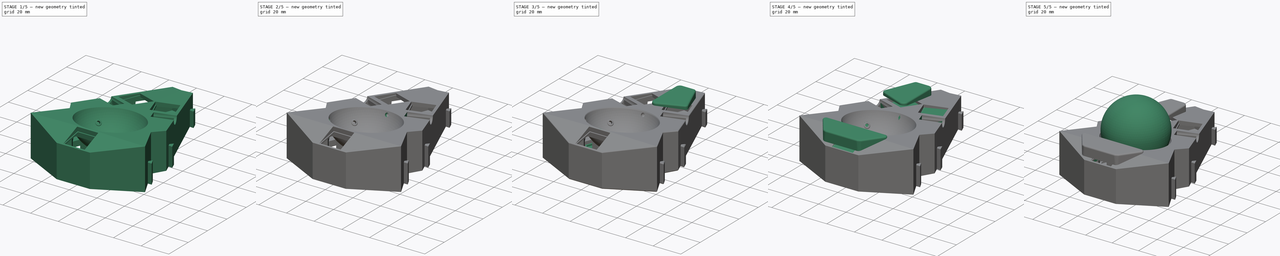
[diagram: build sequence overview — one tinted view per stage of 5, left to right]
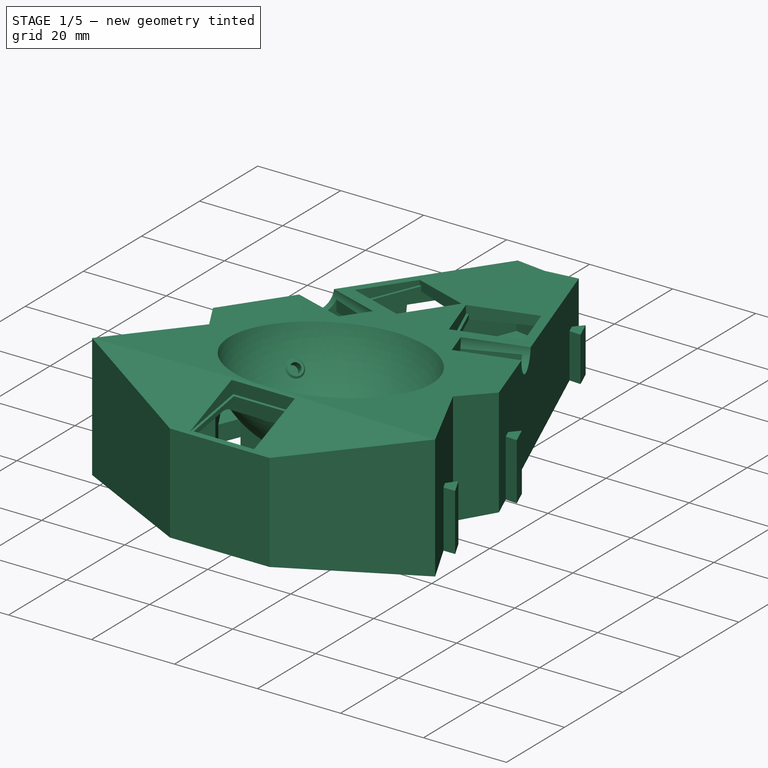
[diagram: stage 1 of 5 — iso view after this stage's code; geometry added in this stage tinted green]
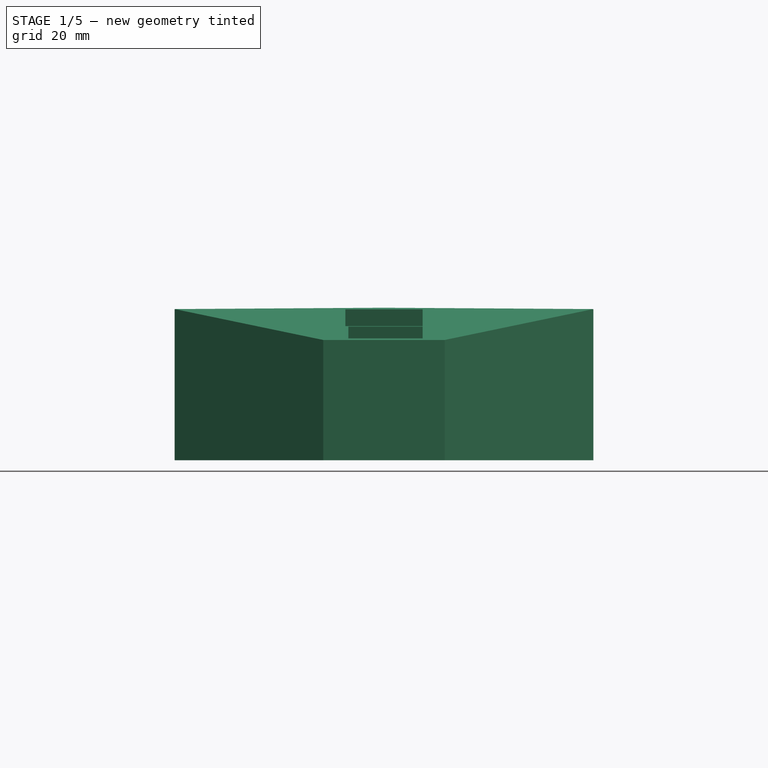
[diagram: stage 1 of 5 — front view after this stage's code; geometry added in this stage tinted green]
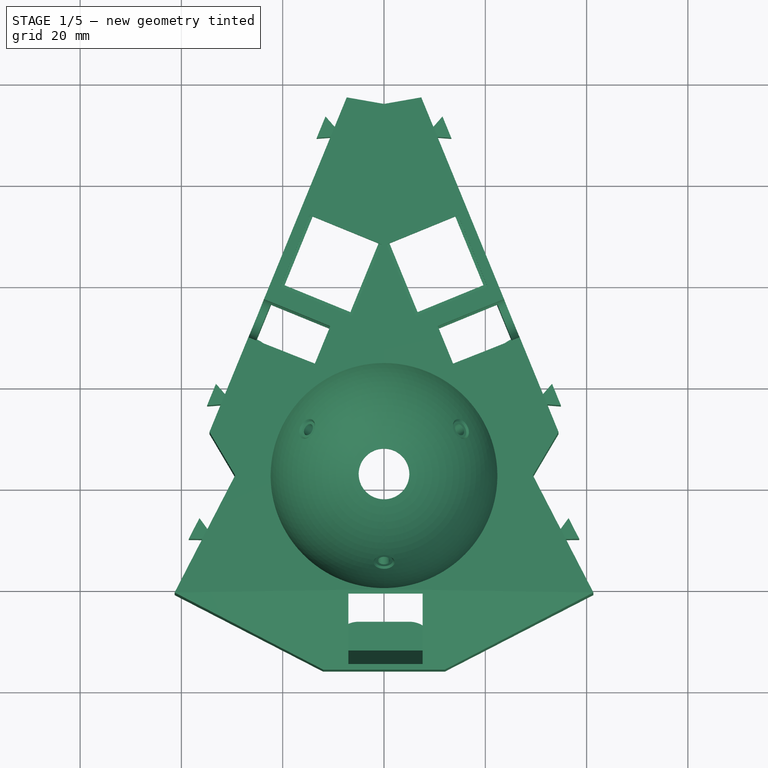
[diagram: stage 1 of 5 — top view after this stage's code; geometry added in this stage tinted green]
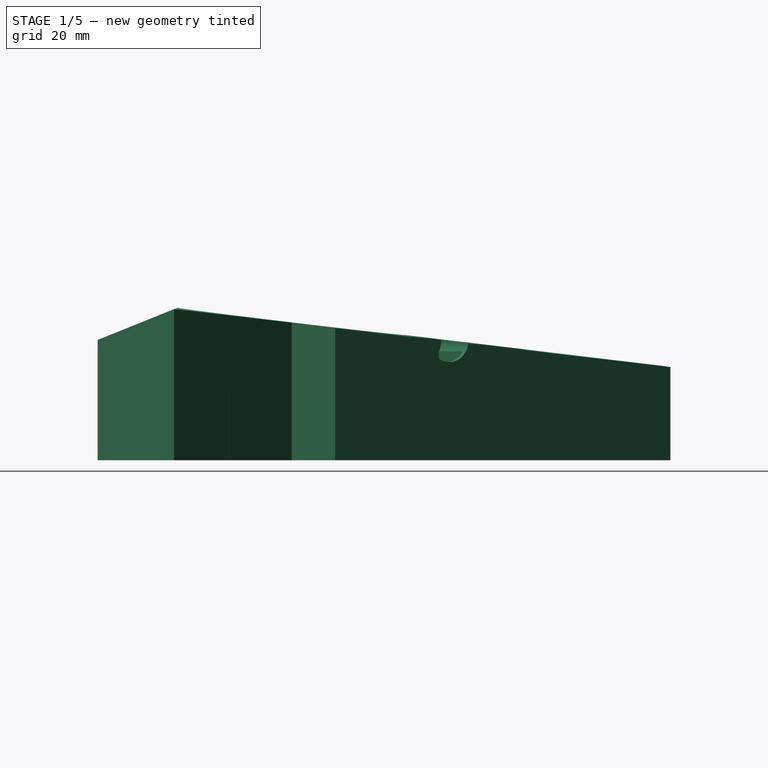
[diagram: stage 1 of 5 — right view after this stage's code; geometry added in this stage tinted green]
FCSTD DOCUMENT  (FreeCAD 1.0R39285 (Git))
Label: cinque-1.0-trackball
License: All rights reserved
LicenseURL: https://en.wikipedia.org/wiki/All_rights_reserved
objects: Sketcher::SketchObject×56, PartDesign::Pocket×30, PartDesign::Pad×15, PartDesign::Point×5, PartDesign::ShapeBinder×5, PartDesign::Fillet×5, PartDesign::Plane×4, PartDesign::Chamfer×4, PartDesign::Body×4, PartDesign::Line×3, PartDesign::Groove×3, PartDesign::AdditiveLoft×3, Part::FeaturePython×3, PartDesign::PolarPattern×2, Part::Sphere×1, Part::Feature×1, PartDesign::Mirrored×1, PartDesign::Revolution×1, PartDesign::SubShapeBinder×1, Part::Mirroring×1, +3 more types
note: 331 computed .brp shape members not serialized (recipe doc carries the construction recipe); baked Part::Feature solids carry a one-line shape summary decoded from their .brp

FEATURE [Sketcher::SketchObject] Sketch  label="Housing"
  ArcFitTolerance = 1e-06
  AttachmentSupport = -> [XY_Plane]
  ExternalGeometry = -> [Sketch021]
  FullyConstrained = true
  MakeInternals = false
  MapMode = 5
  sketch-geometry (21):
    g0: LineSegment StartX=0 StartY=15.926 StartZ=0 EndX=7.36069 EndY=17.2238 EndZ=0
    g1: LineSegment StartX=7.36069 StartY=17.2238 StartZ=0 EndX=9.70658 EndY=11.4927 EndZ=0
    g2: LineSegment StartX=9.70658 StartY=11.4927 StartZ=0 EndX=11.5467 EndY=13.5965 EndZ=0
    g3: LineSegment StartX=11.5467 StartY=13.5965 StartZ=0 EndX=13.2948 EndY=9.32587 EndZ=0
    g4: LineSegment StartX=13.2948 StartY=9.32587 StartZ=0 EndX=10.5076 EndY=9.53568 EndZ=0
    g5: LineSegment StartX=10.5076 StartY=9.53568 StartZ=0 EndX=31.3381 EndY=-41.3546 EndZ=0
    g6: LineSegment StartX=31.3381 StartY=-41.3546 StartZ=0 EndX=33.1783 EndY=-39.2508 EndZ=0
    g7: LineSegment StartX=33.1783 StartY=-39.2508 StartZ=0 EndX=34.9263 EndY=-43.5214 EndZ=0
    g8: LineSegment StartX=34.9263 StartY=-43.5214 StartZ=0 EndX=32.1391 EndY=-43.3116 EndZ=0
    g9: LineSegment StartX=32.1391 StartY=-43.3116 StartZ=0 EndX=34.4568 EndY=-48.9738 EndZ=0
    g10: LineSegment StartX=34.4568 StartY=-48.9738 StartZ=0 EndX=29.386 EndY=-57.5426 EndZ=0
    g11: LineSegment StartX=29.386 StartY=-57.5426 StartZ=0 EndX=34.7878 EndY=-68.0283 EndZ=0
    g12: LineSegment StartX=34.7878 StartY=-68.0283 StartZ=0 EndX=36.4378 EndY=-65.7722 EndZ=0
    g13: LineSegment StartX=36.4378 StartY=-65.7722 StartZ=0 EndX=38.5511 EndY=-69.8745 EndZ=0
    g14: LineSegment StartX=38.5511 StartY=-69.8745 StartZ=0 EndX=35.7562 EndY=-69.9082 EndZ=0
    g15: LineSegment StartX=35.7562 StartY=-69.9082 StartZ=0 EndX=41.34 EndY=-80.7472 EndZ=0
    g16: LineSegment StartX=41.34 StartY=-80.7472 StartZ=0 EndX=12 EndY=-95.8618 EndZ=0
    g17: LineSegment StartX=12 StartY=-95.8618 StartZ=0 EndX=0 EndY=-95.8618 EndZ=0
    g18: LineSegment StartX=0 StartY=-95.8618 StartZ=0 EndX=0 EndY=15.926 EndZ=0
    g19: LineSegment [constr] StartX=7.49951 StartY=17.2807 StartZ=0 EndX=6.57404 EndY=16.9019 EndZ=0
    g20: LineSegment [constr] StartX=41.4733 StartY=-80.6785 StartZ=0 EndX=40.5844 EndY=-81.1364 EndZ=0
  constraints (63):
    c: PointOnObject(g0,g-2)
    c: Coincident(g0,g1)
    c: Coincident(g1,g2)
    c: Coincident(g2,g3)
    c: Coincident(g3,g4)
    c: Coincident(g4,g5)
    c: Coincident(g5,g6)
    c: Coincident(g6,g7)
    c: Coincident(g7,g8)
    c: Coincident(g8,g9)
    c: Coincident(g9,g10)
    c: Coincident(g10,g11)
    c: Coincident(g11,g12)
    c: Coincident(g12,g13)
    c: Coincident(g13,g14)
    c: Coincident(g14,g15)
    c: Coincident(g15,g16)
    c: Coincident(g16,g17)
    c: PointOnObject(g17,g-2)
    c: Coincident(g17,g18)
    c: Coincident(g18,g0)
    c: Parallel(g-4,g1)
    c: Parallel(g2,g-5)
    c: Parallel(g-6,g3)
    c: Parallel(g4,g-7)
    c: Parallel(g-8,g5)
    c: Distance(g-4,g1) = 0.15
    c: Distance(g-5,g2) = 0.15
    c: Distance(g-6,g3) = 0.15
    c: Distance(g-7,g4) = 0.15
    c: Distance(g-8,g5) = 0.15
    c: Parallel(g-9,g6)
    c: Parallel(g7,g-10)
    c: Parallel(g8,g-11)
    c: Parallel(g9,g-12)
    c: Distance(g-9,g6) = 0.15
    c: Distance(g-10,g7) = 0.15
    c: Distance(g-11,g8) = 0.15
    c: Distance(g-12,g9) = 0.15
    c: Parallel(g10,g-13)
    c: Parallel(g11,g-14)
    c: Distance(g10,g-13) = 0.15
    c: Distance(g-14,g11) = 0.15
    c: Parallel(g12,g-15)
    c: Parallel(g13,g-16)
    c: Parallel(g14,g-17)
    c: Parallel(g15,g-18)
    c: Distance(g-15,g12) = 0.15
    c: Distance(g-17,g14) = 0.15
    c: Distance(g-16,g13) = 0.15
    c: Distance(g-18,g15) = 0.15
    c: Distance(g19) = 1
    c: Coincident(g19,g-4)
    c: Perpendicular(g-4,g19)
    c: PointOnObject(g0,g19)
    c: Angle(g-2,g0) = 1.74533
    c: Coincident(g20,g-19)
    c: Perpendicular(g20,g-18)
    c: PointOnObject(g15,g20)
    c: Horizontal(g17)
    c: DistanceX(g17,g17) = 12
    c: Perpendicular(g15,g16)
    c: Distance(g20,g20) = 1
FEATURE [PartDesign::Point] DatumPoint
  AttacherType = Attacher::AttachEnginePoint
  AttachmentOffset = pos=(0,0,32) rot=(0,0,1;0rad)
  AttachmentSupport = -> [Sketch]
  MapMode = 37
  Placement = pos=(0,-95.8618,32) rot=(0,0,1;0rad)
FEATURE [PartDesign::Point] DatumPoint001
  AttacherType = Attacher::AttachEnginePoint
  AttachmentOffset = pos=(0,0,29.85) rot=(0,0,1;0rad)
  AttachmentSupport = -> [Sketch]
  MapMode = 37
  Placement = pos=(41.34,-80.7472,29.85) rot=(0,0,1;0rad)
FEATURE [PartDesign::Point] DatumPoint002
  AttacherType = Attacher::AttachEnginePoint
  AttachmentOffset = pos=(0,0,18.4) rot=(0,0,1;0rad)
  AttachmentSupport = -> [Sketch]
  MapMode = 37
  Placement = pos=(7.36069,17.2238,18.4) rot=(0,0,1;0rad)
FEATURE [PartDesign::Plane] DatumPlane
  AttachmentSupport = -> [DatumPoint002,DatumPoint001,DatumPoint]
  Length = 69.6901
  MapMode = 13
  Placement = pos=(16.2336,-53.1284,26.75) rot=(0.999409,-0.034323,-0.002052;3.02223rad)
  ResizeMode = 0
  Width = 104.77
FEATURE [PartDesign::Pad] Pad
  Direction = (0,0,1)
  Length = 10
  Length2 = 10
  Profile = -> Sketch
  ReferenceAxis = -> Sketch [N_Axis]
  Refine = true
  Suppressed = false
  Type = 3
  UpToFace = -> DatumPlane [Plane]
FEATURE [Sketcher::SketchObject] Sketch022  label="Dovetails Tall"
  ArcFitTolerance = 1e-06
  AttachmentOffset = pos=(0,0,13.75) rot=(0,0,1;0rad)
  AttachmentSupport = -> [XY_Plane]
  ExternalGeometry = -> [Pad]
  FullyConstrained = true
  MakeInternals = false
  MapMode = 5
  Placement = pos=(0,0,13.75) rot=(0,0,1;0rad)
  sketch-geometry (8):
    g0: LineSegment StartX=31.3381 StartY=-41.3546 StartZ=0 EndX=33.1783 EndY=-39.2508 EndZ=0
    g1: LineSegment StartX=33.1783 StartY=-39.2508 StartZ=0 EndX=34.9263 EndY=-43.5214 EndZ=0
    g2: LineSegment StartX=34.9263 StartY=-43.5214 StartZ=0 EndX=32.1391 EndY=-43.3116 EndZ=0
    g3: LineSegment StartX=32.1391 StartY=-43.3116 StartZ=0 EndX=31.3381 EndY=-41.3546 EndZ=0
    g4: LineSegment StartX=34.7878 StartY=-68.0283 StartZ=0 EndX=36.4378 EndY=-65.7722 EndZ=0
    g5: LineSegment StartX=36.4378 StartY=-65.7722 StartZ=0 EndX=38.5511 EndY=-69.8745 EndZ=0
    g6: LineSegment StartX=38.5511 StartY=-69.8745 StartZ=0 EndX=35.7562 EndY=-69.9082 EndZ=0
    g7: LineSegment StartX=35.7562 StartY=-69.9082 StartZ=0 EndX=34.7878 EndY=-68.0283 EndZ=0
  constraints (16):
    c: Coincident(g-5,g0)
    c: Coincident(g0,g-5)
    c: Coincident(g0,g1)
    c: Coincident(g1,g-6)
    c: Coincident(g1,g2)
    c: Coincident(g2,g-6)
    c: Coincident(g2,g3)
    c: Coincident(g3,g0)
    c: Coincident(g-3,g4)
    c: Coincident(g4,g-3)
    c: Coincident(g4,g5)
    c: Coincident(g5,g-4)
    c: Coincident(g5,g6)
    c: Coincident(g6,g-4)
    c: Coincident(g6,g7)
    c: Coincident(g7,g4)
FEATURE [PartDesign::Pocket] Pocket
  BaseFeature = -> Pad
  Direction = (0,0,-1)
  Length = 5
  Length2 = 5
  Profile = -> Sketch022
  ReferenceAxis = -> Sketch022 [N_Axis]
  Refine = true
  Reversed = true
  Suppressed = false
  Type = 1
FEATURE [Sketcher::SketchObject] Sketch023  label="Dovetails Short"
  ArcFitTolerance = 1e-06
  AttachmentOffset = pos=(0,0,10.75) rot=(0,0,1;0rad)
  AttachmentSupport = -> [XY_Plane]
  ExternalGeometry = -> [Pocket]
  FullyConstrained = true
  MakeInternals = false
  MapMode = 5
  Placement = pos=(0,0,10.75) rot=(0,0,1;0rad)
  sketch-geometry (4):
    g0: LineSegment StartX=9.70658 StartY=11.4927 StartZ=0 EndX=11.5467 EndY=13.5965 EndZ=0
    g1: LineSegment StartX=11.5467 StartY=13.5965 StartZ=0 EndX=13.2948 EndY=9.32587 EndZ=0
    g2: LineSegment StartX=13.2948 StartY=9.32587 StartZ=0 EndX=10.5076 EndY=9.53568 EndZ=0
    g3: LineSegment StartX=10.5076 StartY=9.53568 StartZ=0 EndX=9.70658 EndY=11.4927 EndZ=0
  constraints (8):
    c: Coincident(g-3,g0)
    c: Coincident(g0,g-3)
    c: Coincident(g0,g1)
    c: Coincident(g1,g-4)
    c: Coincident(g1,g2)
    c: Coincident(g2,g-4)
    c: Coincident(g2,g3)
    c: Coincident(g3,g0)
FEATURE [PartDesign::Pocket] Pocket001
  BaseFeature = -> Pocket
  Direction = (0,0,-1)
  Length = 5
  Length2 = 5
  Profile = -> Sketch023
  ReferenceAxis = -> Sketch023 [N_Axis]
  Refine = true
  Reversed = true
  Suppressed = false
  Type = 1
FEATURE [Sketcher::SketchObject] Sketch024  label="TRRS Socket"
  ArcFitTolerance = 1e-06
  AttachmentSupport = -> [Pocket001]
  ExternalGeometry = -> [Pocket001]
  FullyConstrained = true
  MakeInternals = false
  MapMode = 5
  Placement = pos=(12.3428,5.05217,1.72e-14) rot=(0.428774,0.638809,0.638809;2.33147rad)
  sketch-geometry (1):
    g0: Circle CenterX=-34.0481 CenterY=23.49 CenterZ=0 NormalX=0 NormalY=0 NormalZ=1 AngleXU=0 Radius=4.1
  constraints (3):
    c: Diameter(g0) = 8.2
    c: DistanceX(g0,g-3) = 47.2
    c: Distance(g0,g-4) = 23.49
FEATURE [PartDesign::Pocket] Pocket002
  BaseFeature = -> Pocket001
  Direction = (-0.925472,-0.378815,-1.3e-15)
  Length = 1.6
  Length2 = 5
  Profile = -> Sketch024
  ReferenceAxis = -> Sketch024 [N_Axis]
  Refine = true
  Suppressed = false
  Type = 0
FEATURE [Sketcher::SketchObject] Sketch026  label="Front Bevel"
  ArcFitTolerance = 1e-06
  AttachmentSupport = -> [Pocket002]
  ExternalGeometry = -> [Pocket002]
  FullyConstrained = true
  MakeInternals = false
  MapMode = 5
  Placement = pos=(0,0,0) rot=(0.57735,-0.57735,-0.57735;2.0944rad)
  sketch-geometry (3):
    g0: LineSegment StartX=80.0966 StartY=30.1125 StartZ=0 EndX=95.8618 EndY=23.7518 EndZ=0
    g1: LineSegment StartX=95.8618 StartY=23.7518 StartZ=0 EndX=95.8618 EndY=32 EndZ=0
    g2: LineSegment StartX=95.8618 StartY=32 StartZ=0 EndX=80.0966 EndY=30.1125 EndZ=0
  constraints (8):
    c: PointOnObject(g0,g-5)
    c: PointOnObject(g0,g-6)
    c: Coincident(g0,g1)
    c: Coincident(g1,g-6)
    c: Coincident(g1,g2)
    c: Coincident(g2,g0)
    c: Distance(g0,g0) = 17
    c: PointOnObject(g-4,g0)
FEATURE [PartDesign::Pocket] Pocket003
  BaseFeature = -> Pocket002
  Direction = (1,0,0)
  Length = 5
  Length2 = 5
  Profile = -> Sketch026
  ReferenceAxis = -> Sketch026 [N_Axis]
  Refine = true
  Suppressed = false
  Type = 1
FEATURE [Part::Feature] Body004  label="PMW3391"
  Placement = pos=(0,-58.5,0) rot=(0,0,1;0rad)
  shape: bbox 21 x 28 x 8.5 mm, 34 faces (baked)
FEATURE [PartDesign::Mirrored] Mirrored
  BaseFeature = -> Pocket003
  MirrorPlane = -> YZ_Plane
  Originals = -> [Pocket003]
  Refine = true
  Suppressed = false
  TransformMode = 1
FEATURE [Sketcher::SketchObject] Sketch027  label="Ball Well Cutout"
  ArcFitTolerance = 1e-06
  AttachmentSupport = -> [YZ_Plane]
  ExternalGeometry = -> [Mirrored]
  FullyConstrained = true
  MakeInternals = false
  MapMode = 5
  Placement = pos=(0,0,0) rot=(0.57735,0.57735,0.57735;2.0944rad)
  sketch-geometry (14):
    g0: LineSegment StartX=-57 StartY=30.5 StartZ=0 EndX=-57 EndY=8.5 EndZ=0
    g1: LineSegment StartX=-62 StartY=8.5 StartZ=0 EndX=-62 EndY=10.0501 EndZ=0
    g2: LineSegment StartX=-57 StartY=30.5 StartZ=0 EndX=-79.9129 EndY=30.5 EndZ=0
    g3: ArcOfCircle CenterX=-57 CenterY=32.5 CenterZ=0 NormalX=0 NormalY=0 NormalZ=1 AngleXU=0 Radius=23 StartAngle=3.22866 EndAngle=4.49325
    g4: ArcOfCircle CenterX=-57 CenterY=32.5 CenterZ=0 NormalX=0 NormalY=0 NormalZ=1 AngleXU=0 Radius=25 StartAngle=3.54688 EndAngle=4.42859
    g5: LineSegment StartX=-79.9747 StartY=22.6429 StartZ=0 EndX=-82 EndY=22.6429 EndZ=0
    g6: LineSegment StartX=-82 StartY=22.6429 StartZ=0 EndX=-82 EndY=0 EndZ=0
    g7: LineSegment StartX=-64 StartY=8.5 StartZ=0 EndX=-62 EndY=8.5 EndZ=0
    g8: LineSegment StartX=-57 StartY=8.5 StartZ=0 EndX=-57 EndY=0 EndZ=0
    g9: LineSegment StartX=-57 StartY=0 StartZ=0 EndX=-82 EndY=0 EndZ=0
    g10: ArcOfCircle [constr] CenterX=-57 CenterY=32.5 CenterZ=0 NormalX=0 NormalY=0 NormalZ=1 AngleXU=0 Radius=23 StartAngle=4.49325 EndAngle=5.9397
    g11: ArcOfCircle [constr] CenterX=-57 CenterY=32.5 CenterZ=0 NormalX=0 NormalY=0 NormalZ=1 AngleXU=0 Radius=25 StartAngle=4.42859 EndAngle=5.95792
    g12: GeomPoint [constr] X=-34.0253 Y=22.6429 Z=0
    g13: LineSegment [constr] StartX=-34.0253 StartY=22.6429 StartZ=0 EndX=-98.6102 EndY=22.6429 EndZ=0
  constraints (42):
    c: Vertical(g0)
    c: Coincident(g0,g2)
    c: Horizontal(g2)
    c: Coincident(g3,g1)
    c: Radius(g3) = 23
    c: DistanceY(g-1,g0) = 8.5
    c: PointOnObject(g3,g0)
    c: Vertical(g1)
    c: DistanceY(g0,g3) = 24
    c: Radius(g4) = 25
    c: Coincident(g4,g3)
    c: Coincident(g5,g4)
    c: Coincident(g6,g5)
    c: Vertical(g6)
    c: Distance(g1,g0) = 5
    c: Coincident(g7,g4)
    c: Coincident(g7,g1)
    c: Horizontal(g7)
    c: Distance(g1,g-1) = 8.5
    c: PointOnObject(g6,g-1)
    c: Coincident(g8,g0)
    c: PointOnObject(g8,g-1)
    c: Vertical(g8)
    c: Coincident(g9,g8)
    c: Coincident(g9,g6)
    c: Coincident(g10,g1)
    c: Coincident(g3,g10)
    c: PointOnObject(g10,g-3)
    c: Coincident(g11,g3)
    c: Coincident(g4,g11)
    c: PointOnObject(g11,g-3)
    c: PointOnObject(g12,g11)
    c: Distance(g12,g11) = 2
    c: Coincident(g13,g12)
    c: PointOnObject(g13,g-4)
    c: Horizontal(g13)
    c: PointOnObject(g4,g13)
    c: PointOnObject(g5,g13)
    c: Distance(g6,g0) = 25
    c: DistanceX(g0,g-1) = 57
    c: Coincident(g2,g3)
    c: DistanceY(g0,g3) = 2
FEATURE [PartDesign::Line] DatumLine
  AttacherType = Attacher::AttachEngineLine
  AttachmentSupport = -> [Sketch027]
  Length = 20
  MapMode = 29
  Placement = pos=(0,-57,0) rot=(0,1,0;3.14159rad)
  ResizeMode = 0
FEATURE [PartDesign::Groove] Groove
  Angle = 360
  Angle2 = 60
  Axis = (0,0,-1)
  Base = (0,-57,0)
  BaseFeature = -> Mirrored
  Profile = -> Sketch027
  ReferenceAxis = -> DatumLine
  Refine = true
  Suppressed = false
  Type = 1
FEATURE [Sketcher::SketchObject] Sketch028  label="Front Switch Cutout"
  ArcFitTolerance = 1e-06
  AttachmentSupport = -> [YZ_Plane]
  ExternalGeometry = -> [Groove]
  FullyConstrained = true
  MakeInternals = false
  MapMode = 5
  Placement = pos=(0,0,0) rot=(0.57735,0.57735,0.57735;2.0944rad)
  sketch-geometry (3):
    g0: LineSegment StartX=-95.3625 StartY=23.9533 StartZ=0 EndX=-80.883 EndY=29.7952 EndZ=0
    g1: LineSegment StartX=-80.883 StartY=29.7952 StartZ=0 EndX=-80.3253 EndY=26.4919 EndZ=0
    g2: LineSegment StartX=-80.3253 StartY=26.4919 StartZ=0 EndX=-95.3625 EndY=23.9533 EndZ=0
  constraints (9):
    c: Coincident(g0,g1)
    c: Coincident(g1,g2)
    c: Distance(g2,g2) = 15.25
    c: Distance(g1,g1) = 3.35
    c: Perpendicular(g1,g2)
    c: Coincident(g0,g2)
    c: PointOnObject(g0,g-3)
    c: Distance(g-4,g1) = 1
    c: PointOnObject(g0,g-3)
FEATURE [PartDesign::Pocket] Pocket004
  BaseFeature = -> Groove
  Direction = (-1,0,0)
  Length = 15.25
  Length2 = 5
  Midplane = true
  Profile = -> Sketch028
  ReferenceAxis = -> Sketch028 [N_Axis]
  Refine = true
  Suppressed = false
  Type = 0
FEATURE [Sketcher::SketchObject] Sketch050  label="RGB FrontCenter Reverse Cutout"
  ArcFitTolerance = 1e-06
  AttachmentSupport = -> [DatumPlane001]
  FullyConstrained = true
  MakeInternals = false
  MapMode = 5
  Placement = pos=(0,-75.3,10.7568) rot=(1,0,0;1.945rad)
  sketch-geometry (4):
    g0: LineSegment StartX=-2 StartY=-0.5 StartZ=0 EndX=2 EndY=-0.5 EndZ=0
    g1: LineSegment StartX=2 StartY=-0.5 StartZ=0 EndX=2 EndY=4.5 EndZ=0
    g2: LineSegment StartX=2 StartY=4.5 StartZ=0 EndX=-2 EndY=4.5 EndZ=0
    g3: LineSegment StartX=-2 StartY=4.5 StartZ=0 EndX=-2 EndY=-0.5 EndZ=0
  constraints (11):
    c: Coincident(g0,g1)
    c: Coincident(g1,g2)
    c: Coincident(g2,g3)
    c: Coincident(g3,g0)
    c: Horizontal(g0)
    c: Vertical(g1)
    c: Vertical(g3)
    c: Distance(g1,g3) = 4
    c: Distance(g0,g2) = 5
    c: Symmetric(g1,g2,g-2)
    c: Distance(g-1,g0) = 0.5
FEATURE [Sketcher::SketchObject] Sketch051  label="RGB FrontCenter Connector Cutout"
  ArcFitTolerance = 1e-06
  AttachmentSupport = -> [DatumPlane001]
  FullyConstrained = true
  MakeInternals = false
  MapMode = 5
  Placement = pos=(0,-75.3,10.7568) rot=(1,0,0;1.945rad)
  sketch-geometry (4):
    g0: LineSegment StartX=13 StartY=5 StartZ=0 EndX=7.5 EndY=5 EndZ=0
    g1: LineSegment StartX=7.5 StartY=5 StartZ=0 EndX=7.5 EndY=-1 EndZ=0
    g2: LineSegment StartX=7.5 StartY=-1 StartZ=0 EndX=13 EndY=-1 EndZ=0
    g3: LineSegment StartX=13 StartY=-1 StartZ=0 EndX=13 EndY=5 EndZ=0
  constraints (12):
    c: Coincident(g0,g1)
    c: Coincident(g1,g2)
    c: Coincident(g2,g3)
    c: Coincident(g3,g0)
    c: Horizontal(g0)
    c: Horizontal(g2)
    c: Vertical(g1)
    c: Vertical(g3)
    c: Distance(g1,g3) = 5.5
    c: Distance(g0,g2) = 6
    c: Distance(g3,g-2) = 13
    c: DistanceY(g1,g-1) = 1
FEATURE [PartDesign::Plane] DatumPlane002
  AttachmentOffset = pos=(0,0,0) rot=(0,1,0;1.0472rad)
  AttachmentSupport = -> [DatumLine]
  Length = 97.286
  MapMode = 4
  Placement = pos=(0,-57,0) rot=(0.935113,0.250563,-0.250563;4.64535rad)
  ResizeMode = 0
  Width = 62.9847
FEATURE [Sketcher::SketchObject] Sketch054  label="3mm Stabilizer"
  ArcFitTolerance = 1e-06
  AttachmentSupport = -> [DatumPlane002]
  ExternalGeometry = -> [DatumLine]
  FullyConstrained = true
  MakeInternals = false
  MapMode = 5
  Placement = pos=(0,-57,0) rot=(-0.935113,-0.250563,0.250563;1.63783rad)
  sketch-geometry (4):
    g0: ArcOfCircle CenterX=-22.83 CenterY=-25.9536 CenterZ=0 NormalX=0 NormalY=0 NormalZ=1 AngleXU=0 Radius=1.5 StartAngle=2.86234 EndAngle=6.00393
    g1: GeomPoint X=8.9e-15 Y=-32.5 Z=0
    g2: LineSegment [constr] StartX=8.9e-15 StartY=-32.5 StartZ=0 EndX=-28.8379 EndY=-24.2309 EndZ=0
    g3: LineSegment StartX=-24.2719 StartY=-25.5402 StartZ=0 EndX=-21.3881 EndY=-26.3671 EndZ=0
  constraints (13):
    c: Diameter(g0) = 3
    c: Coincident(g2,g1)
    c: Distance(g2,g2) = 30
    c: PointOnObject(g1,g-3)
    c: DistanceY(g1,g-1) = 32.5
    c: Angle(g-3,g2) = 1.29154
    c: PointOnObject(g0,g2)
    c: Distance(g1,g0) = 23.75
    c: PointOnObject(g3,g2)
    c: PointOnObject(g3,g2)
    c: PointOnObject(g3,g0)
    c: PointOnObject(g0,g2)
    c: Coincident(g0,g3)
FEATURE [Sketcher::SketchObject] Sketch055  label="Front Deeper Cutout"
  ArcFitTolerance = 1e-06
  AttachmentSupport = -> [Pocket019]
  ExternalGeometry = -> [Sketch030]
  FullyConstrained = true
  MakeInternals = false
  MapMode = 5
  Placement = pos=(0,0,17) rot=(1,0,0;3.14159rad)
  sketch-geometry (10):
    g0: ArcOfCircle CenterX=0 CenterY=57 CenterZ=0 NormalX=0 NormalY=0 NormalZ=1 AngleXU=0 Radius=24.3 StartAngle=0.061687 EndAngle=3.07991
    g1: LineSegment StartX=27.9515 StartY=83.1447 StartZ=0 EndX=24.2878 EndY=76.0329 EndZ=0
    g2: LineSegment StartX=24.2878 StartY=76.0329 StartZ=0 EndX=31.3996 EndY=72.3693 EndZ=0
    g3: LineSegment StartX=24.2538 StartY=58.498 StartZ=0 EndX=31.3996 EndY=72.3693 EndZ=0
    g4: LineSegment StartX=27.9515 StartY=83.1447 StartZ=0 EndX=12.9714 EndY=90.8618 EndZ=0
    g5: LineSegment StartX=12.9714 StartY=90.8618 StartZ=0 EndX=-12.9714 EndY=90.8618 EndZ=0
    g6: LineSegment StartX=-27.9515 StartY=83.1447 StartZ=0 EndX=-24.2878 EndY=76.0329 EndZ=0
    g7: LineSegment StartX=-31.3996 StartY=72.3693 StartZ=0 EndX=-24.2878 EndY=76.0329 EndZ=0
    g8: LineSegment StartX=-27.9515 StartY=83.1447 StartZ=0 EndX=-12.9714 EndY=90.8618 EndZ=0
    g9: LineSegment StartX=-31.3996 StartY=72.3693 StartZ=0 EndX=-24.2538 EndY=58.498 EndZ=0
  constraints (28):
    c: Distance(g1) = 8
    c: Coincident(g2,g1)
    c: Distance(g2,g2) = 8
    c: Coincident(g3,g0)
    c: Coincident(g3,g2)
    c: Coincident(g4,g1)
    c: Coincident(g5,g4)
    c: Distance(g6) = 8
    c: Coincident(g7,g6)
    c: Distance(g7,g7) = 8
    c: Perpendicular(g7,g6)
    c: Coincident(g8,g6)
    c: Coincident(g8,g5)
    c: Coincident(g9,g7)
    c: Coincident(g9,g0)
    c: Perpendicular(g2,g1)
    c: Perpendicular(g3,g2)
    c: Perpendicular(g7,g9)
    c: Coincident(g0,g-7)
    c: Parallel(g7,g-3)
    c: PointOnObject(g6,g-3)
    c: PointOnObject(g7,g-4)
    c: PointOnObject(g2,g-6)
    c: PointOnObject(g1,g-5)
    c: Parallel(g-5,g2)
    c: Coincident(g5,g-3)
    c: Coincident(g4,g-5)
    c: Radius(g0) = 24.3
FEATURE [PartDesign::Pocket] Pocket022
  Direction = (0,0,1)
  Length = 5.65
  Length2 = 5
  Profile = -> Sketch055
  ReferenceAxis = -> Sketch055 [N_Axis]
  Refine = true
  Suppressed = false
  Type = 0
FEATURE [Sketcher::SketchObject] Sketch061  label="Pad Front Side RGB"
  ArcFitTolerance = 1e-06
  AttachmentSupport = -> [Pocket022]
  ExternalGeometry = -> [Pocket022]
  FullyConstrained = true
  MakeInternals = false
  MapMode = 5
  Placement = pos=(0,0,17) rot=(1,0,0;3.14159rad)
  sketch-geometry (8):
    g0: LineSegment StartX=24.2878 StartY=76.0329 StartZ=0 EndX=27.9515 EndY=83.1447 EndZ=0
    g1: LineSegment StartX=27.9515 StartY=83.1447 StartZ=0 EndX=35.0633 EndY=79.4811 EndZ=0
    g2: LineSegment StartX=35.0633 StartY=79.4811 StartZ=0 EndX=31.3996 EndY=72.3693 EndZ=0
    g3: LineSegment StartX=31.3996 StartY=72.3693 StartZ=0 EndX=24.2878 EndY=76.0329 EndZ=0
    g4: LineSegment StartX=-35.0633 StartY=79.4811 StartZ=0 EndX=-27.9515 EndY=83.1447 EndZ=0
    g5: LineSegment StartX=-27.9515 StartY=83.1447 StartZ=0 EndX=-24.2878 EndY=76.0329 EndZ=0
    g6: LineSegment StartX=-24.2878 StartY=76.0329 StartZ=0 EndX=-31.3996 EndY=72.3693 EndZ=0
    g7: LineSegment StartX=-31.3996 StartY=72.3693 StartZ=0 EndX=-35.0633 EndY=79.4811 EndZ=0
  constraints (16):
    c: Coincident(g0,g1)
    c: Coincident(g1,g2)
    c: Coincident(g2,g3)
    c: Coincident(g3,g0)
    c: Coincident(g4,g5)
    c: Coincident(g5,g6)
    c: Coincident(g6,g7)
    c: Coincident(g7,g4)
    c: Coincident(g1,g-5)
    c: Coincident(g0,g-5)
    c: Coincident(g2,g-6)
    c: Coincident(g-6,g0)
    c: Coincident(g4,g-3)
    c: Coincident(g4,g-3)
    c: Coincident(g5,g-4)
    c: Coincident(g6,g-4)
FEATURE [PartDesign::Pad] Pad005
  BaseFeature = -> Pocket022
  Direction = (0,0,-1)
  Length = 3
  Length2 = 10
  Profile = -> Sketch061
  ReferenceAxis = -> Sketch061 [N_Axis]
  Refine = true
  Suppressed = false
  Type = 0
FEATURE [Sketcher::SketchObject] Sketch062  label="RGB Front Right Cut"
  ArcFitTolerance = 1e-06
  AttachmentSupport = -> [Pad005]
  ExternalGeometry = -> [Pad005]
  FullyConstrained = true
  MakeInternals = false
  MapMode = 5
  Placement = pos=(-11.76,-6.05823,-2.4e-15) rot=(0.757323,-0.461769,-0.461769;1.84525rad)
  sketch-geometry (4):
    g0: LineSegment StartX=86.7141 StartY=19.65 StartZ=0 EndX=76.4641 EndY=19.65 EndZ=0
    g1: LineSegment StartX=76.4641 StartY=19.65 StartZ=0 EndX=76.4641 EndY=15.65 EndZ=0
    g2: LineSegment StartX=76.4641 StartY=15.65 StartZ=0 EndX=86.7141 EndY=15.65 EndZ=0
    g3: LineSegment StartX=86.7141 StartY=15.65 StartZ=0 EndX=86.7141 EndY=19.65 EndZ=0
  constraints (12):
    c: Coincident(g0,g1)
    c: Coincident(g1,g2)
    c: Coincident(g2,g3)
    c: Coincident(g3,g0)
    c: Horizontal(g0)
    c: Horizontal(g2)
    c: Vertical(g1)
    c: Vertical(g3)
    c: Distance(g1,g3) = 10.25
    c: Distance(g0,g2) = 4
    c: PointOnObject(g0,g-3)
    c: DistanceY(g0,g-3) = 3
FEATURE [PartDesign::Pocket] Pocket023
  BaseFeature = -> Pad005
  Direction = (0.888973,0.457959,0)
  Length = 4
  Length2 = 5
  Profile = -> Sketch062
  ReferenceAxis = -> Sketch062 [N_Axis]
  Refine = true
  Suppressed = false
  Type = 0
FEATURE [Sketcher::SketchObject] Sketch063  label="RGB Front Left Cut"
  ArcFitTolerance = 1e-06
  AttachmentSupport = -> [Pocket023]
  ExternalGeometry = -> [Pocket023]
  FullyConstrained = true
  MakeInternals = false
  MapMode = 5
  Placement = pos=(11.76,-6.05823,0) rot=(0.757323,0.461769,0.461769;1.84525rad)
  sketch-geometry (4):
    g0: LineSegment StartX=-86.7141 StartY=19.65 StartZ=0 EndX=-86.7141 EndY=15.65 EndZ=0
    g1: LineSegment StartX=-86.7141 StartY=15.65 StartZ=0 EndX=-76.4641 EndY=15.65 EndZ=0
    g2: LineSegment StartX=-76.4641 StartY=15.65 StartZ=0 EndX=-76.4641 EndY=19.65 EndZ=0
    g3: LineSegment StartX=-76.4641 StartY=19.65 StartZ=0 EndX=-86.7141 EndY=19.65 EndZ=0
  constraints (12):
    c: Coincident(g0,g1)
    c: Coincident(g1,g2)
    c: Coincident(g2,g3)
    c: Coincident(g3,g0)
    c: Vertical(g0)
    c: Vertical(g2)
    c: Horizontal(g1)
    c: Horizontal(g3)
    c: Distance(g0,g2) = 10.25
    c: Distance(g1,g3) = 4
    c: PointOnObject(g0,g-3)
    c: DistanceY(g0,g-3) = 3
FEATURE [PartDesign::Pocket] Pocket024
  BaseFeature = -> Pocket023
  Direction = (-0.888973,0.457959,2e-16)
  Length = 4
  Length2 = 5
  Profile = -> Sketch063
  ReferenceAxis = -> Sketch063 [N_Axis]
  Refine = true
  Suppressed = false
  Type = 0
FEATURE [Sketcher::SketchObject] Sketch064  label="RBG Front Side Mount"
  ArcFitTolerance = 1e-06
  AttachmentSupport = -> [Pocket024]
  ExternalGeometry = -> [Pocket024]
  FullyConstrained = true
  MakeInternals = false
  MapMode = 5
  Placement = pos=(2.9e-15,-1.6e-15,19.65) rot=(1,0,0;3.14159rad)
  sketch-geometry (14):
    g0: Circle CenterX=-23.8838 CenterY=79.6158 CenterZ=0 NormalX=0 NormalY=0 NormalZ=1 AngleXU=0 Radius=0.75
    g1: Circle CenterX=23.8838 CenterY=79.6158 CenterZ=0 NormalX=0 NormalY=0 NormalZ=1 AngleXU=0 Radius=0.75
    g2: LineSegment StartX=24.2878 StartY=76.0329 StartZ=0 EndX=20.7319 EndY=77.8648 EndZ=0
    g3: LineSegment StartX=20.7319 StartY=77.8648 StartZ=0 EndX=23.9376 EndY=84.0876 EndZ=0
    g4: LineSegment StartX=18.1728 StartY=88.1823 StartZ=0 EndX=27.9515 EndY=83.1447 EndZ=0
    g5: LineSegment StartX=27.9515 StartY=83.1447 StartZ=0 EndX=24.2878 EndY=76.0329 EndZ=0
    g6: LineSegment StartX=-27.9515 StartY=83.1447 StartZ=0 EndX=-18.1728 EndY=88.1823 EndZ=0
    g7: LineSegment StartX=-23.8805 StartY=83.9766 StartZ=0 EndX=-20.7319 EndY=77.8648 EndZ=0
    g8: LineSegment StartX=-20.7319 StartY=77.8648 StartZ=0 EndX=-24.2878 EndY=76.0329 EndZ=0
    g9: LineSegment StartX=-24.2878 StartY=76.0329 StartZ=0 EndX=-27.9515 EndY=83.1447 EndZ=0
    g10: LineSegment StartX=-18.1728 StartY=88.1823 StartZ=0 EndX=-17.6576 EndY=87.1823 EndZ=0
    g11: LineSegment StartX=-17.6576 StartY=87.1823 StartZ=0 EndX=-23.8805 EndY=83.9766 EndZ=0
    g12: LineSegment StartX=18.1728 StartY=88.1823 StartZ=0 EndX=17.7148 EndY=87.2933 EndZ=0
    g13: LineSegment StartX=17.7148 StartY=87.2933 StartZ=0 EndX=23.9376 EndY=84.0876 EndZ=0
  constraints (38):
    c: Diameter(g0) = 1.5
    c: Diameter(g1) = 1.5
    c: Coincident(g-4,g2)
    c: Coincident(g2,g3)
    c: Coincident(g4,g-6)
    c: Coincident(g4,g5)
    c: Coincident(g5,g2)
    c: Distance(g4,g4) = 11
    c: Perpendicular(g2,g3)
    c: Distance(g1,g5) = 2
    c: Distance(g1,g4) = 5
    c: Parallel(g3,g5)
    c: Coincident(g-5,g6)
    c: Coincident(g7,g8)
    c: Coincident(g8,g-3)
    c: Coincident(g8,g9)
    c: Coincident(g9,g6)
    c: Perpendicular(g8,g7)
    c: Parallel(g9,g7)
    c: Distance(g0,g9) = 2
    c: Distance(g0,g6) = 5
    c: PointOnObject(g10,g-5)
    c: Coincident(g10,g11)
    c: Distance(g11,g11) = 7
    c: DistanceY(g10,g10) = 1
    c: Perpendicular(g10,g11)
    c: Coincident(g6,g10)
    c: Distance(g6,g6) = 11
    c: Parallel(g11,g6)
    c: Coincident(g7,g11)
    c: PointOnObject(g4,g-6)
    c: Coincident(g4,g12)
    c: Coincident(g12,g13)
    c: Coincident(g13,g3)
    c: Distance(g12,g12) = 1
    c: Distance(g13,g13) = 7
    c: Parallel(g13,g4)
    c: Perpendicular(g13,g12)
FEATURE [PartDesign::Pad] Pad006
  BaseFeature = -> Pocket024
  Direction = (0,0,-1)
  Length = 4
  Length2 = 10
  Profile = -> Sketch064
  ReferenceAxis = -> Sketch064 [N_Axis]
  Refine = true
  Reversed = true
  Suppressed = false
  Type = 0
FEATURE [Sketcher::SketchObject] Sketch056
  ArcFitTolerance = 1e-06
  AttachmentSupport = -> [XY_Plane]
  ExternalGeometry = -> [Pad006]
  FullyConstrained = true
  MakeInternals = false
  MapMode = 5
  sketch-geometry (8):
    g0: LineSegment StartX=-35.0633 StartY=-79.4811 StartZ=0 EndX=-30.2547 EndY=-70.1468 EndZ=0
    g1: LineSegment StartX=-30.2547 StartY=-70.1468 StartZ=0 EndX=-24.2878 EndY=-76.0329 EndZ=0
    g2: LineSegment StartX=-24.2878 StartY=-76.0329 StartZ=0 EndX=-12.9714 EndY=-90.8618 EndZ=0
    g3: LineSegment StartX=-12.9714 StartY=-90.8618 StartZ=0 EndX=-35.0633 EndY=-79.4811 EndZ=0
    g4: LineSegment StartX=12.9714 StartY=-90.8618 StartZ=0 EndX=35.0633 EndY=-79.4811 EndZ=0
    g5: LineSegment StartX=35.0633 StartY=-79.4811 StartZ=0 EndX=30.2547 EndY=-70.1468 EndZ=0
    g6: LineSegment StartX=30.2547 StartY=-70.1468 StartZ=0 EndX=24.2878 EndY=-76.0329 EndZ=0
    g7: LineSegment StartX=24.2878 StartY=-76.0329 StartZ=0 EndX=12.9714 EndY=-90.8618 EndZ=0
  constraints (18):
    c: Coincident(g0,g1)
    c: Coincident(g1,g2)
    c: Coincident(g2,g3)
    c: Coincident(g3,g0)
    c: Coincident(g4,g5)
    c: Coincident(g6,g7)
    c: Coincident(g7,g4)
    c: Distance(g5,g5) = 10.5
    c: Distance(g0,g0) = 10.5
    c: Coincident(g0,g-7)
    c: Coincident(g2,g-3)
    c: PointOnObject(g0,g-7)
    c: Coincident(g1,g-5)
    c: Coincident(g4,g-4)
    c: Coincident(g4,g-8)
    c: Coincident(g6,g5)
    c: Coincident(g6,g-6)
    c: PointOnObject(g5,g-8)
FEATURE [Sketcher::SketchObject] Sketch065
  ArcFitTolerance = 1e-06
  AttachmentSupport = -> [Pad006]
  ExternalGeometry = -> [Pad006]
  FullyConstrained = true
  MakeInternals = false
  MapMode = 5
  Placement = pos=(0,0,14) rot=(1,0,0;3.14159rad)
  sketch-geometry (8):
    g0: LineSegment StartX=-35.0633 StartY=79.4811 StartZ=0 EndX=-27.9515 EndY=83.1447 EndZ=0
    g1: LineSegment StartX=-27.9515 StartY=83.1447 StartZ=0 EndX=-24.2878 EndY=76.0329 EndZ=0
    g2: LineSegment StartX=-24.2878 StartY=76.0329 StartZ=0 EndX=-31.3996 EndY=72.3693 EndZ=0
    g3: LineSegment StartX=-31.3996 StartY=72.3693 StartZ=0 EndX=-35.0633 EndY=79.4811 EndZ=0
    g4: LineSegment StartX=27.9515 StartY=83.1447 StartZ=0 EndX=35.0633 EndY=79.4811 EndZ=0
    g5: LineSegment StartX=35.0633 StartY=79.4811 StartZ=0 EndX=31.3996 EndY=72.3693 EndZ=0
    g6: LineSegment StartX=31.3996 StartY=72.3693 StartZ=0 EndX=24.2878 EndY=76.0329 EndZ=0
    g7: LineSegment StartX=24.2878 StartY=76.0329 StartZ=0 EndX=27.9515 EndY=83.1447 EndZ=0
  constraints (16):
    c: Coincident(g-3,g0)
    c: Coincident(g0,g-3)
    c: Coincident(g0,g1)
    c: Coincident(g1,g-4)
    c: Coincident(g1,g2)
    c: Coincident(g2,g-4)
    c: Coincident(g2,g3)
    c: Coincident(g3,g0)
    c: Coincident(g-5,g4)
    c: Coincident(g4,g-5)
    c: Coincident(g4,g5)
    c: Coincident(g5,g-6)
    c: Coincident(g5,g6)
    c: Coincident(g6,g-6)
    c: Coincident(g6,g7)
    c: Coincident(g7,g4)
FEATURE [PartDesign::AdditiveLoft] AdditiveLoft
  BaseFeature = -> Pad006
  Closed = false
  Profile = -> Sketch065
  Refine = true
  Ruled = false
  Sections = -> [Sketch056]
  Suppressed = false
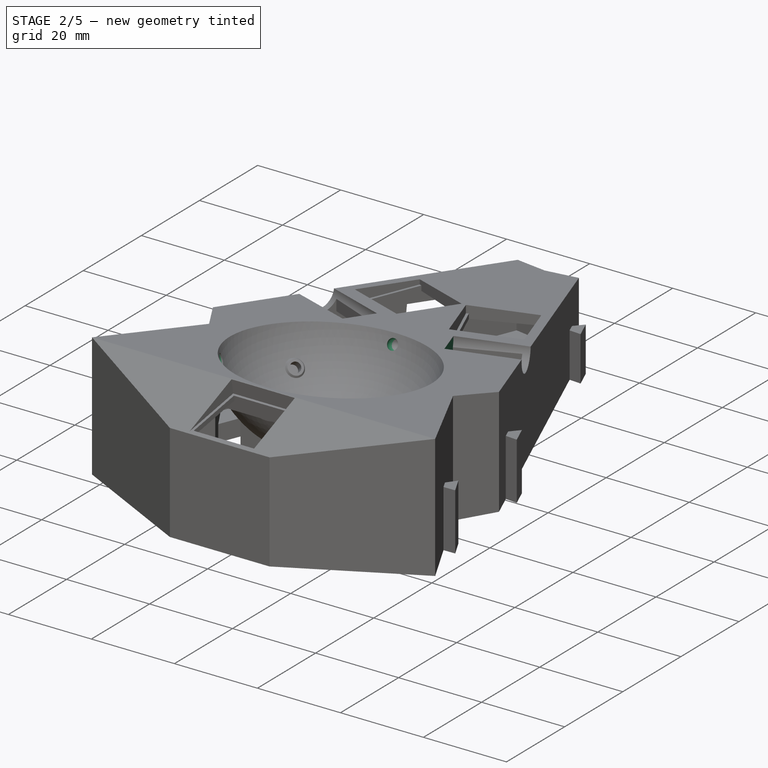
[diagram: stage 2 of 5 — iso view after this stage's code; geometry added in this stage tinted green]
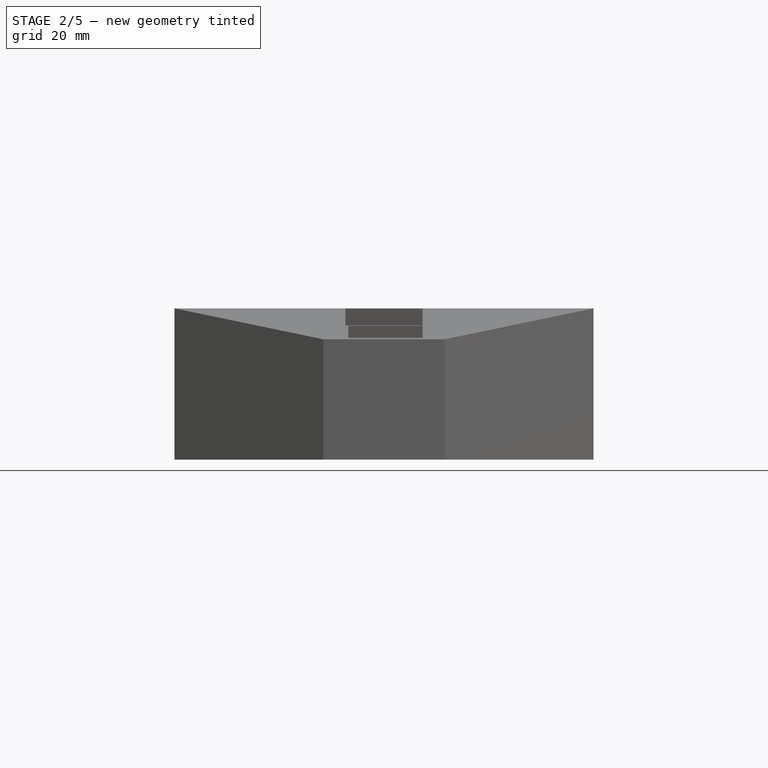
[diagram: stage 2 of 5 — front view after this stage's code; geometry added in this stage tinted green]
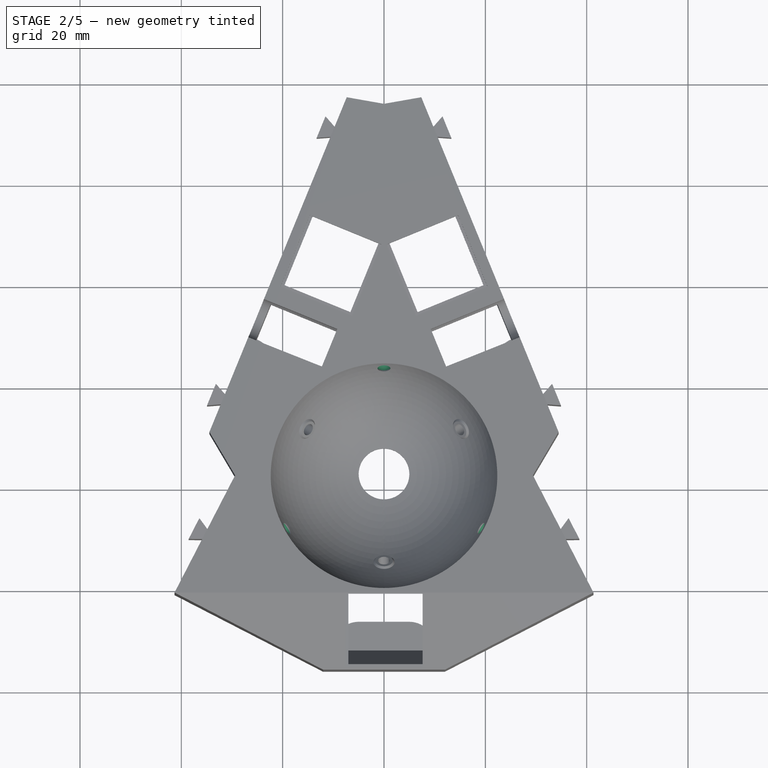
[diagram: stage 2 of 5 — top view after this stage's code; geometry added in this stage tinted green]
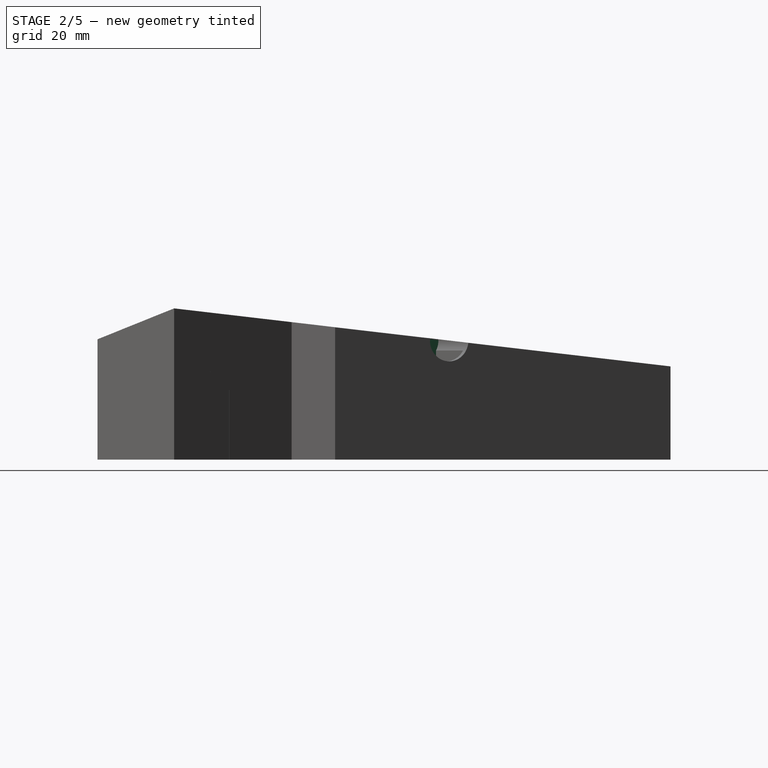
[diagram: stage 2 of 5 — right view after this stage's code; geometry added in this stage tinted green]
FEATURE [PartDesign::Pad] Pad007
  BaseFeature = -> AdditiveLoft
  Direction = (0,-0.930801,-0.365527)
  Length = 10
  Length2 = 10
  Profile = -> Sketch044
  ReferenceAxis = -> Sketch044 [N_Axis]
  Refine = true
  Reversed = true
  Suppressed = false
  Type = 5
FEATURE [Sketcher::SketchObject] Sketch045  label="RGB FrontCenterHole"
  ArcFitTolerance = 1e-06
  AttachmentSupport = -> [Pad007]
  ExternalGeometry = -> [Pad007]
  FullyConstrained = true
  MakeInternals = false
  MapMode = 5
  Placement = pos=(0,-61.5793,-24.1823) rot=(1,0,0;1.945rad)
  sketch-geometry (3):
    g0: GeomPoint [constr] X=2 Y=39.5366 Z=0
    g1: LineSegment [constr] StartX=2 StartY=39.5366 StartZ=0 EndX=4 EndY=39.5366 EndZ=0
    g2: Circle CenterX=4 CenterY=39.5366 CenterZ=0 NormalX=0 NormalY=0 NormalZ=1 AngleXU=0 Radius=0.75
  constraints (6):
    c: Distance(g1) = 2
    c: Coincident(g1,g0)
    c: Horizontal(g1)
    c: Diameter(g2) = 1.5
    c: Coincident(g2,g1)
    c: Symmetric(g-3,g-3,g0)
FEATURE [PartDesign::Pocket] Pocket025
  BaseFeature = -> Pad007
  Direction = (0,0.930801,0.365527)
  Length = 4
  Length2 = 5
  Profile = -> Sketch045
  ReferenceAxis = -> Sketch045 [N_Axis]
  Refine = true
  Suppressed = false
  Type = 0
FEATURE [PartDesign::Pocket] Pocket026
  BaseFeature = -> Pocket025
  Direction = (0,0.930801,0.365527)
  Length = 2
  Length2 = 5
  Profile = -> Sketch050
  ReferenceAxis = -> Sketch050 [N_Axis]
  Refine = true
  Suppressed = false
  Type = 0
FEATURE [PartDesign::Pocket] Pocket027
  BaseFeature = -> Pocket026
  Direction = (0,0.930801,0.365527)
  Length = 3
  Length2 = 5
  Profile = -> Sketch051
  ReferenceAxis = -> Sketch051 [N_Axis]
  Refine = true
  Suppressed = false
  Type = 0
FEATURE [PartDesign::Groove] Groove001
  Angle = 360
  Angle2 = 60
  Axis = (-24.9743,-14.4189,-8.26912)
  Base = (9.5e-15,-57,32.5)
  BaseFeature = -> Pocket027
  Profile = -> Sketch054
  ReferenceAxis = -> Sketch054 [Axis]
  Refine = true
  Reversed = true
  Suppressed = false
  Type = 0
FEATURE [PartDesign::PolarPattern] PolarPattern001
  Angle = 240
  Axis = -> DatumLine
  BaseFeature = -> Groove001
  Mode = 1
  Occurrences = 2
  Offset = 240
  Originals = -> [Groove001]
  Refine = true
  Suppressed = false
  TransformMode = 0
FEATURE [PartDesign::Line] DatumLine002
  AttacherType = Attacher::AttachEngineLine
  AttachmentSupport = -> [PolarPattern001]
  Length = 20
  MapMode = 29
  Placement = pos=(0,17.2238,18.4) rot=(0.57735,-0.57735,-0.57735;2.0944rad)
  ResizeMode = 0
FEATURE [PartDesign::Point] DatumPoint004
  AttacherType = Attacher::AttachEnginePoint
  AttachmentSupport = -> [PolarPattern001]
  MapMode = 37
  Placement = pos=(-4e-16,17.2238,18.4) rot=(0,0,1;0rad)
FEATURE [Sketcher::SketchObject] Sketch067  label="TRRS Deeper Right"
  ArcFitTolerance = 1e-06
  AttachmentSupport = -> [PolarPattern001]
  ExternalGeometry = -> [PolarPattern001]
  FullyConstrained = true
  MakeInternals = false
  MapMode = 5
  Placement = pos=(-0.743364,-0.304274,-2e-16) rot=(0.428774,0.638809,0.638809;2.33147rad)
  sketch-geometry (5):
    g0: ArcOfCircle CenterX=-34.0481 CenterY=23.49 CenterZ=0 NormalX=0 NormalY=0 NormalZ=1 AngleXU=0 Radius=4.1 StartAngle=5.78412 EndAngle=9.42085
    g1: LineSegment StartX=-38.8724 StartY=17 StartZ=0 EndX=-30.4482 EndY=17 EndZ=0
    g2: LineSegment StartX=-30.4482 StartY=17 StartZ=0 EndX=-30.4482 EndY=21.5277 EndZ=0
    g3: LineSegment StartX=-38.8724 StartY=17 StartZ=0 EndX=-38.8724 EndY=22.6429 EndZ=0
    g4: LineSegment StartX=-38.8724 StartY=22.6429 StartZ=0 EndX=-38.1481 EndY=23.5061 EndZ=0
  constraints (12):
    c: Coincident(g0,g-4)
    c: Coincident(g0,g-3)
    c: Coincident(g1,g-5)
    c: Horizontal(g1)
    c: Coincident(g1,g2)
    c: Coincident(g2,g0)
    c: Vertical(g2)
    c: Coincident(g1,g3)
    c: Coincident(g3,g-6)
    c: Vertical(g3)
    c: Coincident(g3,g4)
    c: Coincident(g4,g0)
FEATURE [PartDesign::Pocket] Pocket028
  BaseFeature = -> PolarPattern001
  Direction = (-0.925472,-0.378815,0)
  Length = 1.5
  Length2 = 5
  Profile = -> Sketch067
  ReferenceAxis = -> Sketch067 [N_Axis]
  Refine = true
  Suppressed = false
  Type = 0
FEATURE [Sketcher::SketchObject] Sketch068  label="TRRS Deeper Left"
  ArcFitTolerance = 1e-06
  AttachmentSupport = -> [Pocket028]
  ExternalGeometry = -> [Pocket028]
  FullyConstrained = true
  MakeInternals = false
  MapMode = 5
  Placement = pos=(0.743364,-0.304274,0) rot=(-0.428774,0.638809,0.638809;3.95172rad)
  sketch-geometry (5):
    g0: LineSegment StartX=38.1481 StartY=23.5055 StartZ=0 EndX=38.8719 EndY=22.6429 EndZ=0
    g1: LineSegment StartX=38.8719 StartY=22.6429 StartZ=0 EndX=38.8664 EndY=17 EndZ=0
    g2: LineSegment StartX=38.8664 StartY=17 StartZ=0 EndX=30.4482 EndY=17 EndZ=0
    g3: LineSegment StartX=30.4482 StartY=17 StartZ=0 EndX=30.4482 EndY=21.5277 EndZ=0
    g4: ArcOfCircle CenterX=34.0481 CenterY=23.49 CenterZ=0 NormalX=0 NormalY=0 NormalZ=1 AngleXU=0 Radius=4.1 StartAngle=0.00377941 EndAngle=3.64066
  constraints (12):
    c: Coincident(g0,g-3)
    c: Coincident(g1,g0)
    c: Coincident(g1,g-4)
    c: Coincident(g2,g1)
    c: Coincident(g2,g-4)
    c: Coincident(g3,g2)
    c: Coincident(g4,g-5)
    c: PointOnObject(g-5,g4)
    c: PointOnObject(g0,g-3)
    c: Vertical(g3)
    c: Coincident(g4,g3)
    c: Coincident(g4,g0)
FEATURE [PartDesign::Pocket] Pocket029
  BaseFeature = -> Pocket028
  Direction = (0.925472,-0.378815,0)
  Length = 1.5
  Length2 = 5
  Profile = -> Sketch068
  ReferenceAxis = -> Sketch068 [N_Axis]
  Refine = true
  Suppressed = false
  Type = 0
FEATURE [Sketcher::SketchObject] Sketch072  label="TRRS Center Connection"
  ArcFitTolerance = 1e-06
  AttachmentSupport = -> [Pocket029]
  ExternalGeometry = -> [Pocket029]
  FullyConstrained = true
  MakeInternals = false
  MapMode = 5
  Placement = pos=(0,0,18.85) rot=(1,0,0;3.14159rad)
  sketch-geometry (4):
    g0: ArcOfCircle CenterX=0.0418229 CenterY=57.6082 CenterZ=0 NormalX=0 NormalY=0 NormalZ=1 AngleXU=0 Radius=21.4 StartAngle=3.94801 EndAngle=5.46794
    g1: LineSegment StartX=14.7156 StartY=42.0312 StartZ=0 EndX=9.40268 EndY=29.0515 EndZ=0
    g2: LineSegment StartX=9.40268 StartY=29.0515 StartZ=0 EndX=-9.40268 EndY=29.0515 EndZ=0
    g3: LineSegment StartX=-9.40268 StartY=29.0515 StartZ=0 EndX=-14.7688 EndY=42.1613 EndZ=0
  constraints (10):
    c: Radius(g0) = 21.4
    c: Coincident(g0,g-5)
    c: Coincident(g0,g1)
    c: Coincident(g1,g2)
    c: Coincident(g2,g-3)
    c: Coincident(g2,g3)
    c: Coincident(g3,g0)
    c: PointOnObject(g-3,g3)
    c: PointOnObject(g-4,g1)
    c: Coincident(g-4,g1)
FEATURE [PartDesign::Pad] Pad010
  BaseFeature = -> Pocket029
  Direction = (0,0,-1)
  Length = 3.8
  Length2 = 10
  Profile = -> Sketch072
  ReferenceAxis = -> Sketch072 [N_Axis]
  Refine = true
  Reversed = true
  Suppressed = false
  Type = 0
FEATURE [PartDesign::Groove] Groove002
  Angle = 360
  Angle2 = 60
  Axis = (0,26.9638,-13.1511)
  Base = (0,-57,32.5)
  BaseFeature = -> Pad010
  Profile = -> Sketch069
  ReferenceAxis = -> Sketch069 [Axis]
  Refine = true
  Reversed = true
  Suppressed = false
  Type = 0
FEATURE [PartDesign::Body] Body005  label="Bottom Cover"
  AllowCompound = false
  Group = -> [ShapeBinder,ShapeBinder001,Sketch070,Pad008,Sketch071,Pad009,Sketch077,Pocket030,Sketch090,Pad021,Fillet016]
  Origin = -> Origin001
  Placement = pos=(0,0,0.5) rot=(0,0,1;0rad)
  Tip = -> Fillet016
FEATURE [Sketcher::SketchObject] Sketch091
  ArcFitTolerance = 1e-06
  AttachmentSupport = -> [Groove002]
  FullyConstrained = true
  MakeInternals = false
  MapMode = 5
  Placement = pos=(0,7,0) rot=(1,0,0;1.5708rad)
  sketch-geometry (8):
    g0: LineSegment StartX=-8.65 StartY=1.5 StartZ=0 EndX=-3.15 EndY=1.5 EndZ=0
    g1: LineSegment StartX=-3.15 StartY=1.5 StartZ=0 EndX=-3.15 EndY=2.75 EndZ=0
    g2: LineSegment StartX=-3.15 StartY=2.75 StartZ=0 EndX=-8.65 EndY=2.75 EndZ=0
    g3: LineSegment StartX=-8.65 StartY=2.75 StartZ=0 EndX=-8.65 EndY=1.5 EndZ=0
    g4: LineSegment StartX=3.15 StartY=2.75 StartZ=0 EndX=3.15 EndY=1.5 EndZ=0
    g5: LineSegment StartX=3.15 StartY=1.5 StartZ=0 EndX=8.65 EndY=1.5 EndZ=0
    g6: LineSegment StartX=8.65 StartY=1.5 StartZ=0 EndX=8.65 EndY=2.75 EndZ=0
    g7: LineSegment StartX=8.65 StartY=2.75 StartZ=0 EndX=3.15 EndY=2.75 EndZ=0
  constraints (24):
    c: Coincident(g0,g1)
    c: Coincident(g1,g2)
    c: Coincident(g2,g3)
    c: Coincident(g3,g0)
    c: Horizontal(g0)
    c: Horizontal(g2)
    c: Vertical(g1)
    c: Vertical(g3)
    c: Coincident(g4,g5)
    c: Coincident(g5,g6)
    c: Coincident(g6,g7)
    c: Coincident(g7,g4)
    c: Vertical(g4)
    c: Vertical(g6)
    c: Horizontal(g5)
    c: Horizontal(g7)
    c: DistanceY(g1,g1) = 1.25
    c: DistanceX(g2,g2) = 5.5
    c: DistanceY(g6,g6) = 1.25
    c: DistanceX(g7,g7) = 5.5
    c: Distance(g4,g-2) = 3.15
    c: Distance(g-2,g1) = 3.15
    c: Distance(g0,g-1) = 1.5
    c: Distance(g5,g-1) = 1.5
FEATURE [PartDesign::Pocket] Pocket035
  BaseFeature = -> Groove002
  Direction = (0,1,-2e-16)
  Length = 3.5
  Length2 = 5
  Profile = -> Sketch091
  ReferenceAxis = -> Sketch091 [N_Axis]
  Refine = true
  Suppressed = false
  Type = 0
FEATURE [Sketcher::SketchObject] Sketch092
  ArcFitTolerance = 1e-06
  AttachmentSupport = -> [Pocket035]
  FullyConstrained = true
  MakeInternals = false
  MapMode = 5
  Placement = pos=(0,-86.065,0) rot=(0,0.707107,0.707107;3.14159rad)
  sketch-geometry (5):
    g0: LineSegment StartX=-2.75 StartY=1.5 StartZ=0 EndX=2.75 EndY=1.5 EndZ=0
    g1: LineSegment StartX=2.75 StartY=1.5 StartZ=0 EndX=2.75 EndY=2.75 EndZ=0
    g2: LineSegment StartX=2.75 StartY=2.75 StartZ=0 EndX=-2.75 EndY=2.75 EndZ=0
    g3: LineSegment StartX=-2.75 StartY=2.75 StartZ=0 EndX=-2.75 EndY=1.5 EndZ=0
    g4: GeomPoint [constr] X=0 Y=2.125 Z=0
  constraints (13):
    c: Coincident(g0,g1)
    c: Coincident(g1,g2)
    c: Coincident(g2,g3)
    c: Coincident(g3,g0)
    c: Horizontal(g0)
    c: Horizontal(g2)
    c: Vertical(g1)
    c: Vertical(g3)
    c: Symmetric(g2,g0,g4)
    c: Distance(g1,g3) = 5.5
    c: Distance(g0,g2) = 1.25
    c: PointOnObject(g4,g-2)
    c: Distance(g0,g-1) = 1.5
FEATURE [PartDesign::Pocket] Pocket036
  BaseFeature = -> Pocket035
  Direction = (0,-1,2e-16)
  Length = 3.5
  Length2 = 5
  Profile = -> Sketch092
  ReferenceAxis = -> Sketch092 [N_Axis]
  Refine = true
  Suppressed = false
  Type = 0
FEATURE [PartDesign::Body] Body  label="Trackball"
  AllowCompound = false
  Group = -> [Sketch021,Sketch,DatumPoint,DatumPoint001,DatumPoint002,DatumPlane,Pad,Sketch022,Pocket,Sketch023,Pocket001,Sketch024,Pocket002,Sketch026,Pocket003,Mirrored,Sketch027,DatumLine,Groove,Sketch028,Pocket004,Sketch030,Pocket005,Sketch031,Pocket006,Sketch032,Pocket007,Sketch033,Pocket008,Sketch034,Pocket009,Sketch035,Pocket010,Sketch037,Pocket012,Sketch038,Pocket013,Sketch039,Pad001,Sketch040,+57 more]
  Origin = -> Origin
  Tip = -> Pocket036
FEATURE [Part::FeaturePython] Slice  # WARN: FeaturePython — macro-defined, semantics opaque (R4)
  Base = -> Pocket036
  Mode = 1
  Tolerance = 0
  Tools = -> [DatumPlane003]
FEATURE [Part::FeaturePython] Slice_child0  label="Slice.0"  # WARN: FeaturePython — macro-defined, semantics opaque (R4)
  Base = -> Slice
  FilterType = 1
  Invert = false
  OverrideMaxVal = 0
  WindowFrom = 80
  WindowTo = 100
  items = 0
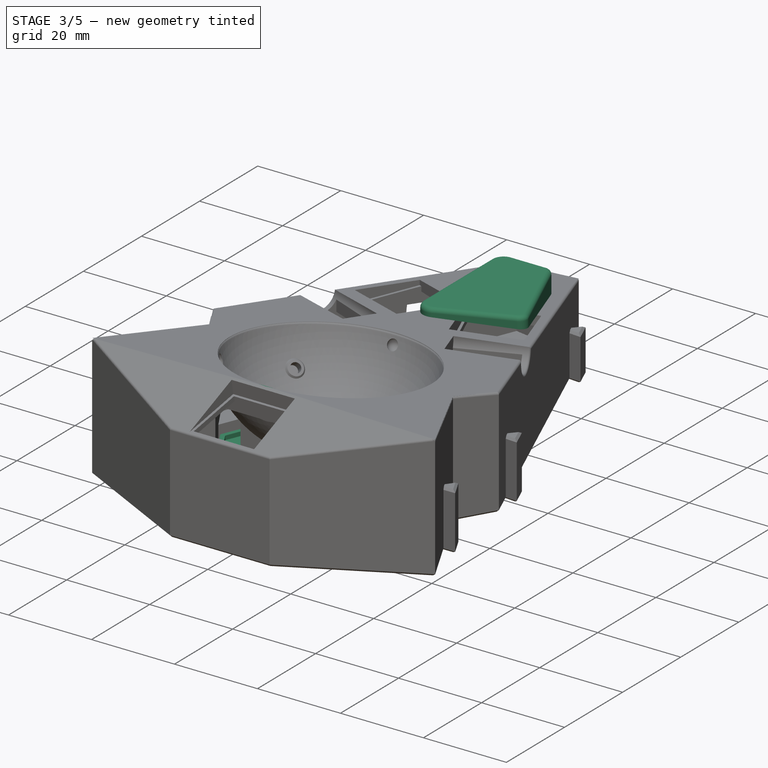
[diagram: stage 3 of 5 — iso view after this stage's code; geometry added in this stage tinted green]
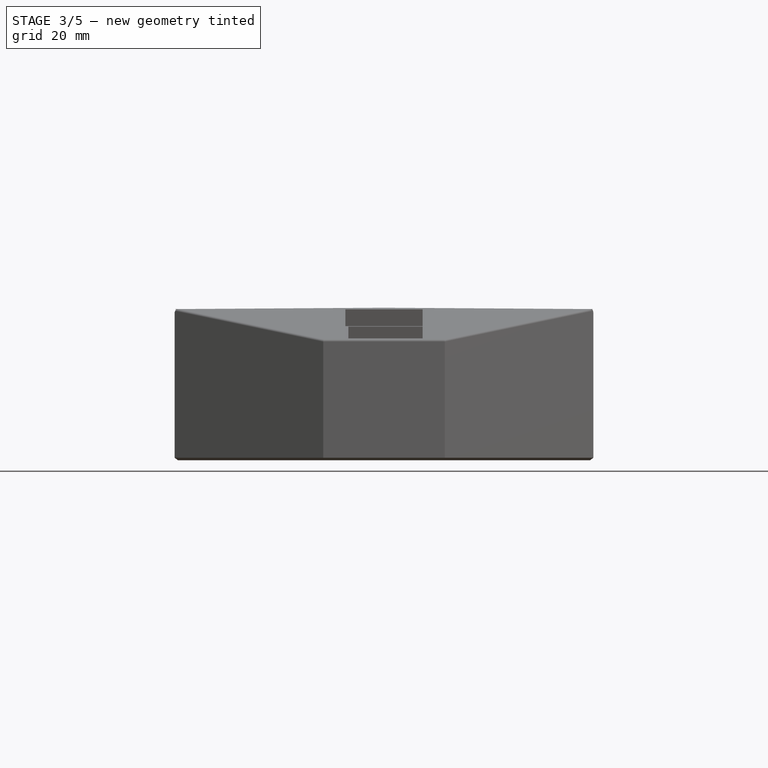
[diagram: stage 3 of 5 — front view after this stage's code; geometry added in this stage tinted green]
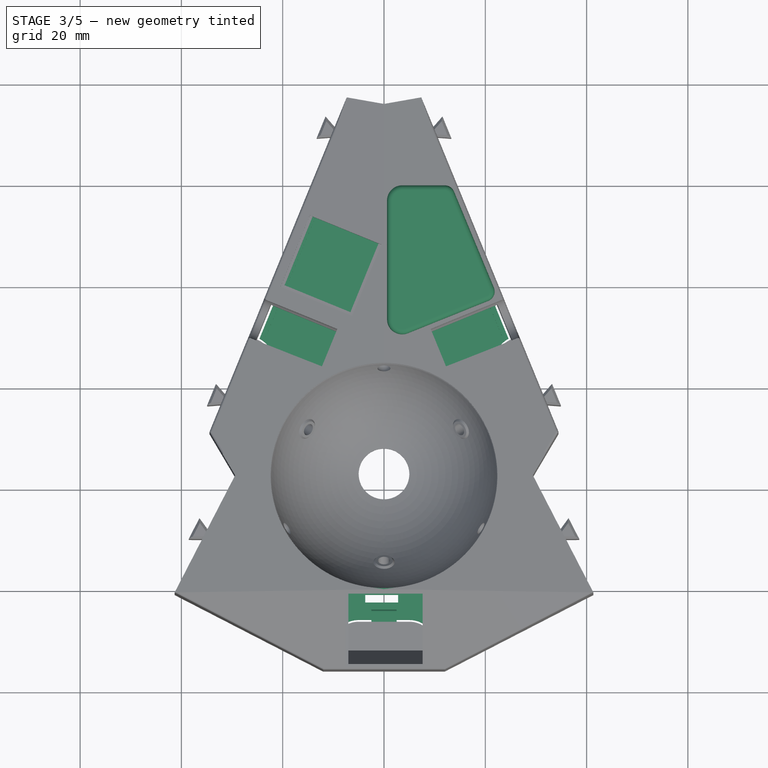
[diagram: stage 3 of 5 — top view after this stage's code; geometry added in this stage tinted green]
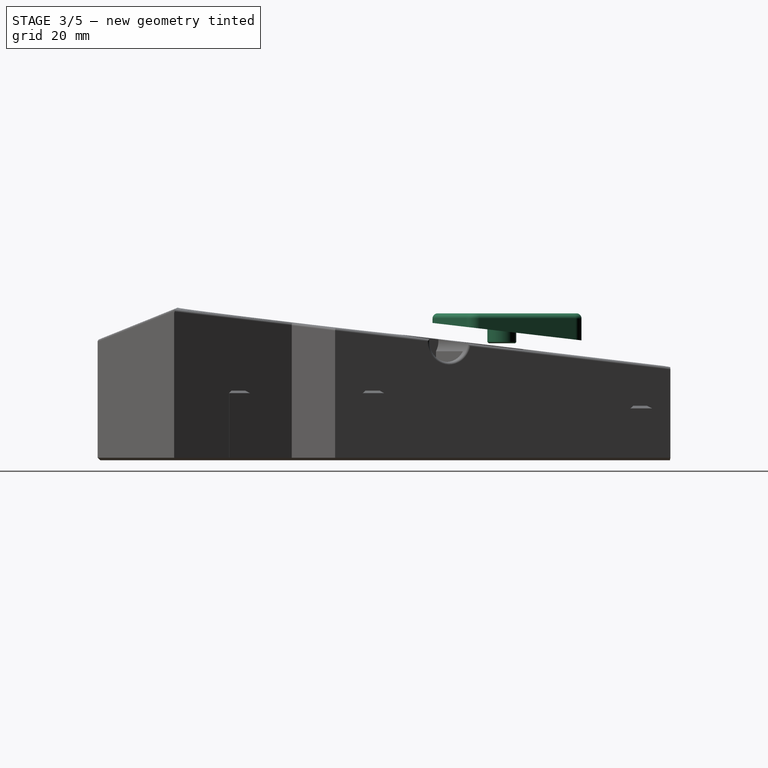
[diagram: stage 3 of 5 — right view after this stage's code; geometry added in this stage tinted green]
FEATURE [PartDesign::ShapeBinder] ShapeBinder
  TraceSupport = false
FEATURE [PartDesign::ShapeBinder] ShapeBinder001
  Placement = pos=(0,-58.5,0) rot=(0,0,1;0rad)
  Support = -> [Body004]
  TraceSupport = false
FEATURE [Sketcher::SketchObject] Sketch069  label="3mm Back Support"
  ArcFitTolerance = 1e-06
  AttachmentSupport = -> [YZ_Plane]
  ExternalGeometry = -> [DatumLine]
  FullyConstrained = true
  MakeInternals = false
  MapMode = 5
  Placement = pos=(0,0,0) rot=(0.57735,0.57735,0.57735;2.0944rad)
  sketch-geometry (4):
    g0: LineSegment [constr] StartX=-57 StartY=32.5 StartZ=0 EndX=-30.0362 EndY=19.3489 EndZ=0
    g1: LineSegment StartX=-35.6536 StartY=22.0887 StartZ=0 EndX=-34.3055 EndY=21.4311 EndZ=0
    g2: ArcOfCircle CenterX=-35.6536 CenterY=22.0887 CenterZ=0 NormalX=0 NormalY=0 NormalZ=1 AngleXU=0 Radius=1.5 StartAngle=5.8294 EndAngle=8.97099
    g3: LineSegment StartX=-37.0018 StartY=22.7462 StartZ=0 EndX=-35.6536 EndY=22.0887 EndZ=0
  constraints (13):
    c: Distance(g0,g0) = 30
    c: PointOnObject(g0,g-3)
    c: Angle(g-3,g0) = 1.11701
    c: Distance(g0,g-1) = 32.5
    c: Coincident(g2,g1)
    c: Coincident(g2,g1)
    c: PointOnObject(g1,g0)
    c: Radius(g2) = 1.5
    c: Distance(g0,g1) = 23.75
    c: PointOnObject(g1,g0)
    c: PointOnObject(g2,g0)
    c: Coincident(g3,g2)
    c: Coincident(g3,g1)
FEATURE [PartDesign::Plane] DatumPlane003
  AttachmentSupport = -> [PolarPattern001,DatumPoint004]
  Length = 63.2098
  MapMode = 13
  Placement = pos=(-9.6e-15,-48.0902,26.0333) rot=(1,0,0;3.02525rad)
  ResizeMode = 0
  Width = 100.46
FEATURE [Sketcher::SketchObject] Sketch070
  ArcFitTolerance = 1e-06
  AttachmentSupport = -> [XY_Plane001]
  ExternalGeometry = -> [ShapeBinder,ShapeBinder001]
  FullyConstrained = true
  MakeInternals = false
  MapMode = 5
  sketch-geometry (28):
    g0: LineSegment StartX=-9.5482 StartY=6.6 StartZ=0 EndX=9.5482 EndY=6.6 EndZ=0
    g1: LineSegment StartX=9.5482 StartY=6.6 StartZ=0 EndX=24.5822 EndY=-30.1292 EndZ=0
    g2: LineSegment StartX=-24.5822 StartY=-30.1292 StartZ=0 EndX=-9.5482 EndY=6.6 EndZ=0
    g3: LineSegment StartX=-22.1444 StartY=-37.3724 StartZ=0 EndX=-29.0355 EndY=-54.2078 EndZ=0
    g4: LineSegment StartX=-29.0355 StartY=-54.2078 StartZ=0 EndX=-25.0571 EndY=-60.9308 EndZ=0
    g5: LineSegment StartX=-25.0571 StartY=-60.9308 StartZ=0 EndX=-29.7644 EndY=-70.0686 EndZ=0
    g6: LineSegment StartX=-29.7644 StartY=-70.0686 StartZ=0 EndX=-23.9869 EndY=-75.7679 EndZ=0
    g7: LineSegment StartX=-23.9869 StartY=-75.7679 StartZ=0 EndX=-12.771 EndY=-90.465 EndZ=0
    g8: LineSegment StartX=-12.771 StartY=-90.465 StartZ=0 EndX=-10.3666 EndY=-90.465 EndZ=0
    g9: LineSegment StartX=10.3666 StartY=-90.465 StartZ=0 EndX=12.771 EndY=-90.465 EndZ=0
    g10: LineSegment StartX=12.771 StartY=-90.465 StartZ=0 EndX=23.9869 EndY=-75.7679 EndZ=0
    g11: LineSegment StartX=23.9869 StartY=-75.7679 StartZ=0 EndX=29.7644 EndY=-70.0686 EndZ=0
    g12: LineSegment StartX=29.7644 StartY=-70.0686 StartZ=0 EndX=25.0571 EndY=-60.9308 EndZ=0
    g13: LineSegment StartX=25.0571 StartY=-60.9308 StartZ=0 EndX=29.0355 EndY=-54.2078 EndZ=0
    g14: LineSegment StartX=29.0355 StartY=-54.2078 StartZ=0 EndX=22.1444 EndY=-37.3724 EndZ=0
    g15: LineSegment StartX=-5 StartY=-85.665 StartZ=0 EndX=5 EndY=-85.665 EndZ=0
    g16: LineSegment StartX=-5.67 StartY=-68.15 StartZ=0 EndX=5.68 EndY=-68.15 EndZ=0
    g17: LineSegment StartX=5.68 StartY=-68.15 StartZ=0 EndX=5.68 EndY=-50.71 EndZ=0
    g18: LineSegment StartX=5.68 StartY=-50.71 StartZ=0 EndX=-5.67 EndY=-50.71 EndZ=0
    g19: LineSegment StartX=-5.67 StartY=-50.71 StartZ=0 EndX=-5.67 EndY=-68.15 EndZ=0
    g20: ArcOfCircle CenterX=-27.2431 CenterY=-35.0567 CenterZ=0 NormalX=0 NormalY=0 NormalZ=1 AngleXU=0 Radius=5.6 StartAngle=5.85687 EndAngle=7.35884
    g21: ArcOfCircle CenterX=27.2431 CenterY=-35.0567 CenterZ=0 NormalX=0 NormalY=0 NormalZ=1 AngleXU=0 Radius=5.6 StartAngle=2.06594 EndAngle=3.56791
    g22: LineSegment [constr] StartX=27.2431 StartY=-35.0567 StartZ=0 EndX=22.1444 EndY=-37.3724 EndZ=0
    g23: LineSegment [constr] StartX=-27.2431 StartY=-35.0567 StartZ=0 EndX=-22.1444 EndY=-37.3724 EndZ=0
    g24: LineSegment [constr] StartX=-25.0983 StartY=-30.3342 StartZ=0 EndX=-27.2431 EndY=-35.0567 EndZ=0
    g25: LineSegment [constr] StartX=25.0983 StartY=-30.3342 StartZ=0 EndX=27.2431 EndY=-35.0567 EndZ=0
    g26: ArcOfCircle CenterX=-5 CenterY=-91.065 CenterZ=0 NormalX=0 NormalY=0 NormalZ=1 AngleXU=0 Radius=5.4 StartAngle=1.5708 EndAngle=3.03025
    g27: ArcOfCircle CenterX=5 CenterY=-91.065 CenterZ=0 NormalX=0 NormalY=0 NormalZ=1 AngleXU=0 Radius=5.4 StartAngle=0.111341 EndAngle=1.5708
  constraints (82):
    c: Horizontal(g0)
    c: Coincident(g0,g1)
    c: Coincident(g2,g0)
    c: Coincident(g3,g4)
    c: Coincident(g4,g5)
    c: Coincident(g5,g6)
    c: Coincident(g6,g7)
    c: Coincident(g7,g8)
    c: Coincident(g9,g10)
    c: Coincident(g10,g11)
    c: Coincident(g11,g12)
    c: Coincident(g12,g13)
    c: Coincident(g13,g14)
    c: Horizontal(g15)
    c: Horizontal(g16)
    c: Coincident(g16,g17)
    c: Coincident(g17,g18)
    c: Coincident(g18,g19)
    c: Vertical(g19)
    c: Distance(g-3,g0) = 0.4
    c: Parallel(g2,g-4)
    c: Parallel(g1,g-5)
    c: Parallel(g3,g-21)
    c: Parallel(g4,g-20)
    c: Parallel(g5,g-19)
    c: Parallel(g6,g-18)
    c: Parallel(g-16,g8)
    c: Parallel(g9,g-12)
    c: Horizontal(g18)
    c: Vertical(g17)
    c: Parallel(g11,g-10)
    c: Parallel(g10,g-11)
    c: Parallel(g13,g-8)
    c: Parallel(g14,g-7)
    c: Distance(g-7,g14) = 0.4
    c: Distance(g-8,g13) = 0.4
    c: Parallel(g12,g-9)
    c: Distance(g-9,g12) = 0.4
    c: Distance(g-10,g11) = 0.4
    c: Distance(g10,g-11) = 0.4
    c: Distance(g9,g-12) = 0.6
    c: Parallel(g7,g-17)
    c: Distance(g8,g-16) = 0.6
    c: Distance(g7,g-17) = 0.4
    c: Distance(g-19,g5) = 0.4
    c: Distance(g6,g-18) = 0.4
    c: Distance(g-21,g3) = 0.4
    c: Distance(g-20,g4) = 0.4
    c: Distance(g-4,g2) = 0.4
    c: Distance(g-5,g1) = 0.4
    c: Coincident(g20,g2)
    c: Coincident(g20,g3)
    c: Radius(g20) = 5.6
    c: Distance(g2,g-22) = 0.4
    c: Coincident(g21,g1)
    c: Coincident(g21,g14)
    c: Radius(g21) = 5.6
    c: Distance(g1,g-6) = 0.4
    c: Coincident(g22,g21)
    c: Coincident(g22,g14)
    c: Coincident(g23,g20)
    c: Coincident(g23,g3)
    c: Coincident(g24,g-22)
    c: Coincident(g24,g20)
    c: Angle(g23,g24) = 1.5708
    c: Coincident(g25,g-6)
    c: Coincident(g25,g21)
    c: Angle(g25,g22) = 1.5708
    c: Vertical(g-15,g15)
    c: Vertical(g15,g-14)
    c: Coincident(g26,g15)
    c: Distance(g15,g-14) = 0.4
    c: Coincident(g8,g26)
    c: Coincident(g-15,g26)
    c: Coincident(g27,g-13)
    c: Coincident(g27,g15)
    c: Coincident(g27,g9)
    c: Coincident(g16,g19)
    c: Distance(g19,g-24) = 0.6
    c: Distance(g18,g-23) = 0.6
    c: Distance(g17,g-25) = 0.6
    c: Distance(g-26,g16) = 0.6
FEATURE [PartDesign::Pad] Pad008
  Direction = (0,0,1)
  Length = 1
  Length2 = 10
  Profile = -> Sketch070
  ReferenceAxis = -> Sketch070 [N_Axis]
  Refine = true
  Suppressed = false
  Type = 0
FEATURE [Sketcher::SketchObject] Sketch071
  ArcFitTolerance = 1e-06
  AttachmentSupport = -> [Pad008]
  ExternalGeometry = -> [Pad008]
  FullyConstrained = true
  MakeInternals = false
  MapMode = 5
  Placement = pos=(0,0,1) rot=(0,0,1;0rad)
  sketch-geometry (12):
    g0: LineSegment StartX=-8.41396 StartY=9.4 StartZ=0 EndX=-8.41396 EndY=4.4 EndZ=0
    g1: LineSegment StartX=-8.41396 StartY=4.4 StartZ=0 EndX=-3.41396 EndY=4.4 EndZ=0
    g2: LineSegment StartX=-3.41396 StartY=4.4 StartZ=0 EndX=-3.41396 EndY=9.4 EndZ=0
    g3: LineSegment StartX=-3.41396 StartY=9.4 StartZ=0 EndX=-8.41396 EndY=9.4 EndZ=0
    g4: LineSegment StartX=3.41396 StartY=9.4 StartZ=0 EndX=3.41396 EndY=4.4 EndZ=0
    g5: LineSegment StartX=3.41396 StartY=4.4 StartZ=0 EndX=8.41396 EndY=4.4 EndZ=0
    g6: LineSegment StartX=8.41396 StartY=4.4 StartZ=0 EndX=8.41396 EndY=9.4 EndZ=0
    g7: LineSegment StartX=8.41396 StartY=9.4 StartZ=0 EndX=3.41396 EndY=9.4 EndZ=0
    g8: LineSegment StartX=-2.5 StartY=-83.665 StartZ=0 EndX=-2.5 EndY=-88.165 EndZ=0
    g9: LineSegment StartX=-2.5 StartY=-88.165 StartZ=0 EndX=2.5 EndY=-88.165 EndZ=0
    g10: LineSegment StartX=2.5 StartY=-88.165 StartZ=0 EndX=2.5 EndY=-83.665 EndZ=0
    g11: LineSegment StartX=2.5 StartY=-83.665 StartZ=0 EndX=-2.5 EndY=-83.665 EndZ=0
  constraints (35):
    c: Coincident(g0,g1)
    c: Coincident(g1,g2)
    c: Coincident(g2,g3)
    c: Coincident(g3,g0)
    c: Vertical(g0)
    c: Vertical(g2)
    c: Horizontal(g1)
    c: Horizontal(g3)
    c: Distance(g0,g2) = 5
    c: Distance(g1,g3) = 5
    c: Coincident(g4,g5)
    c: Coincident(g5,g6)
    c: Coincident(g6,g7)
    c: Coincident(g7,g4)
    c: Vertical(g4)
    c: Vertical(g6)
    c: Horizontal(g5)
    c: Horizontal(g7)
    c: Distance(g4,g6) = 5
    c: Distance(g5,g7) = 5
    c: Coincident(g8,g9)
    c: Coincident(g9,g10)
    c: Coincident(g10,g11)
    c: Coincident(g11,g8)
    c: Vertical(g8)
    c: Vertical(g10)
    c: Horizontal(g11)
    c: Distance(g8,g10) = 5
    c: Distance(g9,g11) = 4.5
    c: Distance(g-4,g0) = 1
    c: Distance(g-4,g6) = 1
    c: Symmetric(g9,g8,g-2)
    c: Distance(g1,g-4) = 2
    c: Distance(g4,g-4) = 2
    c: Distance(g8,g-3) = 2
FEATURE [PartDesign::Pad] Pad009
  BaseFeature = -> Pad008
  Direction = (0,0,1)
  Length = 1
  Length2 = 10
  Profile = -> Sketch071
  ReferenceAxis = -> Sketch071 [N_Axis]
  Refine = true
  Suppressed = false
  Type = 0
FEATURE [Sketcher::SketchObject] Sketch077
  ArcFitTolerance = 1e-06
  AttachmentSupport = -> [Pad009]
  FullyConstrained = true
  MakeInternals = false
  MapMode = 5
  Placement = pos=(0,0,1) rot=(0,0,1;0rad)
  sketch-geometry (4):
    g0: LineSegment StartX=-3.7 StartY=-80.715 StartZ=0 EndX=2.8 EndY=-80.715 EndZ=0
    g1: LineSegment StartX=2.8 StartY=-80.715 StartZ=0 EndX=2.8 EndY=-82.215 EndZ=0
    g2: LineSegment StartX=2.8 StartY=-82.215 StartZ=0 EndX=-3.7 EndY=-82.215 EndZ=0
    g3: LineSegment StartX=-3.7 StartY=-82.215 StartZ=0 EndX=-3.7 EndY=-80.715 EndZ=0
  constraints (12):
    c: Coincident(g0,g1)
    c: Coincident(g1,g2)
    c: Coincident(g2,g3)
    c: Coincident(g3,g0)
    c: Distance(g3,g3) = 1.5
    c: Distance(g2,g2) = 6.5
    c: Perpendicular(g2,g3)
    c: Parallel(g3,g1)
    c: Parallel(g2,g0)
    c: Parallel(g2,g-3)
    c: Distance(g2,g-3) = 1
    c: Distance(g-3,g1) = 0.75
FEATURE [PartDesign::Pocket] Pocket030
  BaseFeature = -> Pad009
  Direction = (0,0,-1)
  Length = 5
  Length2 = 5
  Profile = -> Sketch077
  ReferenceAxis = -> Sketch077 [N_Axis]
  Refine = true
  Suppressed = false
  Type = 0
FEATURE [PartDesign::ShapeBinder] ShapeBinder003
  TraceSupport = false
FEATURE [Sketcher::SketchObject] Sketch082
  ArcFitTolerance = 1e-06
  AttachmentOffset = pos=(0,0,3.1) rot=(0,0,1;0rad)
  AttachmentSupport = -> [ShapeBinder003]
  ExternalGeometry = -> [ShapeBinder003]
  FullyConstrained = true
  MakeInternals = false
  MapMode = 5
  Placement = pos=(0,0,23.1) rot=(0,0,1;0rad)
  sketch-geometry (15):
    g0: Circle CenterX=10.4731 CenterY=-16.0522 CenterZ=0 NormalX=0 NormalY=0 NormalZ=1 AngleXU=0 Radius=2.85
    g1: LineSegment StartX=9.69055 StartY=-15.7242 StartZ=0 EndX=9.12233 EndY=-14.336 EndZ=0
    g2: LineSegment StartX=9.12233 StartY=-14.336 StartZ=0 EndX=10.2329 EndY=-13.8814 EndZ=0
    g3: LineSegment StartX=10.2329 StartY=-13.8814 StartZ=0 EndX=10.8011 EndY=-15.2696 EndZ=0
    g4: LineSegment StartX=10.8011 StartY=-15.2696 StartZ=0 EndX=12.1893 EndY=-14.7014 EndZ=0
    g5: LineSegment StartX=12.1893 StartY=-14.7014 StartZ=0 EndX=12.6439 EndY=-15.812 EndZ=0
    g6: LineSegment StartX=12.6439 StartY=-15.812 StartZ=0 EndX=11.2557 EndY=-16.3802 EndZ=0
    g7: LineSegment StartX=11.2557 StartY=-16.3802 StartZ=0 EndX=11.8239 EndY=-17.7684 EndZ=0
    g8: LineSegment StartX=11.8239 StartY=-17.7684 StartZ=0 EndX=10.7134 EndY=-18.223 EndZ=0
    g9: LineSegment StartX=10.7134 StartY=-18.223 StartZ=0 EndX=10.1451 EndY=-16.8348 EndZ=0
    g10: LineSegment StartX=10.1451 StartY=-16.8348 StartZ=0 EndX=8.75692 EndY=-17.403 EndZ=0
    g11: LineSegment StartX=8.75692 StartY=-17.403 StartZ=0 EndX=8.30234 EndY=-16.2924 EndZ=0
    g12: LineSegment StartX=8.30234 StartY=-16.2924 StartZ=0 EndX=9.69055 EndY=-15.7242 EndZ=0
    g13: LineSegment [constr] StartX=8.75692 StartY=-17.403 StartZ=0 EndX=12.6439 EndY=-15.812 EndZ=0
    g14: LineSegment [constr] StartX=10.2329 StartY=-13.8814 StartZ=0 EndX=11.8239 EndY=-17.7684 EndZ=0
  constraints (40):
    c: Diameter(g0) = 5.7
    c: Coincident(g1,g2)
    c: Coincident(g2,g3)
    c: Coincident(g3,g4)
    c: Coincident(g4,g5)
    c: Coincident(g5,g6)
    c: Coincident(g6,g7)
    c: Coincident(g7,g8)
    c: Coincident(g8,g9)
    c: Coincident(g9,g10)
    c: Coincident(g10,g11)
    c: Coincident(g11,g12)
    c: Coincident(g12,g1)
    c: Distance(g5,g5) = 1.2
    c: Distance(g11,g11) = 1.2
    c: Distance(g8,g8) = 1.2
    c: Distance(g2,g8) = 4.2
    c: Distance(g11,g5) = 4.2
    c: Equal(g3,g9)
    c: Symmetric(g6,g1,g0)
    c: Parallel(g12,g10)
    c: Parallel(g8,g2)
    c: Perpendicular(g11,g10)
    c: Perpendicular(g7,g8)
    c: Symmetric(g9,g3,g0)
    c: Perpendicular(g5,g6)
    c: Perpendicular(g10,g9)
    c: Perpendicular(g1,g12)
    c: Perpendicular(g4,g3)
    c: Perpendicular(g6,g7)
    c: Equal(g10,g6)
    c: Symmetric(g-4,g-3,g0)
    c: Parallel(g5,g-4)
    c: Distance(g2,g2) = 1.2
    c: Coincident(g13,g10)
    c: Coincident(g13,g5)
    c: Coincident(g14,g2)
    c: Coincident(g14,g7)
    c: PointOnObject(g3,g14)
    c: PointOnObject(g9,g13)
FEATURE [Sketcher::SketchObject] Sketch083
  ArcFitTolerance = 1e-06
  AttachmentOffset = pos=(0,0,3.2) rot=(0,0,1;0rad)
  AttachmentSupport = -> [ShapeBinder003]
  ExternalGeometry = -> [ShapeBinder003]
  FullyConstrained = true
  MakeInternals = false
  MapMode = 5
  Placement = pos=(0,2.725,23.3163) rot=(-1,0,0;0.116344rad)
  sketch-geometry (11):
    g0: LineSegment StartX=4.72986 StartY=-32.4576 StartZ=0 EndX=20.5952 EndY=-26.0075 EndZ=0
    g1: LineSegment StartX=21.6911 StartY=-23.3927 StartZ=0 EndX=13.8225 EndY=-4.29899 EndZ=0
    g2: LineSegment StartX=11.9733 StartY=-3.06103 StartZ=0 EndX=3.6 EndY=-3.06103 EndZ=0
    g3: LineSegment StartX=0.6 StartY=-6.06103 StartZ=0 EndX=0.6 EndY=-29.6785 EndZ=0
    g4: ArcOfCircle CenterX=3.6 CenterY=-29.6785 CenterZ=0 NormalX=0 NormalY=0 NormalZ=1 AngleXU=0 Radius=3 StartAngle=3.14159 EndAngle=5.09853
    g5: ArcOfCircle CenterX=19.842 CenterY=-24.1547 CenterZ=0 NormalX=0 NormalY=0 NormalZ=1 AngleXU=0 Radius=2 StartAngle=5.09853 EndAngle=6.67409
    g6: GeomPoint [constr] X=22.4568 Y=-25.2506 Z=0
    g7: ArcOfCircle CenterX=11.9733 CenterY=-5.06103 CenterZ=0 NormalX=0 NormalY=0 NormalZ=1 AngleXU=0 Radius=2 StartAngle=0.3909 EndAngle=1.5708
    g8: GeomPoint [constr] X=13.3123 Y=-3.06103 Z=0
    g9: ArcOfCircle CenterX=3.6 CenterY=-6.06103 CenterZ=0 NormalX=0 NormalY=0 NormalZ=1 AngleXU=0 Radius=3 StartAngle=1.5708 EndAngle=3.14159
    g10: GeomPoint [constr] X=0.6 Y=-3.06103 Z=0
  constraints (26):
    c: Vertical(g3)
    c: Distance(g10,g-2) = 0.6
    c: Parallel(g-4,g1)
    c: Distance(g6,g-4) = 1.4
    c: Parallel(g0,g-5)
    c: Distance(g6,g8) = 24
    c: Tangent(g0,g4) = -1.5708
    c: Tangent(g3,g4) = -1.5708
    c: PointOnObject(g6,g0)
    c: PointOnObject(g6,g1)
    c: Tangent(g0,g5) = -1.5708
    c: Tangent(g1,g5) = -1.5708
    c: PointOnObject(g8,g1)
    c: PointOnObject(g8,g2)
    c: Tangent(g1,g7) = -1.5708
    c: Tangent(g2,g7) = -1.5708
    c: PointOnObject(g10,g2)
    c: PointOnObject(g10,g3)
    c: Tangent(g2,g9) = -1.5708
    c: Tangent(g3,g9) = -1.5708
    c: Radius(g5) = 2
    c: Radius(g7) = 2
    c: Radius(g9) = 3
    c: Distance(g0,g-5) = 4
    c: Radius(g4) = 3
    c: Horizontal(g2)
FEATURE [Sketcher::SketchObject] Sketch084
  ArcFitTolerance = 1e-06
  AttachmentOffset = pos=(0,0,29) rot=(0,0,1;0rad)
  AttachmentSupport = -> [XY_Plane003]
  ExternalGeometry = -> [Sketch083]
  FullyConstrained = true
  MakeInternals = false
  MapMode = 5
  Placement = pos=(0,0,29) rot=(0,0,1;0rad)
  sketch-geometry (8):
    g0: LineSegment StartX=0.6 StartY=-26.7528 StartZ=0 EndX=0.6 EndY=-3.29505 EndZ=0
    g1: LineSegment StartX=3.6 StartY=-0.315334 StartZ=0 EndX=11.9733 EndY=-0.315334 EndZ=0
    g2: LineSegment StartX=13.8225 StartY=-1.54492 StartZ=0 EndX=21.6911 EndY=-20.5095 EndZ=0
    g3: LineSegment StartX=20.5952 StartY=-23.1066 StartZ=0 EndX=4.72986 EndY=-29.5132 EndZ=0
    g4: ArcOfCircle CenterX=3.59993 CenterY=-3.31533 CenterZ=0 NormalX=0 NormalY=0 NormalZ=1 AngleXU=0 Radius=3 StartAngle=1.57077 EndAngle=3.13483
    g5: ArcOfCircle CenterX=11.9768 CenterY=-2.31533 CenterZ=0 NormalX=0 NormalY=0 NormalZ=1 AngleXU=0 Radius=2 StartAngle=0.395428 EndAngle=1.57253
    g6: ArcOfCircle CenterX=19.8358 CenterY=-21.2564 CenterZ=0 NormalX=0 NormalY=0 NormalZ=1 AngleXU=0 Radius=2 StartAngle=5.10187 EndAngle=6.6659
    g7: ArcOfCircle CenterX=3.59994 CenterY=-26.7341 CenterZ=0 NormalX=0 NormalY=0 NormalZ=1 AngleXU=0 Radius=3 StartAngle=3.14785 EndAngle=5.09855
  constraints (20):
    c: Coincident(g-5,g0)
    c: Coincident(g-3,g1)
    c: Coincident(g-3,g1)
    c: Coincident(g-6,g2)
    c: Coincident(g2,g-6)
    c: Coincident(g3,g-4)
    c: Coincident(g0,g-5)
    c: Coincident(g3,g-4)
    c: Coincident(g4,g0)
    c: Coincident(g4,g1)
    c: Coincident(g5,g1)
    c: Coincident(g5,g2)
    c: Coincident(g6,g2)
    c: Coincident(g6,g3)
    c: Coincident(g7,g0)
    c: Coincident(g7,g3)
    c: Radius(g7) = 3
    c: Radius(g6) = 2
    c: Radius(g5) = 2
    c: Radius(g4) = 3
FEATURE [PartDesign::AdditiveLoft] AdditiveLoft002
  Closed = false
  Profile = -> Sketch083
  Refine = true
  Ruled = false
  Sections = -> [Sketch084]
  Suppressed = false
FEATURE [PartDesign::Body] Body006  label="Front Keycap"
  AllowCompound = false
  Group = -> [ShapeBinder002,Binder,CopyChamfer,Sketch079,Sketch080,AdditiveLoft001,Sketch085,Sketch078,Pocket033,Fillet012,Chamfer001,Pad017,Chamfer002,Fillet013,Sketch087,Pad018]
  Origin = -> Origin002
  Tip = -> Pad018
FEATURE [Sketcher::SketchObject] Sketch088
  ArcFitTolerance = 1e-06
  AttachmentOffset = pos=(0,0,-1) rot=(0,0,1;0rad)
  AttachmentSupport = -> [AdditiveLoft002]
  ExternalGeometry = -> [ShapeBinder003]
  FullyConstrained = true
  MakeInternals = false
  MapMode = 5
  Placement = pos=(0,0,28) rot=(0,0,1;0rad)
  sketch-geometry (4):
    g0: LineSegment StartX=1.08322 StartY=-11.6566 StartZ=0 EndX=14.0861 EndY=-6.33428 EndZ=0
    g1: LineSegment StartX=14.0861 StartY=-6.33428 StartZ=0 EndX=19.6357 EndY=-19.8924 EndZ=0
    g2: LineSegment StartX=19.6357 StartY=-19.8924 StartZ=0 EndX=6.63286 EndY=-25.2148 EndZ=0
    g3: LineSegment StartX=6.63286 StartY=-25.2148 StartZ=0 EndX=1.08322 EndY=-11.6566 EndZ=0
  constraints (8):
    c: Coincident(g-3,g0)
    c: Coincident(g0,g-4)
    c: Coincident(g0,g1)
    c: Coincident(g1,g-4)
    c: Coincident(g1,g2)
    c: Coincident(g2,g-3)
    c: Coincident(g2,g3)
    c: Coincident(g3,g0)
FEATURE [PartDesign::Pocket] Pocket034
  BaseFeature = -> AdditiveLoft002
  Direction = (0,0,-1)
  Length = 5
  Length2 = 5
  Profile = -> Sketch088
  ReferenceAxis = -> Sketch088 [N_Axis]
  Refine = true
  Suppressed = false
  Type = 1
FEATURE [PartDesign::Fillet] Fillet014
  Base = -> Pocket034 [Face14]
  BaseFeature = -> Pocket034
  Radius = 1
  Refine = true
  SupportTransform = false
  Suppressed = false
  UseAllEdges = false
FEATURE [PartDesign::Chamfer] Chamfer003
  Angle = 45
  Base = -> Fillet014 [Edge45,Edge43,Edge47,Edge42]
  BaseFeature = -> Fillet014
  ChamferType = 0
  FlipDirection = false
  Refine = true
  Size = 0.5
  Size2 = 1
  SupportTransform = false
  Suppressed = false
  UseAllEdges = false
FEATURE [PartDesign::Pad] Pad019
  BaseFeature = -> Chamfer003
  Direction = (0,0,1)
  Length = 10
  Length2 = 10
  Profile = -> Sketch082
  ReferenceAxis = -> Sketch082 [N_Axis]
  Refine = true
  Suppressed = false
  Type = 5
FEATURE [PartDesign::Chamfer] Chamfer004
  Angle = 45
  Base = -> Pad019 [Face29]
  BaseFeature = -> Pad019
  ChamferType = 0
  FlipDirection = false
  Refine = true
  Size = 0.25
  Size2 = 1
  SupportTransform = false
  Suppressed = false
  UseAllEdges = false
FEATURE [PartDesign::Fillet] Fillet015
  Base = -> Chamfer004 [Edge3]
  BaseFeature = -> Chamfer004
  Radius = 1
  Refine = true
  SupportTransform = false
  Suppressed = false
  UseAllEdges = false
FEATURE [Sketcher::SketchObject] Sketch090
  ArcFitTolerance = 1e-06
  AttachmentSupport = -> [Pocket030]
  ExternalGeometry = -> [Pocket030]
  FullyConstrained = true
  MakeInternals = false
  MapMode = 5
  Placement = pos=(0,0,1) rot=(0,0,1;0rad)
  sketch-geometry (60):
    g0: LineSegment StartX=-8.74641 StartY=5.4 StartZ=0 EndX=8.74641 EndY=5.4 EndZ=0
    g1: LineSegment StartX=8.74641 StartY=5.4 StartZ=0 EndX=23.3366 EndY=-29.737 EndZ=0
    g2: LineSegment StartX=-8.74641 StartY=5.4 StartZ=0 EndX=-23.3366 EndY=-29.737 EndZ=0
    g3: LineSegment StartX=-21.2258 StartY=-37.7679 StartZ=0 EndX=-21.985 EndY=-39.6229 EndZ=0
    g4: LineSegment StartX=-27.9217 StartY=-54.1265 StartZ=0 EndX=-23.9149 EndY=-60.8973 EndZ=0
    g5: LineSegment StartX=-23.9149 StartY=-60.8973 StartZ=0 EndX=-28.5388 EndY=-69.873 EndZ=0
    g6: LineSegment StartX=-28.5388 StartY=-69.873 StartZ=0 EndX=-23.2346 EndY=-75.1054 EndZ=0
    g7: LineSegment StartX=-23.2346 StartY=-75.1054 StartZ=0 EndX=-20.2551 EndY=-79.0097 EndZ=0
    g8: LineSegment StartX=12.2762 StartY=-89.465 StartZ=0 EndX=19.6484 EndY=-79.8047 EndZ=0
    g9: LineSegment StartX=23.2346 StartY=-75.1054 StartZ=0 EndX=28.5388 EndY=-69.873 EndZ=0
    g10: LineSegment StartX=28.5388 StartY=-69.873 StartZ=0 EndX=23.9149 EndY=-60.8973 EndZ=0
    g11: LineSegment StartX=23.9149 StartY=-60.8973 StartZ=0 EndX=27.9217 EndY=-54.1265 EndZ=0
    g12: LineSegment StartX=27.9217 StartY=-54.1265 StartZ=0 EndX=22.3639 EndY=-40.5484 EndZ=0
    g13: LineSegment StartX=-5 StartY=-84.665 StartZ=0 EndX=5 EndY=-84.665 EndZ=0
    g14: ArcOfCircle CenterX=-5 CenterY=-91.065 CenterZ=0 NormalX=0 NormalY=0 NormalZ=1 AngleXU=0 Radius=6.4 StartAngle=1.5708 EndAngle=2.88891
    g15: ArcOfCircle CenterX=5 CenterY=-91.065 CenterZ=0 NormalX=0 NormalY=0 NormalZ=1 AngleXU=0 Radius=6.4 StartAngle=0.25268 EndAngle=1.5708
    g16: ArcOfCircle CenterX=27.2431 CenterY=-35.0567 CenterZ=0 NormalX=0 NormalY=0 NormalZ=1 AngleXU=0 Radius=6.6 StartAngle=2.20421 EndAngle=3.49529
    g17: ArcOfCircle CenterX=-27.2431 CenterY=-35.0567 CenterZ=0 NormalX=0 NormalY=0 NormalZ=1 AngleXU=0 Radius=6.6 StartAngle=5.85985 EndAngle=7.22057
    g18: LineSegment StartX=-9.41396 StartY=6.4 StartZ=0 EndX=9.41396 EndY=6.4 EndZ=0
    g19: LineSegment StartX=9.41396 StartY=6.4 StartZ=0 EndX=24.5822 EndY=-30.1292 EndZ=0
    g20: LineSegment StartX=22.1444 StartY=-37.3724 StartZ=0 EndX=29.0355 EndY=-54.2078 EndZ=0
    g21: LineSegment StartX=29.0355 StartY=-54.2078 StartZ=0 EndX=25.0571 EndY=-60.9308 EndZ=0
    g22: LineSegment StartX=25.0571 StartY=-60.9308 StartZ=0 EndX=29.7644 EndY=-70.0686 EndZ=0
    g23: LineSegment StartX=29.7644 StartY=-70.0686 StartZ=0 EndX=23.9869 EndY=-75.7679 EndZ=0
    g24: LineSegment StartX=23.9869 StartY=-75.7679 StartZ=0 EndX=12.771 EndY=-90.465 EndZ=0
    g25: LineSegment StartX=12.771 StartY=-90.465 StartZ=0 EndX=10.3666 EndY=-90.465 EndZ=0
    g26: LineSegment StartX=-10.3666 StartY=-90.465 StartZ=0 EndX=-12.771 EndY=-90.465 EndZ=0
    g27: LineSegment StartX=-12.771 StartY=-90.465 StartZ=0 EndX=-23.9869 EndY=-75.7679 EndZ=0
    g28: LineSegment StartX=-23.9869 StartY=-75.7679 StartZ=0 EndX=-29.7644 EndY=-70.0686 EndZ=0
    g29: LineSegment StartX=-29.7644 StartY=-70.0686 StartZ=0 EndX=-25.0571 EndY=-60.9308 EndZ=0
    g30: LineSegment StartX=-25.0571 StartY=-60.9308 StartZ=0 EndX=-29.0355 EndY=-54.2078 EndZ=0
    g31: LineSegment StartX=-29.0355 StartY=-54.2078 StartZ=0 EndX=-22.1444 EndY=-37.3724 EndZ=0
    g32: LineSegment StartX=-24.5822 StartY=-30.1292 StartZ=0 EndX=-9.41396 EndY=6.4 EndZ=0
    g33: ArcOfCircle CenterX=-27.2431 CenterY=-35.0567 CenterZ=0 NormalX=0 NormalY=0 NormalZ=1 AngleXU=0 Radius=5.6 StartAngle=5.85687 EndAngle=7.35884
    g34: ArcOfCircle CenterX=27.2431 CenterY=-35.0567 CenterZ=0 NormalX=0 NormalY=0 NormalZ=1 AngleXU=0 Radius=5.6 StartAngle=2.06594 EndAngle=3.56791
    g35: ArcOfCircle CenterX=5 CenterY=-91.065 CenterZ=0 NormalX=0 NormalY=0 NormalZ=1 AngleXU=0 Radius=5.4 StartAngle=0.111341 EndAngle=1.5708
    g36: ArcOfCircle CenterX=-5 CenterY=-91.065 CenterZ=0 NormalX=0 NormalY=0 NormalZ=1 AngleXU=0 Radius=5.4 StartAngle=1.5708 EndAngle=3.03025
    g37: LineSegment StartX=-5 StartY=-85.665 StartZ=0 EndX=5 EndY=-85.665 EndZ=0
    g38: LineSegment StartX=11.1968 StartY=-89.465 StartZ=0 EndX=12.2762 EndY=-89.465 EndZ=0
    g39: LineSegment StartX=-12.2762 StartY=-89.465 StartZ=0 EndX=-11.1968 EndY=-89.465 EndZ=0
    g40: LineSegment StartX=-11 StartY=-44.71 StartZ=0 EndX=11 EndY=-44.71 EndZ=0
    g41: LineSegment StartX=11 StartY=-44.71 StartZ=0 EndX=11 EndY=-72.71 EndZ=0
    g42: LineSegment StartX=11 StartY=-72.71 StartZ=0 EndX=-11 EndY=-72.71 EndZ=0
    g43: LineSegment StartX=-11 StartY=-72.71 StartZ=0 EndX=-11 EndY=-44.71 EndZ=0
    g44: LineSegment StartX=-21.985 StartY=-39.6229 StartZ=0 EndX=-12 EndY=-43.71 EndZ=0
    g45: LineSegment StartX=-12 StartY=-43.71 StartZ=0 EndX=12 EndY=-43.71 EndZ=0
    g46: LineSegment StartX=12 StartY=-43.71 StartZ=0 EndX=21.985 EndY=-39.6229 EndZ=0
    g47: LineSegment StartX=22.3639 StartY=-40.5484 StartZ=0 EndX=12 EndY=-44.7905 EndZ=0
    g48: LineSegment StartX=12 StartY=-44.7905 StartZ=0 EndX=12 EndY=-72.71 EndZ=0
    g49: LineSegment StartX=12 StartY=-72.71 StartZ=0 EndX=20.2551 EndY=-79.0097 EndZ=0
    g50: LineSegment StartX=19.6484 StartY=-79.8047 StartZ=0 EndX=11.662 EndY=-73.71 EndZ=0
    g51: LineSegment StartX=11.662 StartY=-73.71 StartZ=0 EndX=-11.662 EndY=-73.71 EndZ=0
    g52: LineSegment StartX=-11.662 StartY=-73.71 StartZ=0 EndX=-19.6484 EndY=-79.8047 EndZ=0
    g53: LineSegment StartX=-20.2551 StartY=-79.0097 StartZ=0 EndX=-12 EndY=-72.71 EndZ=0
    g54: LineSegment StartX=-12 StartY=-72.71 StartZ=0 EndX=-12 EndY=-44.7905 EndZ=0
    g55: LineSegment StartX=-12 StartY=-44.7905 StartZ=0 EndX=-22.3639 EndY=-40.5484 EndZ=0
    g56: LineSegment StartX=21.985 StartY=-39.6229 StartZ=0 EndX=21.0517 EndY=-37.3427 EndZ=0
    g57: LineSegment StartX=-22.3639 StartY=-40.5484 StartZ=0 EndX=-27.9217 EndY=-54.1265 EndZ=0
    g58: LineSegment StartX=-19.6484 StartY=-79.8047 StartZ=0 EndX=-12.2762 EndY=-89.465 EndZ=0
    g59: LineSegment StartX=20.2551 StartY=-79.0097 StartZ=0 EndX=23.2346 EndY=-75.1054 EndZ=0
  constraints (161):
    c: Horizontal(g0)
    c: Coincident(g0,g1)
    c: Coincident(g0,g2)
    c: Coincident(g57,g4)
    c: Coincident(g4,g5)
    c: Coincident(g5,g6)
    c: Coincident(g6,g7)
    c: Coincident(g59,g9)
    c: Coincident(g9,g10)
    c: Coincident(g10,g11)
    c: Coincident(g11,g12)
    c: Horizontal(g13)
    c: Coincident(g14,g13)
    c: Coincident(g15,g13)
    c: Coincident(g16,g1)
    c: Coincident(g17,g2)
    c: Coincident(g-3,g18)
    c: Coincident(g18,g-5)
    c: Coincident(g18,g19)
    c: Coincident(g19,g-8)
    c: Coincident(g-8,g20)
    c: Coincident(g20,g-20)
    c: Coincident(g20,g21)
    c: Coincident(g21,g-20)
    c: Coincident(g21,g22)
    c: Coincident(g22,g-19)
    c: Coincident(g22,g23)
    c: Coincident(g23,g-18)
    c: Coincident(g23,g24)
    c: Coincident(g24,g-17)
    c: Coincident(g24,g25)
    c: Coincident(g25,g-21)
    c: Coincident(g-22,g26)
    c: Coincident(g26,g-15)
    c: Coincident(g26,g27)
    c: Coincident(g27,g-16)
    c: Coincident(g27,g28)
    c: Coincident(g28,g-16)
    c: Coincident(g28,g29)
    c: Coincident(g29,g-13)
    c: Coincident(g29,g30)
    c: Coincident(g30,g-12)
    c: Coincident(g30,g31)
    c: Coincident(g31,g-10)
    c: Coincident(g-9,g32)
    c: Coincident(g32,g18)
    c: Coincident(g33,g32)
    c: Coincident(g33,g31)
    c: Coincident(g34,g20)
    c: Coincident(g34,g19)
    c: Tangent(g35,g-21) = -1.5708
    c: Coincident(g35,g25)
    c: Coincident(g36,g26)
    c: Tangent(g36,g-22) = -1.5708
    c: Tangent(g36,g37) = 1.5708
    c: Radius(g33) = 5.6
    c: Radius(g34) = 5.6
    c: Distance(g0,g18) = 1
    c: Parallel(g2,g32)
    c: Parallel(g1,g19)
    c: Distance(g19,g1) = 1
    c: Distance(g32,g2) = 1
    c: Parallel(g12,g20)
    c: Parallel(g31,g3)
    c: Parallel(g4,g30)
    c: Parallel(g29,g5)
    c: Parallel(g28,g6)
    c: Parallel(g27,g7)
    c: Parallel(g8,g24)
    c: Parallel(g9,g23)
    c: Parallel(g10,g22)
    c: Parallel(g11,g21)
    c: Distance(g20,g12) = 1
    c: Distance(g21,g11) = 1
    c: Distance(g22,g10) = 1
    c: Distance(g23,g9) = 1
    c: Distance(g24,g8) = 1
    c: Distance(g13,g37) = 1
    c: Distance(g27,g7) = 1
    c: Distance(g6,g28) = 1
    c: Distance(g29,g5) = 1
    c: Distance(g30,g4) = 1
    c: Distance(g31,g3) = 1
    c: Radius(g17) = 6.6
    c: Coincident(g17,g33)
    c: Radius(g16) = 6.6
    c: Coincident(g16,g34)
    c: Coincident(g38,g15)
    c: Coincident(g38,g8)
    c: Parallel(g38,g25)
    c: Distance(g25,g38) = 1
    c: Coincident(g15,g35)
    c: Coincident(g39,g58)
    c: Coincident(g39,g14)
    c: Parallel(g26,g39)
    c: Distance(g14,g26) = 1
    c: Coincident(g14,g36)
    c: Coincident(g40,g41)
    c: Vertical(g41)
    c: Coincident(g41,g42)
    c: Horizontal(g42)
    c: Coincident(g42,g43)
    c: Coincident(g43,g40)
    c: Vertical(g43)
    c: DistanceY(g41,g41) = 28
    c: DistanceX(g42,g42) = 22
    c: Symmetric(g40,g40,g-2)
    c: Distance(g40,g-23) = 6
    c: Coincident(g44,g45)
    c: Horizontal(g45)
    c: Coincident(g45,g46)
    c: Coincident(g47,g48)
    c: Vertical(g48)
    c: Coincident(g48,g49)
    c: PointOnObject(g49,g59)
    c: Coincident(g50,g51)
    c: Horizontal(g51)
    c: Coincident(g51,g52)
    c: PointOnObject(g52,g58)
    c: Coincident(g53,g54)
    c: Vertical(g54)
    c: Coincident(g54,g55)
    c: PointOnObject(g55,g57)
    c: Parallel(g44,g55)
    c: Distance(g44,g55) = 1
    c: Parallel(g46,g47)
    c: Parallel(g49,g50)
    c: Parallel(g53,g52)
    c: Distance(g45,g40) = 1
    c: Distance(g43,g54) = 1
    c: Distance(g51,g42) = 1
    c: Distance(g41,g48) = 1
    c: Distance(g46,g47) = 1
    c: Distance(g53,g52) = 1
    c: Distance(g50,g49) = 1
    c: Vertical(g45,g47)
    c: Vertical(g54,g44)
    c: Vertical(g13,g36)
    c: Vertical(g13,g35)
    c: Horizontal(g41,g48)
    c: Horizontal(g42,g53)
    c: PointOnObject(g46,g56)
    c: Perpendicular(g12,g47) = 1.5708
    c: PointOnObject(g56,g46)
    c: Coincident(g3,g44)
    c: Perpendicular(g57,g55) = 4.71239
    c: Perpendicular(g7,g53) = 1.5708
    c: PointOnObject(g58,g52)
    c: Coincident(g8,g50)
    c: Perpendicular(g59,g49) = 4.71239
    c: Perpendicular(g56,g46)
    c: Coincident(g16,g56)
    c: Distance(g20,g56) = 1
    c: Parallel(g57,g31)
    c: Distance(g31,g57) = 1
    c: Coincident(g3,g17)
    c: Parallel(g24,g59)
    c: Parallel(g27,g58)
    c: Distance(g27,g58) = 1
    c: Distance(g24,g59) = 1
    c: Coincident(g37,g35)
FEATURE [PartDesign::Pad] Pad021
  BaseFeature = -> Pocket030
  Direction = (0,0,1)
  Length = 1
  Length2 = 10
  Profile = -> Sketch090
  ReferenceAxis = -> Sketch090 [N_Axis]
  Refine = true
  Suppressed = false
  Type = 0
FEATURE [PartDesign::Fillet] Fillet016
  Base = -> Pad021 [Edge185,Edge179,Edge146,Edge195,Edge199,Edge141,Edge133,Edge62,Edge68,Edge163,Edge165,Edge139]
  BaseFeature = -> Pad021
  Radius = 0.4
  Refine = true
  SupportTransform = false
  Suppressed = false
  UseAllEdges = false
FEATURE [Part::FeaturePython] Slice_child1  label="Slice.1"  # WARN: FeaturePython — macro-defined, semantics opaque (R4)
  Base = -> Slice
  FilterType = 1
  Invert = false
  OverrideMaxVal = 0
  WindowFrom = 80
  WindowTo = 100
  items = 1
FEATURE [App::DocumentObjectGroup] GrExplode_Slice  label="Exploded Slice"
  Group = -> [Slice_child0,Slice_child1]
FEATURE [Part::Fillet] Fillet
  Base = -> Slice_child0
  EdgeLinks = -> Slice_child0 [Edge97,Edge98,Edge99,Edge111,Edge112,Edge117,Edge124,Edge125,Edge127,Edge132,Edge139,Edge140,Edge144,Edge146,Edge148,Edge280]
  Edges = 16 edges r=0.5: [Edge97,Edge98,Edge99,Edge111,Edge112,Edge117,Edge124,Edge125,Edge127,Edge132,Edge139,Edge140,Edge144,Edge146,Edge148,Edge280]
FEATURE [Part::Chamfer] Chamfer
  Base = -> Fillet
  EdgeLinks = -> Fillet [Edge8,Edge16,Edge18,Edge23,Edge24,Edge25,Edge26,Edge27,Edge28,Edge29,Edge30,Edge31,Edge32,Edge33,Edge34,Edge35,Edge36,Edge37,Edge38,Edge39,Edge40,Edge41,Edge42,Edge43,Edge44,Edge45,Edge46,Edge47,Edge48,Edge49,Edge50,Edge51,Edge52,Edge118,Edge124,Edge125,Edge128,Edge130,Edge131,Edge141,+11 more]
  Edges = 51 edges r=0.5: [Edge8,Edge16,Edge18,Edge23,Edge24,Edge25,Edge26,Edge27,Edge28,Edge29,Edge30,Edge31,Edge32,Edge33,Edge34,Edge35,Edge36,Edge37,Edge38,Edge39,Edge40,Edge41,Edge42,Edge43,Edge44,Edge45,Edge46,Edge47,Edge48,Edge49,Edge50,Edge51,Edge52,Edge118,Edge124,Edge125,Edge128,Edge130,Edge131,Edge141,Edge143,+10 more]
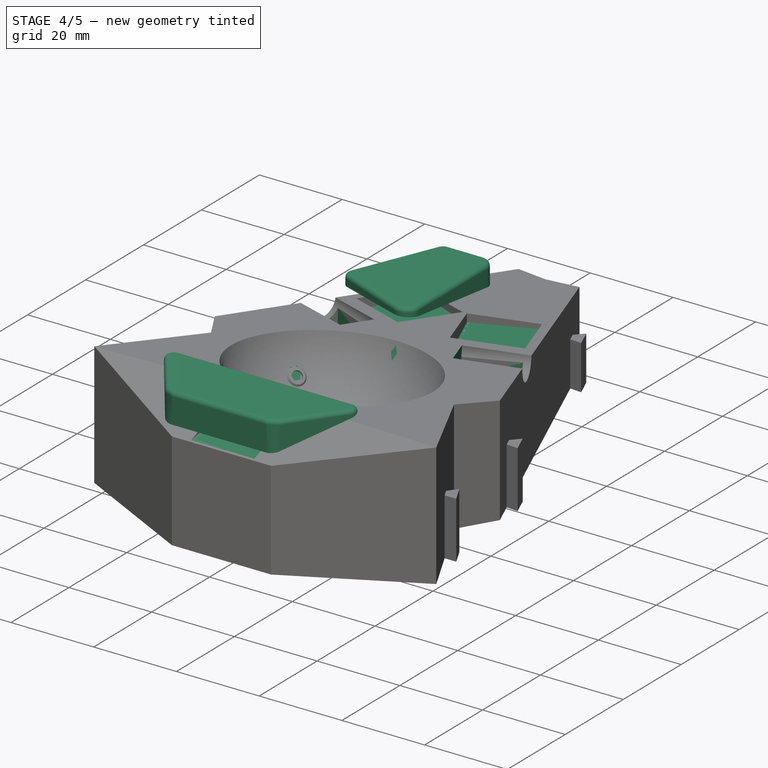
[diagram: stage 4 of 5 — iso view after this stage's code; geometry added in this stage tinted green]
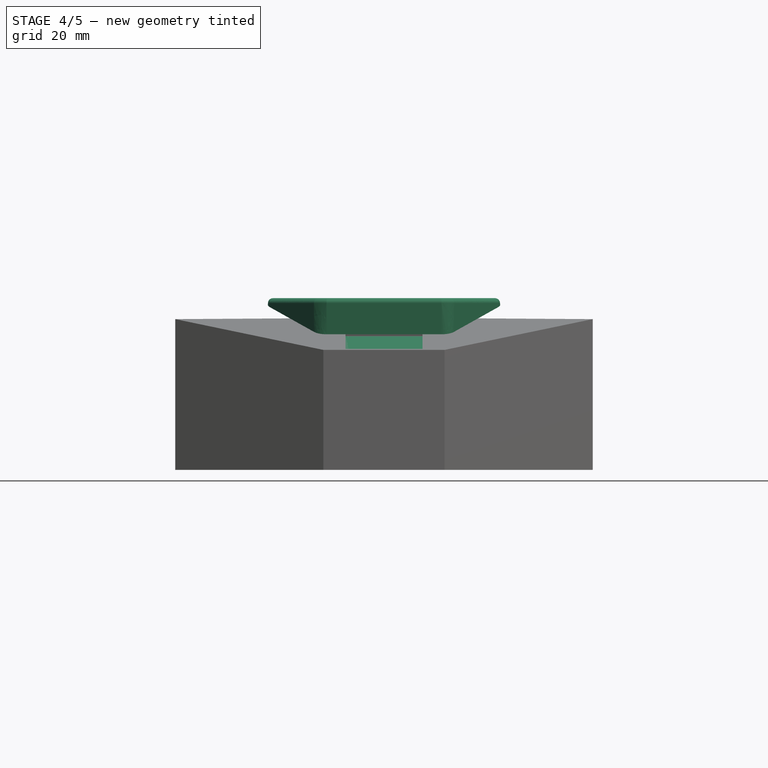
[diagram: stage 4 of 5 — front view after this stage's code; geometry added in this stage tinted green]
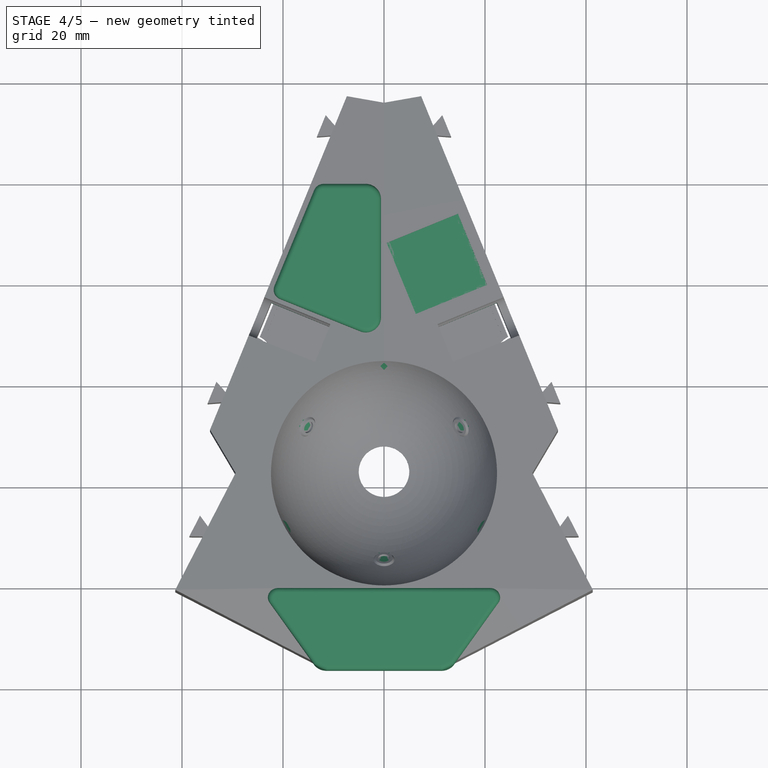
[diagram: stage 4 of 5 — top view after this stage's code; geometry added in this stage tinted green]
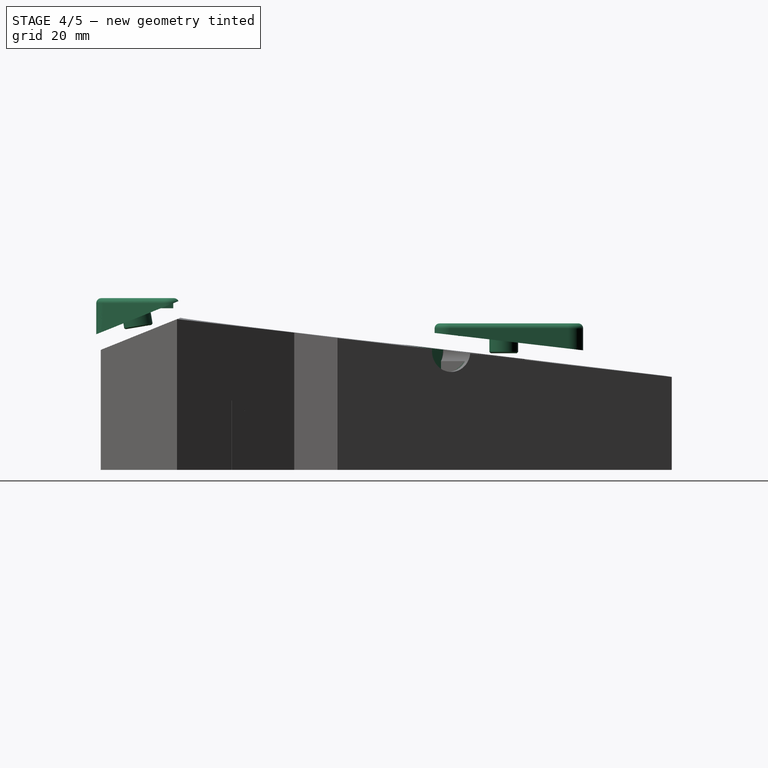
[diagram: stage 4 of 5 — right view after this stage's code; geometry added in this stage tinted green]
FEATURE [Sketcher::SketchObject] Sketch030  label="Hollow Out"
  ArcFitTolerance = 1e-06
  AttachmentSupport = -> [XY_Plane]
  ExternalGeometry = -> [Pocket004]
  FullyConstrained = true
  MakeInternals = false
  MapMode = 5
  sketch-geometry (12):
    g0: LineSegment StartX=-32.6746 StartY=-48.8436 StartZ=0 EndX=-25.5139 EndY=-60.9442 EndZ=0
    g1: LineSegment StartX=-32.6746 StartY=-48.8436 StartZ=0 EndX=-6.36847 EndY=15.4242 EndZ=0
    g2: LineSegment StartX=-6.36847 StartY=15.4242 StartZ=0 EndX=0 EndY=14.3013 EndZ=0
    g3: LineSegment StartX=0 StartY=14.3013 StartZ=0 EndX=6.36847 EndY=15.4242 EndZ=0
    g4: LineSegment StartX=6.36847 StartY=15.4242 StartZ=0 EndX=32.6746 EndY=-48.8436 EndZ=0
    g5: LineSegment StartX=32.6746 StartY=-48.8436 StartZ=0 EndX=25.5139 EndY=-60.9442 EndZ=0
    g6: LineSegment StartX=-35.0633 StartY=-79.4811 StartZ=0 EndX=-12.9714 EndY=-90.8618 EndZ=0
    g7: LineSegment StartX=-12.9714 StartY=-90.8618 StartZ=0 EndX=12.9714 EndY=-90.8618 EndZ=0
    g8: LineSegment StartX=12.9714 StartY=-90.8618 StartZ=0 EndX=35.0633 EndY=-79.4811 EndZ=0
    g9: LineSegment StartX=35.0633 StartY=-79.4811 StartZ=0 EndX=25.5139 EndY=-60.9442 EndZ=0
    g10: LineSegment StartX=-35.0633 StartY=-79.4811 StartZ=0 EndX=-25.5139 EndY=-60.9442 EndZ=0
    g11: Circle CenterX=0 CenterY=-57 CenterZ=0 NormalX=0 NormalY=0 NormalZ=1 AngleXU=0 Radius=25
  constraints (35):
    c: Coincident(g0,g1)
    c: Coincident(g1,g2)
    c: PointOnObject(g2,g-2)
    c: Coincident(g2,g3)
    c: Coincident(g3,g4)
    c: Coincident(g4,g5)
    c: Parallel(g5,g-8)
    c: Distance(g-8,g5) = 1.6
    c: Parallel(g4,g-3)
    c: Parallel(g3,g-6)
    c: Parallel(g2,g-5)
    c: Parallel(g-4,g1)
    c: Parallel(g-7,g0)
    c: Distance(g-7,g0) = 1.6
    c: Distance(g1,g-4) = 1.6
    c: Distance(g-5,g2) = 1.6
    c: Distance(g4,g-3) = 1.6
    c: Coincident(g6,g7)
    c: Horizontal(g7)
    c: Coincident(g7,g8)
    c: Coincident(g8,g9)
    c: Parallel(g10,g-10)
    c: Parallel(g6,g-11)
    c: Parallel(g8,g-13)
    c: Parallel(g9,g-14)
    c: Distance(g-14,g9) = 5
    c: Distance(g-13,g8) = 4
    c: Distance(g-12,g7) = 5
    c: Distance(g-11,g6) = 4
    c: Distance(g-10,g10) = 5
    c: Coincident(g6,g10)
    c: Coincident(g0,g10)
    c: Coincident(g5,g9)
    c: Coincident(g11,g-9)
    c: Equal(g11,g-9)
FEATURE [PartDesign::Pocket] Pocket005
  BaseFeature = -> Pocket004
  Direction = (0,0,-1)
  Length = 17
  Length2 = 5
  Profile = -> Sketch030
  ReferenceAxis = -> Sketch030 [N_Axis]
  Refine = true
  Reversed = true
  Suppressed = false
  Type = 0
FEATURE [Sketcher::SketchObject] Sketch031  label="TRRS Hole Right"
  ArcFitTolerance = 1e-06
  AttachmentSupport = -> [Pocket005]
  ExternalGeometry = -> [Pocket005,Sketch024]
  FullyConstrained = true
  MakeInternals = false
  MapMode = 5
  Placement = pos=(10.8621,4.44607,0) rot=(0.725278,-0.486812,-0.486812;1.88661rad)
  sketch-geometry (7):
    g0: LineSegment [constr] StartX=30.4482 StartY=21.5277 StartZ=0 EndX=38.1481 EndY=23.5061 EndZ=0
    g1: LineSegment StartX=30.4482 StartY=21.5277 StartZ=0 EndX=30.4482 EndY=17 EndZ=0
    g2: LineSegment StartX=30.4482 StartY=17 StartZ=0 EndX=43.6074 EndY=17 EndZ=0
    g3: LineSegment StartX=43.6074 StartY=17 StartZ=0 EndX=38.1481 EndY=23.5061 EndZ=0
    g4: ArcOfCircle CenterX=34.0481 CenterY=23.49 CenterZ=0 NormalX=0 NormalY=0 NormalZ=1 AngleXU=0 Radius=4.1 StartAngle=2.98305 EndAngle=3.64066
    g5: ArcOfCircle CenterX=34.0481 CenterY=23.49 CenterZ=0 NormalX=0 NormalY=0 NormalZ=1 AngleXU=0 Radius=4.1 StartAngle=0.00392808 EndAngle=0.373085
    g6: LineSegment StartX=29.9996 StartY=24.1373 StartZ=0 EndX=37.8661 EndY=24.9844 EndZ=0
  constraints (20):
    c: PointOnObject(g0,g-3)
    c: Coincident(g0,g1)
    c: Coincident(g1,g2)
    c: Horizontal(g2)
    c: Coincident(g2,g3)
    c: Coincident(g3,g0)
    c: PointOnObject(g1,g-4)
    c: Angle(g2,g1) = 1.5708
    c: Angle(g3,g2) = 0.872665
    c: DistanceY(g0,g-6) = 1.6
    c: Coincident(g0,g4)
    c: Coincident(g5,g4)
    c: Coincident(g5,g0)
    c: Coincident(g4,g-5)
    c: PointOnObject(g0,g-5)
    c: Distance(g5,g-6) = 1
    c: Distance(g4,g-6) = 1
    c: Coincident(g6,g4)
    c: Coincident(g6,g5)
    c: Distance(g0,g-6) = 0.5
FEATURE [PartDesign::Pocket] Pocket006
  BaseFeature = -> Pocket005
  Direction = (0.925472,0.378815,0)
  Length = 12.54
  Length2 = 5
  Profile = -> Sketch031
  ReferenceAxis = -> Sketch031 [N_Axis]
  Refine = true
  Reversed = true
  Suppressed = false
  Type = 0
FEATURE [Sketcher::SketchObject] Sketch032  label="TRRS Hole Left"
  ArcFitTolerance = 1e-06
  AttachmentSupport = -> [Pocket006]
  ExternalGeometry = -> [Pocket006]
  FullyConstrained = true
  MakeInternals = false
  MapMode = 5
  Placement = pos=(-10.8621,4.44607,0) rot=(0.725278,0.486812,0.486812;1.88661rad)
  sketch-geometry (6):
    g0: LineSegment StartX=-38.1481 StartY=23.5055 StartZ=0 EndX=-43.6069 EndY=17 EndZ=0
    g1: LineSegment StartX=-43.6069 StartY=17 StartZ=0 EndX=-30.4482 EndY=17 EndZ=0
    g2: LineSegment StartX=-30.4482 StartY=17 StartZ=0 EndX=-30.4482 EndY=21.5277 EndZ=0
    g3: ArcOfCircle CenterX=-34.0481 CenterY=23.49 CenterZ=0 NormalX=0 NormalY=0 NormalZ=1 AngleXU=0 Radius=4.1 StartAngle=2.76298 EndAngle=3.13781
    g4: ArcOfCircle CenterX=-34.0481 CenterY=23.49 CenterZ=0 NormalX=0 NormalY=0 NormalZ=1 AngleXU=0 Radius=4.1 StartAngle=5.78412 EndAngle=6.43936
    g5: LineSegment StartX=-37.8578 StartY=25.0055 StartZ=0 EndX=-29.998 EndY=24.1277 EndZ=0
  constraints (18):
    c: PointOnObject(g0,g-3)
    c: Coincident(g0,g1)
    c: PointOnObject(g1,g-3)
    c: Coincident(g1,g2)
    c: Vertical(g2)
    c: Angle(g1,g0) = 0.872665
    c: Coincident(g3,g-4)
    c: Coincident(g4,g3)
    c: Coincident(g5,g3)
    c: Coincident(g5,g4)
    c: DistanceY(g2,g-5) = 1.6
    c: DistanceY(g0,g-5) = 0.5
    c: DistanceY(g-5,g3) = 1
    c: Coincident(g0,g3)
    c: PointOnObject(g0,g-4)
    c: Coincident(g4,g2)
    c: PointOnObject(g2,g-4)
    c: DistanceY(g-5,g4) = 1
FEATURE [PartDesign::Pocket] Pocket007
  BaseFeature = -> Pocket006
  Direction = (-0.925472,0.378815,0)
  Length = 12.54
  Length2 = 5
  Profile = -> Sketch032
  ReferenceAxis = -> Sketch032 [N_Axis]
  Refine = true
  Reversed = true
  Suppressed = false
  Type = 0
FEATURE [Sketcher::SketchObject] Sketch033  label="MiddleKeysCutout"
  ArcFitTolerance = 1e-06
  AttachmentOffset = pos=(0,0,20) rot=(0,0,1;0rad)
  AttachmentSupport = -> [XY_Plane]
  ExternalGeometry = -> [Pocket007]
  FullyConstrained = true
  MakeInternals = false
  MapMode = 5
  Placement = pos=(0,0,20) rot=(0,0,1;0rad)
  sketch-geometry (8):
    g0: LineSegment StartX=-14.6414 StartY=-6.10699 StartZ=0 EndX=-0.527932 EndY=-11.8839 EndZ=0
    g1: LineSegment StartX=-0.527932 StartY=-11.8839 StartZ=0 EndX=-6.30487 EndY=-25.9974 EndZ=0
    g2: LineSegment StartX=-6.30487 StartY=-25.9974 StartZ=0 EndX=-20.4183 EndY=-20.2204 EndZ=0
    g3: LineSegment StartX=-20.4183 StartY=-20.2204 StartZ=0 EndX=-14.6414 EndY=-6.10699 EndZ=0
    g4: LineSegment StartX=0.527932 StartY=-11.8839 StartZ=0 EndX=14.6414 EndY=-6.10699 EndZ=0
    g5: LineSegment StartX=14.6414 StartY=-6.10699 StartZ=0 EndX=20.4183 EndY=-20.2204 EndZ=0
    g6: LineSegment StartX=20.4183 StartY=-20.2204 StartZ=0 EndX=6.30487 EndY=-25.9974 EndZ=0
    g7: LineSegment StartX=6.30487 StartY=-25.9974 StartZ=0 EndX=0.527932 EndY=-11.8839 EndZ=0
  constraints (24):
    c: Coincident(g0,g1)
    c: Coincident(g1,g2)
    c: Coincident(g2,g3)
    c: Coincident(g3,g0)
    c: Parallel(g0,g2)
    c: Perpendicular(g2,g1)
    c: Distance(g0,g0) = 15.25
    c: Distance(g3,g3) = 15.25
    c: Coincident(g4,g5)
    c: Coincident(g5,g6)
    c: Coincident(g6,g7)
    c: Coincident(g7,g4)
    c: Parallel(g7,g5)
    c: Parallel(g6,g4)
    c: Distance(g4,g4) = 15.25
    c: Distance(g4,g6) = 15.25
    c: Parallel(g3,g1)
    c: Perpendicular(g6,g7)
    c: Parallel(g5,g-3)
    c: Parallel(g3,g-4)
    c: Distance(g-4,g3) = 0.5
    c: Distance(g2,g-6) = 4
    c: Distance(g-3,g5) = 0.5
    c: Distance(g-5,g6) = 4
FEATURE [PartDesign::Pocket] Pocket008
  BaseFeature = -> Pocket007
  Direction = (0,0,-1)
  Length = 5
  Length2 = 5
  Profile = -> Sketch033
  ReferenceAxis = -> Sketch033 [N_Axis]
  Refine = true
  Reversed = true
  Suppressed = false
  Type = 0
FEATURE [PartDesign::ShapeBinder] ShapeBinder002
  TraceSupport = false
FEATURE [PartDesign::SubShapeBinder] Binder
  BindCopyOnChange = 0
  BindMode = 0
  ClaimChildren = false
  Context = -> Body006 [Binder.Face1]
  Fuse = false
  MakeFace = true
  OffsetFill = false
  OffsetIntersection = false
  OffsetJoinType = 0
  OffsetOpenResult = false
  PartialLoad = false
  Refine = true
  Relative = true
  Support = -> [ShapeBinder002]
  _Version = 2
FEATURE [PartDesign::ShapeBinder] CopyChamfer
  TraceSupport = false
FEATURE [Sketcher::SketchObject] Sketch079
  ArcFitTolerance = 1e-06
  AttachmentOffset = pos=(0,0,3.2) rot=(0,0,1;0rad)
  AttachmentSupport = -> [CopyChamfer]
  ExternalGeometry = -> [CopyChamfer]
  FullyConstrained = true
  MakeInternals = false
  MapMode = 5
  Placement = pos=(-6.9e-15,-22.8587,56.6564) rot=(1,0,0;0.383487rad)
  sketch-geometry (12):
    g0: LineSegment StartX=22.6625 StartY=-65.2253 StartZ=0 EndX=13.891 EndY=-78.3422 EndZ=0
    g1: LineSegment StartX=11.3972 StartY=-79.6746 StartZ=0 EndX=-11.3972 EndY=-79.6746 EndZ=0
    g2: LineSegment StartX=-13.891 StartY=-78.3422 StartZ=0 EndX=-22.6625 EndY=-65.2253 EndZ=0
    g3: ArcOfCircle CenterX=-11.3972 CenterY=-76.6746 CenterZ=0 NormalX=0 NormalY=0 NormalZ=1 AngleXU=0 Radius=3 StartAngle=3.73102 EndAngle=4.71239
    g4: GeomPoint [constr] X=-13 Y=-79.6746 Z=0
    g5: ArcOfCircle CenterX=11.3972 CenterY=-76.6746 CenterZ=0 NormalX=0 NormalY=0 NormalZ=1 AngleXU=0 Radius=3 StartAngle=4.71239 EndAngle=5.69376
    g6: GeomPoint [constr] X=13 Y=-79.6746 Z=0
    g7: ArcOfCircle CenterX=21 CenterY=-64.1135 CenterZ=0 NormalX=0 NormalY=0 NormalZ=1 AngleXU=0 Radius=2 StartAngle=5.69376 EndAngle=7.85398
    g8: GeomPoint [constr] X=23.6735 Y=-63.7135 Z=0
    g9: ArcOfCircle CenterX=-21 CenterY=-64.1135 CenterZ=0 NormalX=0 NormalY=0 NormalZ=1 AngleXU=0 Radius=2 StartAngle=1.5708 EndAngle=3.73102
    g10: GeomPoint [constr] X=-23.6735 Y=-63.7135 Z=0
    g11: LineSegment StartX=-21 StartY=-62.1135 StartZ=0 EndX=21 EndY=-62.1135 EndZ=0
  constraints (29):
    c: PointOnObject(g10,g-3)
    c: Symmetric(g10,g8,g-2)
    c: PointOnObject(g6,g-4)
    c: Symmetric(g6,g4,g-2)
    c: DistanceX(g4,g6) = 26
    c: PointOnObject(g4,g1)
    c: PointOnObject(g4,g2)
    c: Tangent(g1,g3) = 1.5708
    c: Tangent(g2,g3) = 1.5708
    c: PointOnObject(g6,g0)
    c: PointOnObject(g6,g1)
    c: Tangent(g0,g5) = 1.5708
    c: Tangent(g1,g5) = 1.5708
    c: PointOnObject(g8,g0)
    c: Tangent(g0,g7) = 1.5708
    c: PointOnObject(g10,g2)
    c: Tangent(g2,g9) = 1.5708
    c: Radius(g9) = 2
    c: Radius(g7) = 2
    c: Radius(g5) = 3
    c: Radius(g3) = 3
    c: Coincident(g11,g9)
    c: Coincident(g11,g7)
    c: Horizontal(g11)
    c: Distance(g-3,g-3) = 81.2227
    c: Distance(g11,g-3) = 1.6
    c: Vertical(g9,g9)
    c: Vertical(g7,g7)
    c: DistanceX(g11,g11) = 42
FEATURE [Sketcher::SketchObject] Sketch080
  ArcFitTolerance = 1e-06
  AttachmentOffset = pos=(0,0,34) rot=(0,0,1;0rad)
  AttachmentSupport = -> [XY_Plane002]
  ExternalGeometry = -> [Sketch079]
  FullyConstrained = true
  MakeInternals = false
  MapMode = 5
  Placement = pos=(0,0,34) rot=(0,0,1;0rad)
  sketch-geometry (8):
    g0: LineSegment StartX=-21 StartY=-80.4607 StartZ=0 EndX=21 EndY=-80.4607 EndZ=0
    g1: LineSegment StartX=22.6625 StartY=-83.3464 StartZ=0 EndX=13.891 EndY=-95.5106 EndZ=0
    g2: LineSegment StartX=11.3972 StartY=-96.7462 StartZ=0 EndX=-11.3972 EndY=-96.7462 EndZ=0
    g3: LineSegment StartX=-13.891 StartY=-95.5106 StartZ=0 EndX=-22.6625 EndY=-83.3464 EndZ=0
    g4: ArcOfCircle CenterX=-21 CenterY=-82.3824 CenterZ=0 NormalX=0 NormalY=0 NormalZ=1 AngleXU=0 Radius=1.92177 StartAngle=1.5708 EndAngle=3.66704
    g5: ArcOfCircle CenterX=21 CenterY=-82.3824 CenterZ=0 NormalX=0 NormalY=0 NormalZ=1 AngleXU=0 Radius=1.92177 StartAngle=5.75774 EndAngle=7.85398
    g6: ArcOfCircle CenterX=5.56765 CenterY=-81.846 CenterZ=0 NormalX=0 NormalY=0 NormalZ=1 AngleXU=0 Radius=16 StartAngle=5.08532 EndAngle=5.25948
    g7: ArcOfCircle CenterX=-5.56765 CenterY=-81.846 CenterZ=0 NormalX=0 NormalY=0 NormalZ=1 AngleXU=0 Radius=16 StartAngle=4.16529 EndAngle=4.33946
  constraints (20):
    c: Coincident(g3,g-4)
    c: Coincident(g7,g3)
    c: Coincident(g3,g-4)
    c: Coincident(g4,g3)
    c: Vertical(g-6,g4)
    c: Coincident(g0,g-6)
    c: Coincident(g4,g0)
    c: Coincident(g0,g-6)
    c: Coincident(g5,g0)
    c: Vertical(g5,g0)
    c: Coincident(g5,g-5)
    c: Coincident(g1,g5)
    c: Coincident(g1,g-5)
    c: Coincident(g6,g1)
    c: Coincident(g2,g-3)
    c: Coincident(g6,g2)
    c: Coincident(g2,g-3)
    c: Coincident(g7,g2)
    c: Radius(g7) = 16
    c: Radius(g6) = 16
FEATURE [PartDesign::AdditiveLoft] AdditiveLoft001
  Closed = false
  Profile = -> Sketch080
  Refine = true
  Ruled = false
  Sections = -> [Sketch079]
  Suppressed = false
FEATURE [Sketcher::SketchObject] Sketch085
  ArcFitTolerance = 1e-06
  AttachmentOffset = pos=(0,0,-1) rot=(0,0,1;0rad)
  AttachmentSupport = -> [AdditiveLoft001]
  FullyConstrained = true
  MakeInternals = false
  MapMode = 5
  Placement = pos=(0,0,33) rot=(0,0,1;0rad)
  sketch-geometry (5):
    g0: LineSegment StartX=-7 StartY=-95.36 StartZ=0 EndX=7 EndY=-95.36 EndZ=0
    g1: LineSegment StartX=7 StartY=-95.36 StartZ=0 EndX=7 EndY=-81.36 EndZ=0
    g2: LineSegment StartX=7 StartY=-81.36 StartZ=0 EndX=-7 EndY=-81.36 EndZ=0
    g3: LineSegment StartX=-7 StartY=-81.36 StartZ=0 EndX=-7 EndY=-95.36 EndZ=0
    g4: GeomPoint [constr] X=0 Y=-88.36 Z=0
  constraints (12):
    c: Coincident(g0,g1)
    c: Coincident(g1,g2)
    c: Coincident(g2,g3)
    c: Coincident(g3,g0)
    c: Horizontal(g0)
    c: Horizontal(g2)
    c: Vertical(g1)
    c: Vertical(g3)
    c: Symmetric(g2,g0,g4)
    c: Distance(g1,g3) = 14
    c: Distance(g0,g2) = 14
    c: Coincident(g4,g-3)
FEATURE [Sketcher::SketchObject] Sketch078
  ArcFitTolerance = 1e-06
  AttachmentOffset = pos=(0,0,3.1) rot=(0,0,1;0rad)
  AttachmentSupport = -> [Binder]
  ExternalGeometry = -> [Binder,ShapeBinder002]
  FullyConstrained = true
  MakeInternals = false
  MapMode = 5
  Placement = pos=(0,-7.0907,41.9998) rot=(1,0,0;0.16725rad)
  sketch-geometry (13):
    g0: Circle CenterX=3.2e-15 CenterY=-82.4193 CenterZ=0 NormalX=0 NormalY=0 NormalZ=1 AngleXU=0 Radius=2.85
    g1: LineSegment StartX=-0.6 StartY=-81.8193 StartZ=0 EndX=-0.6 EndY=-80.3193 EndZ=0
    g2: LineSegment StartX=-0.6 StartY=-80.3193 StartZ=0 EndX=0.6 EndY=-80.3193 EndZ=0
    g3: LineSegment StartX=0.6 StartY=-80.3193 StartZ=0 EndX=0.6 EndY=-81.8193 EndZ=0
    g4: LineSegment StartX=0.6 StartY=-81.8193 StartZ=0 EndX=2.1 EndY=-81.8193 EndZ=0
    g5: LineSegment StartX=2.1 StartY=-81.8193 StartZ=0 EndX=2.1 EndY=-83.0193 EndZ=0
    g6: LineSegment StartX=2.1 StartY=-83.0193 StartZ=0 EndX=0.6 EndY=-83.0193 EndZ=0
    g7: LineSegment StartX=0.6 StartY=-83.0193 StartZ=0 EndX=0.6 EndY=-84.5193 EndZ=0
    g8: LineSegment StartX=0.6 StartY=-84.5193 StartZ=0 EndX=-0.6 EndY=-84.5193 EndZ=0
    g9: LineSegment StartX=-0.6 StartY=-84.5193 StartZ=0 EndX=-0.6 EndY=-83.0193 EndZ=0
    g10: LineSegment StartX=-0.6 StartY=-83.0193 StartZ=0 EndX=-2.1 EndY=-83.0193 EndZ=0
    g11: LineSegment StartX=-2.1 StartY=-83.0193 StartZ=0 EndX=-2.1 EndY=-81.8193 EndZ=0
    g12: LineSegment StartX=-2.1 StartY=-81.8193 StartZ=0 EndX=-0.6 EndY=-81.8193 EndZ=0
  constraints (36):
    c: Diameter(g0) = 5.7
    c: Symmetric(g-4,g-3,g0)
    c: Coincident(g1,g2)
    c: Coincident(g2,g3)
    c: Coincident(g3,g4)
    c: Coincident(g4,g5)
    c: Coincident(g5,g6)
    c: Coincident(g6,g7)
    c: Coincident(g7,g8)
    c: Coincident(g8,g9)
    c: Coincident(g9,g10)
    c: Coincident(g10,g11)
    c: Vertical(g11)
    c: Coincident(g11,g12)
    c: Coincident(g12,g1)
    c: Vertical(g1)
    c: Vertical(g3)
    c: Vertical(g5)
    c: Vertical(g7)
    c: Vertical(g9)
    c: Horizontal(g8)
    c: Horizontal(g6)
    c: Horizontal(g10)
    c: Horizontal(g12)
    c: Horizontal(g4)
    c: Horizontal(g2)
    c: DistanceX(g2,g2) = 1.2
    c: Distance(g5,g5) = 1.2
    c: Distance(g11,g11) = 1.2
    c: Distance(g8,g8) = 1.2
    c: Distance(g2,g8) = 4.2
    c: Distance(g11,g5) = 4.2
    c: Equal(g3,g9)
    c: Symmetric(g4,g11,g-2)
    c: Vertical(g3,g6)
    c: Symmetric(g6,g1,g0)
FEATURE [PartDesign::Pocket] Pocket033
  BaseFeature = -> AdditiveLoft001
  Direction = (0,0,-1)
  Length = 5
  Length2 = 5
  Profile = -> Sketch085
  ReferenceAxis = -> Sketch085 [N_Axis]
  Refine = true
  Suppressed = false
  Type = 1
FEATURE [PartDesign::Fillet] Fillet012
  Base = -> Pocket033 [Face1]
  BaseFeature = -> Pocket033
  Radius = 1
  Refine = true
  SupportTransform = false
  Suppressed = false
  UseAllEdges = false
FEATURE [PartDesign::Chamfer] Chamfer001
  Angle = 45
  Base = -> Fillet012 [Edge49,Edge50]
  BaseFeature = -> Fillet012
  ChamferType = 0
  FlipDirection = false
  Refine = true
  Size = 0.5
  Size2 = 1
  SupportTransform = false
  Suppressed = false
  UseAllEdges = false
FEATURE [PartDesign::Pad] Pad017
  BaseFeature = -> Chamfer001
  Direction = (0,-0.166471,0.986046)
  Length = 10
  Length2 = 10
  Profile = -> Sketch078
  ReferenceAxis = -> Sketch078 [N_Axis]
  Refine = true
  Suppressed = false
  Type = 5
FEATURE [PartDesign::Chamfer] Chamfer002
  Angle = 45
  Base = -> Pad017 [Face27]
  BaseFeature = -> Pad017
  ChamferType = 0
  FlipDirection = false
  Refine = true
  Size = 0.25
  Size2 = 1
  SupportTransform = false
  Suppressed = false
  UseAllEdges = false
FEATURE [PartDesign::Fillet] Fillet013
  Base = -> Chamfer002 [Edge3]
  BaseFeature = -> Chamfer002
  Radius = 1
  Refine = true
  SupportTransform = false
  Suppressed = false
  UseAllEdges = false
FEATURE [Sketcher::SketchObject] Sketch087
  ArcFitTolerance = 1e-06
  AttachmentSupport = -> [Fillet013]
  ExternalGeometry = -> [Fillet013]
  FullyConstrained = true
  MakeInternals = false
  MapMode = 5
  Placement = pos=(0,0,33) rot=(1,0,0;3.14159rad)
  sketch-geometry (22):
    g0: Circle CenterX=0 CenterY=88.99 CenterZ=0 NormalX=0 NormalY=0 NormalZ=1 AngleXU=0 Radius=4
    g1: Circle CenterX=0 CenterY=88.99 CenterZ=0 NormalX=0 NormalY=0 NormalZ=1 AngleXU=0 Radius=4.5
    g2: Circle CenterX=0 CenterY=88.99 CenterZ=0 NormalX=0 NormalY=0 NormalZ=1 AngleXU=0 Radius=5
    g3: Circle CenterX=0 CenterY=88.99 CenterZ=0 NormalX=0 NormalY=0 NormalZ=1 AngleXU=0 Radius=5.5
    g4: Circle CenterX=0 CenterY=88.99 CenterZ=0 NormalX=0 NormalY=0 NormalZ=1 AngleXU=0 Radius=6
    g5: Circle CenterX=0 CenterY=88.99 CenterZ=0 NormalX=0 NormalY=0 NormalZ=1 AngleXU=0 Radius=6.5
    g6: Circle CenterX=0 CenterY=88.99 CenterZ=0 NormalX=0 NormalY=0 NormalZ=1 AngleXU=0 Radius=7
    g7: Circle CenterX=0 CenterY=88.99 CenterZ=0 NormalX=0 NormalY=0 NormalZ=1 AngleXU=0 Radius=7.5
    g8: ArcOfCircle CenterX=0 CenterY=88.99 CenterZ=0 NormalX=0 NormalY=0 NormalZ=1 AngleXU=0 Radius=8 StartAngle=2.22052 EndAngle=2.63623
    g9: ArcOfCircle CenterX=0 CenterY=88.99 CenterZ=0 NormalX=0 NormalY=0 NormalZ=1 AngleXU=0 Radius=8 StartAngle=0.505361 EndAngle=0.921071
    g10: ArcOfCircle CenterX=0 CenterY=88.99 CenterZ=0 NormalX=0 NormalY=0 NormalZ=1 AngleXU=0 Radius=8 StartAngle=5.06864 EndAngle=5.77782
    g11: ArcOfCircle CenterX=0 CenterY=88.99 CenterZ=0 NormalX=0 NormalY=0 NormalZ=1 AngleXU=0 Radius=8 StartAngle=3.64695 EndAngle=4.35613
    g12: LineSegment StartX=-7 StartY=92.863 StartZ=0 EndX=-7 EndY=94.86 EndZ=0
    g13: LineSegment StartX=-7 StartY=94.86 StartZ=0 EndX=-6.5 EndY=95.36 EndZ=0
    g14: LineSegment StartX=-6.5 StartY=95.36 StartZ=0 EndX=-4.83974 EndY=95.36 EndZ=0
    g15: LineSegment StartX=4.83974 StartY=95.36 StartZ=0 EndX=6.5 EndY=95.36 EndZ=0
    g16: LineSegment StartX=6.5 StartY=95.36 StartZ=0 EndX=7 EndY=94.86 EndZ=0
    g17: LineSegment StartX=7 StartY=94.86 StartZ=0 EndX=7 EndY=92.863 EndZ=0
    g18: LineSegment StartX=2.79013 StartY=81.4923 StartZ=0 EndX=7 EndY=81.4923 EndZ=0
    g19: LineSegment StartX=7 StartY=81.4923 StartZ=0 EndX=7 EndY=85.117 EndZ=0
    g20: LineSegment StartX=-7 StartY=85.117 StartZ=0 EndX=-7 EndY=81.4923 EndZ=0
    g21: LineSegment StartX=-7 StartY=81.4923 StartZ=0 EndX=-2.79013 EndY=81.4923 EndZ=0
  constraints (53):
    c: Diameter(g0) = 8
    c: PointOnObject(g0,g-2)
    c: Diameter(g1) = 9
    c: Coincident(g1,g0)
    c: Diameter(g2) = 10
    c: Coincident(g2,g0)
    c: Diameter(g3) = 11
    c: Coincident(g3,g0)
    c: Diameter(g4) = 12
    c: Coincident(g4,g0)
    c: Diameter(g5) = 13
    c: Coincident(g5,g0)
    c: Diameter(g6) = 14
    c: Coincident(g6,g0)
    c: Diameter(g7) = 15
    c: Coincident(g7,g0)
    c: Distance(g0,g-3) = 6.37
    c: Radius(g8) = 8
    c: Coincident(g8,g0)
    c: PointOnObject(g8,g-4)
    c: PointOnObject(g8,g-3)
    c: Radius(g9) = 8
    c: Coincident(g9,g0)
    c: PointOnObject(g9,g-3)
    c: PointOnObject(g9,g-5)
    c: Radius(g10) = 8
    c: Coincident(g10,g0)
    c: PointOnObject(g10,g-5)
    c: Radius(g11) = 8
    c: Coincident(g11,g0)
    c: PointOnObject(g11,g-4)
    c: PointOnObject(g11,g-6)
    c: PointOnObject(g10,g-6)
    c: Coincident(g8,g12)
    c: Coincident(g12,g13)
    c: Coincident(g13,g-3)
    c: Coincident(g13,g14)
    c: Coincident(g14,g8)
    c: Coincident(g12,g-4)
    c: Coincident(g9,g15)
    c: Coincident(g15,g16)
    c: Coincident(g16,g-5)
    c: Coincident(g16,g17)
    c: Coincident(g17,g9)
    c: Coincident(g-3,g15)
    c: Coincident(g10,g18)
    c: Coincident(g18,g19)
    c: Coincident(g19,g10)
    c: Coincident(g18,g-6)
    c: Coincident(g11,g20)
    c: Coincident(g20,g21)
    c: Coincident(g21,g11)
    c: Coincident(g20,g-6)
FEATURE [PartDesign::Pad] Pad018
  BaseFeature = -> Fillet013
  Direction = (0,0,-1)
  Length = 1
  Length2 = 10
  Profile = -> Sketch087
  ReferenceAxis = -> Sketch087 [N_Axis]
  Refine = true
  Suppressed = false
  Type = 0
FEATURE [Sketcher::SketchObject] Sketch089
  ArcFitTolerance = 1e-06
  AttachmentSupport = -> [Fillet015]
  ExternalGeometry = -> [Fillet015]
  FullyConstrained = true
  MakeInternals = false
  MapMode = 5
  Placement = pos=(0,0,28) rot=(1,0,0;3.14159rad)
  sketch-geometry (26):
    g0: Circle CenterX=10.4731 CenterY=16.0522 CenterZ=0 NormalX=0 NormalY=0 NormalZ=1 AngleXU=0 Radius=3.85
    g1: Circle CenterX=10.4731 CenterY=16.0522 CenterZ=0 NormalX=0 NormalY=0 NormalZ=1 AngleXU=0 Radius=4.5
    g2: Circle CenterX=10.4731 CenterY=16.0522 CenterZ=0 NormalX=0 NormalY=0 NormalZ=1 AngleXU=0 Radius=5
    g3: Circle CenterX=10.4731 CenterY=16.0522 CenterZ=0 NormalX=0 NormalY=0 NormalZ=1 AngleXU=0 Radius=5.5
    g4: Circle CenterX=10.4731 CenterY=16.0522 CenterZ=0 NormalX=0 NormalY=0 NormalZ=1 AngleXU=0 Radius=6
    g5: Circle CenterX=10.4731 CenterY=16.0522 CenterZ=0 NormalX=0 NormalY=0 NormalZ=1 AngleXU=0 Radius=6.5
    g6: Circle CenterX=10.4731 CenterY=16.0522 CenterZ=0 NormalX=0 NormalY=0 NormalZ=1 AngleXU=0 Radius=7.5
    g7: Circle CenterX=10.4731 CenterY=16.0522 CenterZ=0 NormalX=0 NormalY=0 NormalZ=1 AngleXU=0 Radius=8
    g8: ArcOfCircle CenterX=10.4731 CenterY=16.0522 CenterZ=0 NormalX=0 NormalY=0 NormalZ=1 AngleXU=0 Radius=9 StartAngle=1.85752 EndAngle=2.07783
    g9: ArcOfCircle CenterX=10.4731 CenterY=16.0522 CenterZ=0 NormalX=0 NormalY=0 NormalZ=1 AngleXU=0 Radius=9 StartAngle=0.286726 EndAngle=0.507038
    g10: ArcOfCircle CenterX=10.4731 CenterY=16.0522 CenterZ=0 NormalX=0 NormalY=0 NormalZ=1 AngleXU=0 Radius=9 StartAngle=4.88394 EndAngle=5.21943
    g11: ArcOfCircle CenterX=10.4731 CenterY=16.0522 CenterZ=0 NormalX=0 NormalY=0 NormalZ=1 AngleXU=0 Radius=9 StartAngle=3.42832 EndAngle=3.76381
    g12: LineSegment StartX=1.84055 StartY=13.5069 StartZ=0 EndX=1.27262 EndY=12.1194 EndZ=0
    g13: LineSegment StartX=1.27262 StartY=12.1194 StartZ=0 EndX=1.54595 EndY=11.4672 EndZ=0
    g14: LineSegment StartX=1.54595 StartY=11.4672 StartZ=0 EndX=3.15984 EndY=10.8066 EndZ=0
    g15: LineSegment StartX=6.10281 StartY=23.9199 StartZ=0 EndX=6.44345 EndY=24.7521 EndZ=0
    g16: LineSegment StartX=6.44345 StartY=24.7521 StartZ=0 EndX=7.0956 EndY=25.0254 EndZ=0
    g17: LineSegment StartX=7.0956 StartY=25.0254 StartZ=0 EndX=7.9278 EndY=24.6848 EndZ=0
    g18: LineSegment StartX=18.3408 StartY=20.4225 StartZ=0 EndX=19.173 EndY=20.0819 EndZ=0
    g19: LineSegment StartX=19.173 StartY=20.0819 StartZ=0 EndX=19.4463 EndY=19.4297 EndZ=0
    g20: LineSegment StartX=19.4463 StartY=19.4297 StartZ=0 EndX=19.1057 EndY=18.5975 EndZ=0
    g21: LineSegment StartX=12.0095 StartY=7.18428 StartZ=0 EndX=13.6234 EndY=6.52369 EndZ=0
    g22: LineSegment StartX=13.6234 StartY=6.52369 StartZ=0 EndX=14.2755 EndY=6.79702 EndZ=0
    g23: LineSegment StartX=14.2755 StartY=6.79702 StartZ=0 EndX=14.8434 EndY=8.1845 EndZ=0
    g24: Circle CenterX=10.4731 CenterY=16.0522 CenterZ=0 NormalX=0 NormalY=0 NormalZ=1 AngleXU=0 Radius=8.5
    g25: Circle CenterX=10.4731 CenterY=16.0522 CenterZ=0 NormalX=0 NormalY=0 NormalZ=1 AngleXU=0 Radius=7.025
  constraints (60):
    c: Coincident(g0,g-3)
    c: Equal(g0,g-3)
    c: Diameter(g1) = 9
    c: Coincident(g1,g0)
    c: Diameter(g2) = 10
    c: Coincident(g2,g0)
    c: Diameter(g3) = 11
    c: Coincident(g3,g0)
    c: Diameter(g4) = 12
    c: Coincident(g4,g0)
    c: Diameter(g5) = 13
    c: Coincident(g5,g0)
    c: Diameter(g6) = 15
    c: Coincident(g6,g0)
    c: Diameter(g7) = 16
    c: Coincident(g7,g0)
    c: Radius(g8) = 9
    c: Coincident(g8,g0)
    c: PointOnObject(g8,g-4)
    c: PointOnObject(g8,g-5)
    c: Radius(g9) = 9
    c: Coincident(g9,g0)
    c: PointOnObject(g9,g-5)
    c: PointOnObject(g9,g-6)
    c: Radius(g10) = 9
    c: Coincident(g10,g0)
    c: PointOnObject(g10,g-6)
    c: PointOnObject(g10,g-7)
    c: Radius(g11) = 9
    c: Coincident(g11,g0)
    c: PointOnObject(g11,g-7)
    c: PointOnObject(g11,g-4)
    c: Coincident(g11,g12)
    c: Coincident(g12,g13)
    c: Coincident(g13,g14)
    c: Coincident(g14,g11)
    c: Coincident(g13,g-7)
    c: Coincident(g12,g-4)
    c: Coincident(g8,g15)
    c: Coincident(g15,g16)
    c: Coincident(g16,g-5)
    c: Coincident(g16,g17)
    c: Coincident(g17,g8)
    c: Coincident(g-4,g15)
    c: Coincident(g9,g18)
    c: Coincident(g18,g19)
    c: Coincident(g19,g-6)
    c: Coincident(g19,g20)
    c: Coincident(g20,g9)
    c: Coincident(g-5,g18)
    c: Coincident(g10,g21)
    c: Coincident(g21,g22)
    c: Coincident(g22,g-6)
    c: Coincident(g22,g23)
    c: Coincident(g23,g10)
    c: Coincident(g-7,g21)
    c: Diameter(g24) = 17
    c: Coincident(g24,g0)
    c: Coincident(g25,g0)
    c: Tangent(g25,g-6)
FEATURE [PartDesign::Pad] Pad020
  BaseFeature = -> Fillet015
  Direction = (0,0,-1)
  Length = 1.5
  Length2 = 10
  Profile = -> Sketch089
  ReferenceAxis = -> Sketch089 [N_Axis]
  Refine = true
  Suppressed = false
  Type = 0
FEATURE [PartDesign::Body] Body007  label="Rear Keycap"
  AllowCompound = false
  Group = -> [ShapeBinder003,Sketch082,Sketch083,Sketch084,AdditiveLoft002,Sketch088,Pocket034,Fillet014,Chamfer003,Pad019,Chamfer004,Fillet015,Sketch089,Pad020]
  Origin = -> Origin003
  Tip = -> Pad020
FEATURE [Part::Mirroring] Part__Mirroring  label="Rear Keycap (Mirror #1)"
  Base = (0,0,0)
  Normal = (1,0,0)
  Source = -> Body007
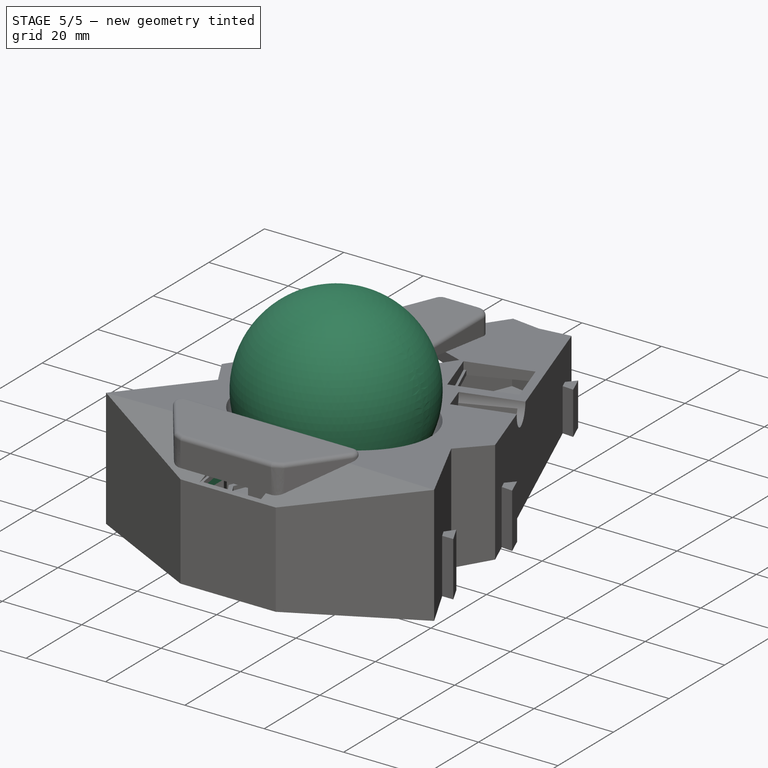
[diagram: stage 5 of 5 — iso view after this stage's code; geometry added in this stage tinted green]
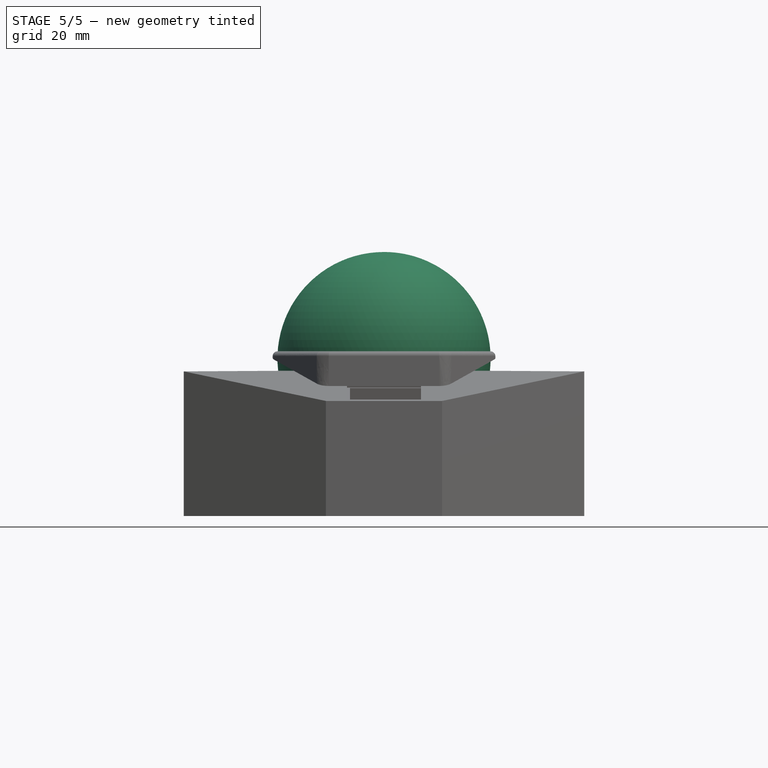
[diagram: stage 5 of 5 — front view after this stage's code; geometry added in this stage tinted green]
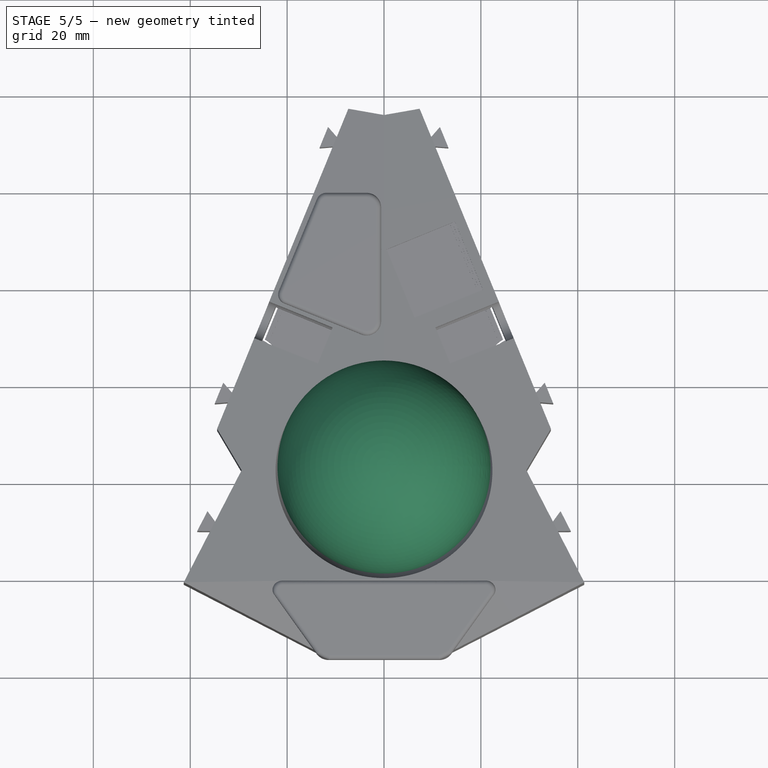
[diagram: stage 5 of 5 — top view after this stage's code; geometry added in this stage tinted green]
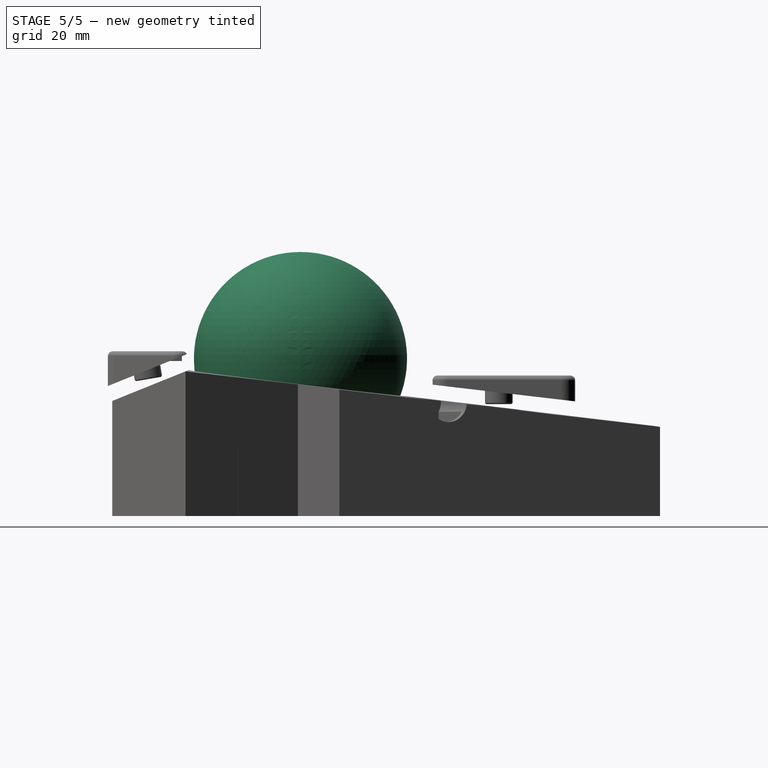
[diagram: stage 5 of 5 — right view after this stage's code; geometry added in this stage tinted green]
FEATURE [Sketcher::SketchObject] Sketch021  label="Right Board"
  ArcFitTolerance = 1e-06
  AttachmentOffset = pos=(-6.74,0,0) rot=(0,0,1;0.122173rad)
  AttachmentSupport = -> [XY_Plane]
  FullyConstrained = true
  MakeInternals = false
  MapMode = 5
  Placement = pos=(-6.74,0,0) rot=(0,0,1;0.122173rad)
  sketch-geometry (35):
    g0: LineSegment StartX=16.2394 StartY=15.4165 StartZ=0 EndX=17.8054 EndY=9.6763 EndZ=0
    g1: LineSegment StartX=17.8054 StartY=9.6763 StartZ=0 EndX=19.8883 EndY=11.5402 EndZ=0
    g2: LineSegment StartX=19.8883 StartY=11.5402 StartZ=0 EndX=21.2306 EndY=6.62006 EndZ=0
    g3: LineSegment StartX=21.2306 StartY=6.62006 StartZ=0 EndX=18.4898 EndY=7.16798 EndZ=0
    g4: LineSegment StartX=18.4898 StartY=7.16798 StartZ=0 EndX=32.8352 EndY=-45.4133 EndZ=0
    g5: LineSegment StartX=32.8352 StartY=-45.4133 StartZ=0 EndX=34.9181 EndY=-43.5494 EndZ=0
    g6: LineSegment StartX=34.9181 StartY=-43.5494 StartZ=0 EndX=36.2604 EndY=-48.4695 EndZ=0
    g7: LineSegment StartX=36.2604 StartY=-48.4695 StartZ=0 EndX=33.5196 EndY=-47.9216 EndZ=0
    g8: LineSegment StartX=33.5196 StartY=-47.9216 StartZ=0 EndX=35.0856 EndY=-53.6618 EndZ=0
    g9: LineSegment StartX=35.0856 StartY=-53.6618 StartZ=0 EndX=29.0135 EndY=-61.5422 EndZ=0
    g10: LineSegment StartX=29.0135 StartY=-61.5422 StartZ=0 EndX=32.9844 EndY=-72.3026 EndZ=0
    g11: LineSegment StartX=32.9844 StartY=-72.3026 StartZ=0 EndX=34.8971 EndY=-70.2644 EndZ=0
    g12: LineSegment StartX=34.8971 StartY=-70.2644 StartZ=0 EndX=36.6627 EndY=-75.049 EndZ=0
    g13: LineSegment StartX=36.6627 StartY=-75.049 StartZ=0 EndX=33.8846 EndY=-74.7418 EndZ=0
    g14: LineSegment StartX=33.8846 StartY=-74.7418 StartZ=0 EndX=38.0217 EndY=-85.9528 EndZ=0
    g15: LineSegment StartX=38.0217 StartY=-85.9528 StartZ=0 EndX=63.9413 EndY=-76.6823 EndZ=0
    g16: LineSegment StartX=63.9413 StartY=-76.6823 StartZ=0 EndX=61.9224 EndY=-74.7493 EndZ=0
    g17: LineSegment StartX=61.9224 StartY=-74.7493 StartZ=0 EndX=66.7245 EndY=-73.0317 EndZ=0
    g18: LineSegment StartX=66.7245 StartY=-73.0317 StartZ=0 EndX=66.3895 EndY=-75.8066 EndZ=0
    g19: LineSegment StartX=66.3895 StartY=-75.8066 StartZ=0 EndX=92.3091 EndY=-66.5361 EndZ=0
    g20: LineSegment StartX=92.3091 StartY=-66.5361 StartZ=0 EndX=128.014 EndY=-51.2943 EndZ=0
    g21: LineSegment StartX=128.014 StartY=-51.2943 StartZ=0 EndX=125.883 EndY=-49.4858 EndZ=0
    g22: LineSegment StartX=125.883 StartY=-49.4858 StartZ=0 EndX=130.574 EndY=-47.4836 EndZ=0
    g23: LineSegment StartX=130.574 StartY=-47.4836 StartZ=0 EndX=130.406 EndY=-50.2736 EndZ=0
    g24: LineSegment StartX=130.406 StartY=-50.2736 StartZ=0 EndX=166.111 EndY=-35.0318 EndZ=0
    g25: LineSegment StartX=167.763 StartY=-32.1537 StartZ=0 EndX=162.807 EndY=21.9215 EndZ=0
    g26: LineSegment StartX=161.439 StartY=24.121 StartZ=0 EndX=141.847 EndY=35.9891 EndZ=0
    g27: LineSegment StartX=141.847 StartY=35.9891 StartZ=0 EndX=115.751 EndY=43.3614 EndZ=0
    g28: LineSegment StartX=115.751 StartY=43.3614 StartZ=0 EndX=95.7425 EndY=47.1481 EndZ=0
    g29: LineSegment StartX=95.7425 StartY=47.1481 StartZ=0 EndX=76.8905 EndY=43.9433 EndZ=0
    g30: LineSegment StartX=76.8905 StartY=43.9433 StartZ=0 EndX=36.0729 EndY=24.9987 EndZ=0
    g31: LineSegment StartX=36.0729 StartY=24.9987 StartZ=0 EndX=31.3759 EndY=19.3864 EndZ=0
    g32: LineSegment StartX=31.3759 StartY=19.3864 StartZ=0 EndX=16.2394 EndY=15.4165 EndZ=0
    g33: ArcOfCircle CenterX=159.666 CenterY=21.4937 CenterZ=0 NormalX=0 NormalY=0 NormalZ=1 AngleXU=0 Radius=3.17 StartAngle=0.135278 EndAngle=0.976936
    g34: ArcOfCircle CenterX=164.363 CenterY=-32.1153 CenterZ=0 NormalX=0 NormalY=0 NormalZ=1 AngleXU=0 Radius=3.4 StartAngle=5.25178 EndAngle=6.27191
  constraints (72):
    c: Coincident(g-38,g0)
    c: Coincident(g0,g-4)
    c: Coincident(g0,g1)
    c: Coincident(g1,g-5)
    c: Coincident(g1,g2)
    c: Coincident(g2,g-6)
    c: Coincident(g2,g3)
    c: Coincident(g3,g-7)
    c: Coincident(g3,g4)
    c: Coincident(g4,g-8)
    c: Coincident(g4,g5)
    c: Coincident(g5,g-9)
    c: Coincident(g5,g6)
    c: Coincident(g6,g-10)
    c: Coincident(g6,g7)
    c: Coincident(g7,g-11)
    c: Coincident(g7,g8)
    c: Coincident(g8,g-12)
    c: Coincident(g8,g9)
    c: Coincident(g9,g-13)
    c: Coincident(g9,g10)
    c: Coincident(g10,g-13)
    c: Coincident(g10,g11)
    c: Coincident(g11,g-14)
    c: Coincident(g11,g12)
    c: Coincident(g12,g-16)
    c: Coincident(g12,g13)
    c: Coincident(g13,g-17)
    c: Coincident(g13,g14)
    c: Coincident(g14,g-18)
    c: Coincident(g14,g15)
    c: Coincident(g15,g-19)
    c: Coincident(g15,g16)
    c: Coincident(g16,g-20)
    c: Coincident(g16,g17)
    c: Coincident(g17,g-21)
    c: Coincident(g17,g18)
    c: Coincident(g18,g-22)
    c: Coincident(g18,g19)
    c: Coincident(g19,g-23)
    c: Coincident(g19,g20)
    c: Coincident(g20,g-24)
    c: Coincident(g20,g21)
    c: Coincident(g21,g-25)
    c: Coincident(g21,g22)
    c: Coincident(g22,g-26)
    c: Coincident(g22,g23)
    c: Coincident(g23,g-27)
    c: Coincident(g23,g24)
    c: Coincident(g24,g-28)
    c: Coincident(g-29,g25)
    c: Coincident(g25,g-31)
    c: Coincident(g-32,g26)
    c: Coincident(g26,g-33)
    c: Coincident(g26,g27)
    c: Coincident(g27,g-34)
    c: Coincident(g27,g28)
    c: Coincident(g28,g-35)
    c: Coincident(g28,g29)
    c: Coincident(g29,g-36)
    c: Coincident(g29,g30)
    c: Coincident(g30,g-37)
    c: Coincident(g30,g31)
    c: Coincident(g31,g-38)
    c: Coincident(g31,g32)
    c: Coincident(g32,g0)
    c: Coincident(g33,g-31)
    c: Coincident(g33,g26)
    c: Coincident(g34,g-28)
    c: Coincident(g34,g25)
    c: Distance(g25,g34) = 3.32
    c: Distance(g26,g33) = 2.59
FEATURE [Part::Sphere] Sphere
  Angle1 = -90
  Angle2 = 90
  Angle3 = 360
  AttacherType = Attacher::AttachEngine3D
  Placement = pos=(0,-57,32.5) rot=(0,0,1;0rad)
  Radius = 22
FEATURE [Sketcher::SketchObject] Sketch034  label="MiddleSwitchCut"
  ArcFitTolerance = 1e-06
  AttachmentSupport = -> [Pocket008]
  ExternalGeometry = -> [Pocket008]
  FullyConstrained = true
  MakeInternals = false
  MapMode = 5
  Placement = pos=(0,0,20) rot=(0,0,1;0rad)
  sketch-geometry (8):
    g0: LineSegment StartX=-19.6357 StartY=-19.8924 StartZ=0 EndX=-14.0861 EndY=-6.33428 EndZ=0
    g1: LineSegment StartX=-14.0861 StartY=-6.33428 StartZ=0 EndX=-1.08322 EndY=-11.6566 EndZ=0
    g2: LineSegment StartX=-1.08322 StartY=-11.6566 StartZ=0 EndX=-6.63286 EndY=-25.2148 EndZ=0
    g3: LineSegment StartX=-6.63286 StartY=-25.2148 StartZ=0 EndX=-19.6357 EndY=-19.8924 EndZ=0
    g4: LineSegment StartX=1.08322 StartY=-11.6566 StartZ=0 EndX=14.0861 EndY=-6.33428 EndZ=0
    g5: LineSegment StartX=14.0861 StartY=-6.33428 StartZ=0 EndX=19.6357 EndY=-19.8924 EndZ=0
    g6: LineSegment StartX=19.6357 StartY=-19.8924 StartZ=0 EndX=6.63286 EndY=-25.2148 EndZ=0
    g7: LineSegment StartX=6.63286 StartY=-25.2148 StartZ=0 EndX=1.08322 EndY=-11.6566 EndZ=0
  constraints (24):
    c: Coincident(g0,g1)
    c: Coincident(g1,g2)
    c: Coincident(g2,g3)
    c: Coincident(g3,g0)
    c: Coincident(g4,g5)
    c: Coincident(g5,g6)
    c: Coincident(g6,g7)
    c: Coincident(g7,g4)
    c: Parallel(g-4,g1)
    c: Parallel(g1,g3)
    c: Parallel(g0,g2)
    c: Perpendicular(g3,g2)
    c: Parallel(g-3,g4)
    c: Parallel(g4,g6)
    c: Parallel(g7,g5)
    c: Perpendicular(g6,g7)
    c: Distance(g1,g1) = 14.05
    c: Distance(g3,g1) = 14.65
    c: Distance(g4,g4) = 14.05
    c: Distance(g6,g4) = 14.65
    c: Distance(g-5,g2) = 0.6
    c: Distance(g4,g-6) = 0.6
    c: Distance(g6,g-3) = 0.6
    c: Distance(g3,g-4) = 0.6
FEATURE [PartDesign::Pocket] Pocket009
  BaseFeature = -> Pocket008
  Direction = (0,0,-1)
  Length = 1.15
  Length2 = 5
  Profile = -> Sketch034
  ReferenceAxis = -> Sketch034 [N_Axis]
  Refine = true
  Suppressed = false
  Type = 0
FEATURE [Sketcher::SketchObject] Sketch035  label="MiddleKeysClear"
  ArcFitTolerance = 1e-06
  AttachmentSupport = -> [Pocket009]
  ExternalGeometry = -> [Pocket009]
  FullyConstrained = true
  MakeInternals = false
  MapMode = 5
  Placement = pos=(0,0,18.85) rot=(0,0,1;0rad)
  sketch-geometry (6):
    g0: LineSegment StartX=22.3963 StartY=-23.7329 StartZ=0 EndX=13.0889 EndY=-0.994323 EndZ=0
    g1: LineSegment StartX=13.0889 StartY=-0.994323 StartZ=0 EndX=-13.0889 EndY=-0.994323 EndZ=0
    g2: LineSegment StartX=-13.0889 StartY=-0.994323 StartZ=0 EndX=-22.3963 EndY=-23.7329 EndZ=0
    g3: ArcOfCircle CenterX=-2.2e-15 CenterY=-56.5459 CenterZ=0 NormalX=0 NormalY=0 NormalZ=1 AngleXU=0 Radius=23 StartAngle=0.867732 EndAngle=2.27386
    g4: LineSegment StartX=-22.3963 StartY=-23.7329 StartZ=0 EndX=-14.8708 EndY=-39 EndZ=0
    g5: LineSegment StartX=22.3963 StartY=-23.7329 StartZ=0 EndX=14.8708 EndY=-39 EndZ=0
  constraints (16):
    c: Coincident(g1,g2)
    c: Distance(g-6,g0) = 20
    c: PointOnObject(g0,g-4)
    c: Coincident(g1,g0)
    c: Horizontal(g1)
    c: PointOnObject(g1,g-3)
    c: Radius(g3) = 23
    c: Coincident(g4,g2)
    c: Coincident(g4,g3)
    c: Coincident(g5,g0)
    c: Coincident(g5,g3)
    c: Coincident(g0,g-4)
    c: Coincident(g2,g-3)
    c: DistanceY(g3,g-1) = 39
    c: Symmetric(g3,g3,g-2)
    c: Angle(g4,g2) = 2.29511
FEATURE [PartDesign::Pocket] Pocket010
  BaseFeature = -> Pocket009
  Direction = (0,0,-1)
  Length = 5
  Length2 = 5
  Profile = -> Sketch035
  ReferenceAxis = -> Sketch035 [N_Axis]
  Refine = true
  Suppressed = false
  Type = 0
FEATURE [Sketcher::SketchObject] Sketch037  label="FrontSwitchCut"
  ArcFitTolerance = 1e-06
  AttachmentSupport = -> [Pocket010]
  ExternalGeometry = -> [Pocket010]
  FullyConstrained = true
  MakeInternals = false
  MapMode = 5
  Placement = pos=(0,-6.57464,38.943) rot=(1,0,0;0.16725rad)
  sketch-geometry (4):
    g0: LineSegment StartX=-7.025 StartY=-89.4443 StartZ=0 EndX=7.625 EndY=-89.4443 EndZ=0
    g1: LineSegment StartX=7.625 StartY=-89.4443 StartZ=0 EndX=7.625 EndY=-75.3943 EndZ=0
    g2: LineSegment StartX=7.625 StartY=-75.3943 StartZ=0 EndX=-7.025 EndY=-75.3943 EndZ=0
    g3: LineSegment StartX=-7.025 StartY=-75.3943 StartZ=0 EndX=-7.025 EndY=-89.4443 EndZ=0
  constraints (12):
    c: Coincident(g0,g1)
    c: Coincident(g1,g2)
    c: Coincident(g2,g3)
    c: Coincident(g3,g0)
    c: Horizontal(g0)
    c: Horizontal(g2)
    c: Vertical(g1)
    c: Vertical(g3)
    c: Distance(g1,g3) = 14.65
    c: Distance(g0,g2) = 14.05
    c: Distance(g-4,g2) = 0.6
    c: Distance(g-3,g3) = 0.6
FEATURE [PartDesign::Pocket] Pocket012
  BaseFeature = -> Pocket010
  Direction = (0,0.166471,-0.986046)
  Length = 1.15
  Length2 = 5
  Profile = -> Sketch037
  ReferenceAxis = -> Sketch037 [N_Axis]
  Refine = true
  Suppressed = false
  Type = 0
FEATURE [Sketcher::SketchObject] Sketch038  label="FrontSwitchClear"
  ArcFitTolerance = 1e-06
  AttachmentSupport = -> [Pocket012]
  ExternalGeometry = -> [Pocket012]
  FullyConstrained = true
  MakeInternals = false
  MapMode = 5
  Placement = pos=(0,-6.3832,37.8091) rot=(1,0,0;0.16725rad)
  sketch-geometry (4):
    g0: LineSegment StartX=-13 StartY=-89.7943 StartZ=0 EndX=13 EndY=-89.7943 EndZ=0
    g1: LineSegment StartX=13 StartY=-89.7943 StartZ=0 EndX=13 EndY=-75.0443 EndZ=0
    g2: LineSegment StartX=13 StartY=-75.0443 StartZ=0 EndX=-13 EndY=-75.0443 EndZ=0
    g3: LineSegment StartX=-13 StartY=-75.0443 StartZ=0 EndX=-13 EndY=-89.7943 EndZ=0
  constraints (11):
    c: Coincident(g0,g1)
    c: Coincident(g1,g2)
    c: Coincident(g2,g3)
    c: Coincident(g3,g0)
    c: Horizontal(g0)
    c: Vertical(g1)
    c: Vertical(g3)
    c: Distance(g1,g3) = 26
    c: Distance(g0,g2) = 14.75
    c: Symmetric(g2,g1,g-2)
    c: Distance(g-3,g2) = 0.35
FEATURE [PartDesign::Pocket] Pocket013
  BaseFeature = -> Pocket012
  Direction = (0,0.166471,-0.986046)
  Length = 22
  Length2 = 5
  Profile = -> Sketch038
  ReferenceAxis = -> Sketch038 [N_Axis]
  Refine = true
  Suppressed = false
  Type = 1
FEATURE [Sketcher::SketchObject] Sketch039  label="PMW3391 Mount"
  ArcFitTolerance = 1e-06
  AttachmentOffset = pos=(0,0,4.9) rot=(0,0,1;0rad)
  AttachmentSupport = -> [XY_Plane]
  ExternalGeometry = -> [Pocket013]
  FullyConstrained = true
  MakeInternals = false
  MapMode = 5
  Placement = pos=(0,0,4.9) rot=(0,0,1;0rad)
  sketch-geometry (12):
    g0: LineSegment StartX=-11 StartY=-73 StartZ=0 EndX=-11 EndY=-70 EndZ=0
    g1: LineSegment StartX=-11 StartY=-70 StartZ=0 EndX=-2.5 EndY=-69 EndZ=0
    g2: LineSegment StartX=-2.5 StartY=-69 StartZ=0 EndX=2.5 EndY=-69 EndZ=0
    g3: LineSegment StartX=2.5 StartY=-69 StartZ=0 EndX=11 EndY=-70 EndZ=0
    g4: LineSegment StartX=11 StartY=-70 StartZ=0 EndX=11 EndY=-73 EndZ=0
    g5: LineSegment StartX=11 StartY=-73 StartZ=0 EndX=-11 EndY=-73 EndZ=0
    g6: LineSegment StartX=-11 StartY=-44.13 StartZ=0 EndX=11 EndY=-44.13 EndZ=0
    g7: LineSegment StartX=11 StartY=-44.13 StartZ=0 EndX=11 EndY=-47.13 EndZ=0
    g8: LineSegment StartX=11 StartY=-47.13 StartZ=0 EndX=2.5 EndY=-47.63 EndZ=0
    g9: LineSegment StartX=2.5 StartY=-47.63 StartZ=0 EndX=-2.5 EndY=-47.63 EndZ=0
    g10: LineSegment StartX=-2.5 StartY=-47.63 StartZ=0 EndX=-11 EndY=-47.13 EndZ=0
    g11: LineSegment StartX=-11 StartY=-47.13 StartZ=0 EndX=-11 EndY=-44.13 EndZ=0
  constraints (32):
    c: Coincident(g0,g1)
    c: Coincident(g1,g2)
    c: Coincident(g2,g3)
    c: Coincident(g3,g4)
    c: Vertical(g4)
    c: Coincident(g4,g5)
    c: Coincident(g5,g0)
    c: Coincident(g6,g7)
    c: Vertical(g7)
    c: Coincident(g7,g8)
    c: Coincident(g8,g9)
    c: Coincident(g9,g10)
    c: Coincident(g10,g11)
    c: Coincident(g11,g6)
    c: Vertical(g0)
    c: Vertical(g11)
    c: Equal(g0,g4)
    c: Equal(g4,g7)
    c: Equal(g7,g11)
    c: Equal(g6,g5)
    c: Equal(g2,g9)
    c: Symmetric(g4,g0,g-2)
    c: DistanceX(g5,g5) = 22
    c: Symmetric(g6,g6,g-2)
    c: DistanceY(g0,g0) = 3
    c: Symmetric(g2,g1,g-2)
    c: DistanceX(g2,g2) = 5
    c: Symmetric(g8,g9,g-2)
    c: Distance(g-3,g2) = 12
    c: Distance(g-3,g9) = 9.37
    c: Distance(g5,g2) = 4
    c: Distance(g6,g9) = 3.5
FEATURE [PartDesign::Pad] Pad001
  BaseFeature = -> Pocket013
  Direction = (0,0,1)
  Length = 10
  Length2 = 10
  Profile = -> Sketch039
  ReferenceAxis = -> Sketch039 [N_Axis]
  Refine = true
  Suppressed = false
  Type = 5
  UpToShape = -> [Pocket013]
FEATURE [Sketcher::SketchObject] Sketch040  label="PMW3391 Holes"
  ArcFitTolerance = 1e-06
  AttachmentSupport = -> [Pad001]
  ExternalGeometry = -> [DatumLine]
  FullyConstrained = true
  MakeInternals = false
  MapMode = 5
  Placement = pos=(0,0,4.9) rot=(1,0,0;3.14159rad)
  sketch-geometry (2):
    g0: Circle CenterX=0 CenterY=70.5 CenterZ=0 NormalX=0 NormalY=0 NormalZ=1 AngleXU=0 Radius=0.75
    g1: Circle CenterX=0 CenterY=46.5 CenterZ=0 NormalX=0 NormalY=0 NormalZ=1 AngleXU=0 Radius=0.75
  constraints (6):
    c: Diameter(g0) = 1.5
    c: PointOnObject(g0,g-2)
    c: Diameter(g1) = 1.5
    c: PointOnObject(g1,g-2)
    c: DistanceY(g-3,g0) = 13.5
    c: DistanceY(g1,g-3) = 10.5
FEATURE [PartDesign::Pocket] Pocket014
  BaseFeature = -> Pad001
  Direction = (0,0,1)
  Length = 4
  Length2 = 5
  Profile = -> Sketch040
  ReferenceAxis = -> Sketch040 [N_Axis]
  Refine = true
  Suppressed = false
  Type = 0
FEATURE [Sketcher::SketchObject] Sketch043  label="RGBRearPad"
  ArcFitTolerance = 1e-06
  AttachmentSupport = -> [Pocket014]
  FullyConstrained = true
  MakeInternals = false
  MapMode = 5
  Placement = pos=(0,0,17) rot=(1,0,0;3.14159rad)
  sketch-geometry (5):
    g0: LineSegment StartX=-5 StartY=-14.3 StartZ=0 EndX=5 EndY=-14.3 EndZ=0
    g1: LineSegment StartX=5 StartY=-14.3 StartZ=0 EndX=5 EndY=0.7 EndZ=0
    g2: LineSegment StartX=5 StartY=0.7 StartZ=0 EndX=-5 EndY=0.7 EndZ=0
    g3: LineSegment StartX=-5 StartY=0.7 StartZ=0 EndX=-5 EndY=-14.3 EndZ=0
    g4: GeomPoint [constr] X=0 Y=-6.8 Z=0
  constraints (13):
    c: Coincident(g0,g1)
    c: Coincident(g1,g2)
    c: Coincident(g2,g3)
    c: Coincident(g3,g0)
    c: Horizontal(g0)
    c: Horizontal(g2)
    c: Vertical(g1)
    c: Vertical(g3)
    c: Symmetric(g2,g0,g4)
    c: Distance(g1,g3) = 10
    c: Distance(g0,g2) = 15
    c: PointOnObject(g4,g-2)
    c: Distance(g-1,g2) = 0.7
FEATURE [PartDesign::Pad] Pad002
  BaseFeature = -> Pocket014
  Direction = (0,0,-1)
  Length = 2
  Length2 = 10
  Profile = -> Sketch043
  ReferenceAxis = -> Sketch043 [N_Axis]
  Refine = true
  Suppressed = false
  Type = 0
FEATURE [Sketcher::SketchObject] Sketch042  label="RGBRearCutout"
  ArcFitTolerance = 1e-06
  AttachmentSupport = -> [Pad002]
  FullyConstrained = true
  MakeInternals = false
  MapMode = 5
  Placement = pos=(0,0,15) rot=(1,0,0;3.14159rad)
  sketch-geometry (5):
    g0: LineSegment StartX=4 StartY=3.7 StartZ=0 EndX=4 EndY=-5.3 EndZ=0
    g1: LineSegment StartX=4 StartY=-5.3 StartZ=0 EndX=-4 EndY=-5.3 EndZ=0
    g2: LineSegment StartX=-4 StartY=-5.3 StartZ=0 EndX=-4 EndY=3.7 EndZ=0
    g3: LineSegment StartX=-4 StartY=3.7 StartZ=0 EndX=4 EndY=3.7 EndZ=0
    g4: Circle CenterX=5e-16 CenterY=-8.3 CenterZ=0 NormalX=0 NormalY=0 NormalZ=1 AngleXU=0 Radius=0.75
  constraints (14):
    c: Coincident(g2,g3)
    c: Coincident(g3,g0)
    c: Distance(g1,g1) = 8
    c: Distance(g0,g0) = 9
    c: Perpendicular(g1,g0)
    c: Parallel(g2,g0)
    c: Parallel(g1,g3)
    c: Diameter(g4) = 1.5
    c: Coincident(g0,g1)
    c: Coincident(g2,g1)
    c: DistanceY(g0,g-1) = 5.3
    c: Distance(g4,g1) = 3
    c: PointOnObject(g4,g-2)
    c: Symmetric(g0,g1,g-2)
FEATURE [PartDesign::Pocket] Pocket016
  BaseFeature = -> Pad002
  Direction = (0,0,1)
  Length = 3
  Length2 = 5
  Profile = -> Sketch042
  ReferenceAxis = -> Sketch042 [N_Axis]
  Refine = true
  Suppressed = false
  Type = 0
FEATURE [PartDesign::Plane] DatumPlane001
  AttachmentSupport = -> [Pocket016]
  Length = 62.3704
  MapMode = 13
  Placement = pos=(0,-75.3,10.7568) rot=(1,0,0;1.945rad)
  ResizeMode = 0
  Width = 88.8837
FEATURE [Sketcher::SketchObject] Sketch044  label="RGB FrontCenterMount"
  ArcFitTolerance = 1e-06
  AttachmentSupport = -> [DatumPlane001]
  FullyConstrained = true
  MakeInternals = false
  MapMode = 5
  Placement = pos=(0,-75.3,10.7568) rot=(1,0,0;1.945rad)
  sketch-geometry (16):
    g0: LineSegment [constr] StartX=-2 StartY=-3 StartZ=0 EndX=13 EndY=-3 EndZ=0
    g1: LineSegment [constr] StartX=13 StartY=-3 StartZ=0 EndX=13 EndY=7 EndZ=0
    g2: LineSegment [constr] StartX=13 StartY=7 StartZ=0 EndX=-2 EndY=7 EndZ=0
    g3: LineSegment [constr] StartX=-2 StartY=7 StartZ=0 EndX=-2 EndY=-3 EndZ=0
    g4: LineSegment StartX=13 StartY=6 StartZ=0 EndX=6 EndY=6 EndZ=0
    g5: LineSegment StartX=6 StartY=6 StartZ=0 EndX=6 EndY=-2 EndZ=0
    g6: LineSegment StartX=-2 StartY=-3 StartZ=0 EndX=-2 EndY=-2 EndZ=0
    g7: LineSegment StartX=-2 StartY=-2 StartZ=0 EndX=2 EndY=-2 EndZ=0
    g8: LineSegment StartX=2 StartY=-2 StartZ=0 EndX=2 EndY=6 EndZ=0
    g9: LineSegment StartX=2 StartY=6 StartZ=0 EndX=-2 EndY=6 EndZ=0
    g10: LineSegment StartX=-2 StartY=6 StartZ=0 EndX=-2 EndY=7 EndZ=0
    g11: LineSegment StartX=-2 StartY=7 StartZ=0 EndX=13 EndY=7 EndZ=0
    g12: LineSegment StartX=-2 StartY=-3 StartZ=0 EndX=13 EndY=-3 EndZ=0
    g13: LineSegment StartX=13 StartY=7 StartZ=0 EndX=13 EndY=6 EndZ=0
    g14: LineSegment StartX=6 StartY=-2 StartZ=0 EndX=13 EndY=-2 EndZ=0
    g15: LineSegment StartX=13 StartY=-2 StartZ=0 EndX=13 EndY=-3 EndZ=0
  constraints (46):
    c: Coincident(g2,g3)
    c: Coincident(g3,g0)
    c: Horizontal(g0)
    c: Horizontal(g2)
    c: Vertical(g1)
    c: Vertical(g3)
    c: Distance(g1,g3) = 15
    c: Distance(g0,g2) = 10
    c: Horizontal(g4)
    c: Coincident(g4,g5)
    c: Vertical(g5)
    c: PointOnObject(g6,g3)
    c: Coincident(g6,g7)
    c: Horizontal(g7)
    c: Coincident(g7,g8)
    c: Vertical(g8)
    c: Coincident(g8,g9)
    c: PointOnObject(g9,g3)
    c: Horizontal(g9)
    c: Coincident(g9,g10)
    c: Coincident(g10,g2)
    c: DistanceY(g10,g10) = 1
    c: DistanceX(g9,g9) = 4
    c: Coincident(g11,g2)
    c: PointOnObject(g11,g2)
    c: DistanceX(g11,g11) = 15
    c: Distance(g5,g8) = 4
    c: Coincident(g6,g12)
    c: Horizontal(g12)
    c: Distance(g-2,g3) = 2
    c: Coincident(g11,g13)
    c: Coincident(g13,g4)
    c: Vertical(g13)
    c: Equal(g10,g13)
    c: Equal(g6,g10)
    c: Coincident(g1,g2)
    c: Coincident(g1,g0)
    c: Vertical(g6)
    c: Coincident(g12,g0)
    c: PointOnObject(g14,g1)
    c: Horizontal(g14)
    c: Coincident(g15,g14)
    c: Coincident(g15,g0)
    c: DistanceY(g15,g15) = 1
    c: Coincident(g14,g5)
    c: Distance(g-1,g12) = 3
FEATURE [Sketcher::SketchObject] Sketch046  label="Feet Pads"
  ArcFitTolerance = 1e-06
  AttachmentSupport = -> [XY_Plane]
  ExternalGeometry = -> [Pocket016]
  FullyConstrained = true
  MakeInternals = false
  MapMode = 5
  sketch-geometry (19):
    g0: LineSegment StartX=-10.5 StartY=7 StartZ=0 EndX=-7 EndY=16.3675 EndZ=0
    g1: LineSegment StartX=-7 StartY=16.3675 StartZ=0 EndX=0 EndY=15 EndZ=0
    g2: LineSegment StartX=0 StartY=15 StartZ=0 EndX=7 EndY=16.3675 EndZ=0
    g3: LineSegment StartX=7 StartY=16.3675 StartZ=0 EndX=10.5 EndY=7 EndZ=0
    g4: LineSegment StartX=-32.6746 StartY=-48.8436 StartZ=0 EndX=-25.0983 EndY=-30.3342 EndZ=0
    g5: LineSegment StartX=32.6746 StartY=-48.8436 StartZ=0 EndX=25.0983 EndY=-30.3342 EndZ=0
    g6: LineSegment StartX=-10.5 StartY=7 StartZ=0 EndX=10.5 EndY=7 EndZ=0
    g7: LineSegment StartX=-32.6746 StartY=-48.8436 StartZ=0 EndX=-29.481 EndY=-54.2404 EndZ=0
    g8: LineSegment StartX=-29.481 StartY=-54.2404 StartZ=0 EndX=-22.3651 EndY=-36.8556 EndZ=0
    g9: LineSegment StartX=22.3651 StartY=-36.8556 StartZ=0 EndX=29.481 EndY=-54.2404 EndZ=0
    g10: LineSegment StartX=29.481 StartY=-54.2404 StartZ=0 EndX=32.6746 EndY=-48.8436 EndZ=0
    g11: ArcOfCircle CenterX=-26.9924 CenterY=-34.9615 CenterZ=0 NormalX=0 NormalY=0 NormalZ=1 AngleXU=0 Radius=5 StartAngle=5.89467 EndAngle=7.46547
    g12: ArcOfCircle CenterX=26.9924 CenterY=-34.9615 CenterZ=0 NormalX=0 NormalY=0 NormalZ=1 AngleXU=0 Radius=5 StartAngle=1.95931 EndAngle=3.53011
    g13: ArcOfCircle CenterX=-5 CenterY=-91.065 CenterZ=0 NormalX=0 NormalY=0 NormalZ=1 AngleXU=0 Radius=5 StartAngle=1.5708 EndAngle=3.14159
    g14: ArcOfCircle CenterX=5 CenterY=-91.065 CenterZ=0 NormalX=0 NormalY=0 NormalZ=1 AngleXU=0 Radius=5 StartAngle=1.9e-15 EndAngle=1.5708
    g15: LineSegment StartX=-5 StartY=-86.065 StartZ=0 EndX=5 EndY=-86.065 EndZ=0
    g16: LineSegment StartX=-10 StartY=-91.065 StartZ=0 EndX=-10 EndY=-94.065 EndZ=0
    g17: LineSegment StartX=-10 StartY=-94.065 StartZ=0 EndX=10 EndY=-94.065 EndZ=0
    g18: LineSegment StartX=10 StartY=-94.065 StartZ=0 EndX=10 EndY=-91.065 EndZ=0
  constraints (52):
    c: Coincident(g0,g1)
    c: Coincident(g1,g2)
    c: Coincident(g2,g3)
    c: DistanceY(g-1,g1) = 15
    c: Symmetric(g0,g3,g-2)
    c: Distance(g0,g-2) = 10.5
    c: Distance(g0,g-1) = 7
    c: PointOnObject(g1,g-2)
    c: Symmetric(g4,g5,g-2)
    c: Coincident(g6,g0)
    c: Coincident(g6,g3)
    c: Distance(g0,g0) = 10
    c: Symmetric(g0,g2,g-2)
    c: DistanceX(g1,g1) = 7
    c: Coincident(g4,g7)
    c: Coincident(g7,g8)
    c: Coincident(g9,g10)
    c: Coincident(g10,g5)
    c: Distance(g4,g4) = 20
    c: Distance(g5,g5) = 20
    c: PointOnObject(g4,g-3)
    c: Parallel(g-3,g4)
    c: Coincident(g5,g-6)
    c: PointOnObject(g7,g-5)
    c: PointOnObject(g9,g-6)
    c: Parallel(g9,g5)
    c: Parallel(g4,g8)
    c: Distance(g8,g4) = 5
    c: Tangent(g8,g11) = -1.5708
    c: Tangent(g9,g12) = -1.5708
    c: Radius(g11) = 5
    c: Radius(g12) = 5
    c: Coincident(g5,g12)
    c: Distance(g9,g5) = 5
    c: Coincident(g4,g11)
    c: DistanceX(g13,g14) = 20
    c: PointOnObject(g13,g-7)
    c: Coincident(g15,g13)
    c: Coincident(g15,g14)
    c: Radius(g13) = 5
    c: Symmetric(g14,g13,g-2)
    c: Vertical(g13,g13)
    c: PointOnObject(g13,g-7)
    c: PointOnObject(g14,g-7)
    c: PointOnObject(g14,g-7)
    c: Tangent(g13,g16) = -1.5708
    c: Coincident(g16,g17)
    c: Coincident(g17,g18)
    c: Coincident(g18,g14)
    c: DistanceY(g16,g16) = 3
    c: Vertical(g18)
    c: Symmetric(g17,g16,g-2)
FEATURE [PartDesign::Pad] Pad004
  BaseFeature = -> Pocket016
  Direction = (0,0,1)
  Length = 4
  Length2 = 10
  Profile = -> Sketch046
  ReferenceAxis = -> Sketch046 [N_Axis]
  Refine = true
  Suppressed = false
  Type = 0
FEATURE [Sketcher::SketchObject] Sketch047  label="Bearing Mount"
  ArcFitTolerance = 1e-06
  AttachmentSupport = -> [YZ_Plane]
  ExternalGeometry = -> [Pad004]
  FullyConstrained = true
  MakeInternals = false
  MapMode = 5
  Placement = pos=(0,0,0) rot=(0.57735,0.57735,0.57735;2.0944rad)
  sketch-geometry (6):
    g0: LineSegment [constr] StartX=-57 StartY=32.5 StartZ=0 EndX=-79.9813 EndY=13.2164 EndZ=0
    g1: LineSegment StartX=-75.3609 StartY=19.3779 StartZ=0 EndX=-74.236 EndY=18.0373 EndZ=0
    g2: LineSegment StartX=-76.5341 StartY=16.1089 StartZ=0 EndX=-77.659 EndY=17.4495 EndZ=0
    g3: LineSegment StartX=-74.236 StartY=18.0373 StartZ=0 EndX=-76.5341 EndY=16.1089 EndZ=0
    g4: LineSegment StartX=-77.659 StartY=17.4495 StartZ=0 EndX=-77.659 EndY=19.3779 EndZ=0
    g5: LineSegment StartX=-77.659 StartY=19.3779 StartZ=0 EndX=-75.3609 EndY=19.3779 EndZ=0
  constraints (18):
    c: Distance(g0) = 30
    c: Angle(g-1,g0) = -2.44346
    c: Distance(g1,g2) = 3
    c: PointOnObject(g2,g0)
    c: Distance(g1,g1) = 1.75
    c: Parallel(g2,g1)
    c: Perpendicular(g1,g3)
    c: Distance(g2,g2) = 1.75
    c: Coincident(g3,g2)
    c: Coincident(g3,g1)
    c: PointOnObject(g1,g0)
    c: Coincident(g0,g-3)
    c: Distance(g1,g0) = 22.5
    c: Coincident(g2,g4)
    c: Vertical(g4)
    c: Coincident(g4,g5)
    c: Coincident(g5,g1)
    c: Perpendicular(g5,g4)
FEATURE [PartDesign::Point] DatumPoint003
  AttacherType = Attacher::AttachEnginePoint
  AttachmentOffset = pos=(0,0,-32.5) rot=(0,0,1;0rad)
  AttachmentSupport = -> [DatumLine]
  MapMode = 32
  Placement = pos=(0,-57,32.5) rot=(0,1,0;3.14159rad)
FEATURE [PartDesign::Line] DatumLine001
  AttacherType = Attacher::AttachEngineLine
  AttachmentSupport = -> [DatumPoint003,Sketch047]
  Length = 20
  MapMode = 31
  Placement = pos=(0,-57,32.5) rot=(1,0,0;2.26893rad)
  ResizeMode = 0
FEATURE [PartDesign::Revolution] Revolution
  Angle = 360
  Angle2 = 60
  Axis = (0,-22.9813,-19.2836)
  Base = (0,-57,32.5)
  BaseFeature = -> Pad004
  Profile = -> Sketch047
  ReferenceAxis = -> Sketch047 [Axis]
  Refine = true
  Reversed = true
  Suppressed = false
  Type = 0
FEATURE [Sketcher::SketchObject] Sketch048  label="Bearing Hole"
  ArcFitTolerance = 1e-06
  AttachmentSupport = -> [Revolution]
  ExternalGeometry = -> [Revolution]
  FullyConstrained = true
  MakeInternals = false
  MapMode = 5
  Placement = pos=(0,-34.6818,-29.1015) rot=(0,0.422618,0.906308;3.14159rad)
  sketch-geometry (1):
    g0: Circle CenterX=0 CenterY=61.5353 CenterZ=0 NormalX=0 NormalY=0 NormalZ=1 AngleXU=0 Radius=1.18
  constraints (2):
    c: Diameter(g0) = 2.36
    c: Coincident(g0,g-3)
FEATURE [PartDesign::Pocket] Pocket018
  BaseFeature = -> Revolution
  Direction = (0,-0.766044,-0.642788)
  Length = 2
  Length2 = 5
  Profile = -> Sketch048
  ReferenceAxis = -> Sketch048 [N_Axis]
  Refine = true
  Suppressed = false
  Type = 0
FEATURE [PartDesign::PolarPattern] PolarPattern
  Angle = 360
  Axis = -> DatumLine
  BaseFeature = -> Pocket018
  Mode = 0
  Occurrences = 3
  Offset = 120
  Originals = -> [Revolution,Pocket018]
  Refine = true
  Suppressed = false
  TransformMode = 0
FEATURE [Sketcher::SketchObject] Sketch049  label="Ribbon Cutout"
  ArcFitTolerance = 1e-06
  AttachmentSupport = -> [PolarPattern]
  ExternalGeometry = -> [PolarPattern]
  FullyConstrained = true
  MakeInternals = false
  MapMode = 5
  Placement = pos=(-12.3428,5.05217,1.44e-14) rot=(-0.428774,0.638809,0.638809;3.95172rad)
  sketch-geometry (4):
    g0: LineSegment StartX=-0.0518503 StartY=14.7013 StartZ=0 EndX=13.8677 EndY=16.2002 EndZ=0
    g1: LineSegment StartX=13.8677 StartY=16.2002 StartZ=0 EndX=14.5101 EndY=10.2347 EndZ=0
    g2: LineSegment StartX=14.5101 StartY=10.2347 StartZ=0 EndX=0.590546 EndY=8.73579 EndZ=0
    g3: LineSegment StartX=0.590546 StartY=8.73579 StartZ=0 EndX=-0.0518503 EndY=14.7013 EndZ=0
  constraints (12):
    c: Coincident(g0,g1)
    c: Coincident(g1,g2)
    c: Coincident(g2,g3)
    c: Coincident(g3,g0)
    c: Distance(g0,g0) = 14
    c: Distance(g3,g3) = 6
    c: Perpendicular(g3,g0)
    c: Parallel(g3,g1)
    c: Parallel(g0,g2)
    c: Distance(g0,g-3) = 5.08
    c: DistanceX(g-3,g0) = 13.1
    c: Parallel(g-3,g0)
FEATURE [PartDesign::Pocket] Pocket019
  BaseFeature = -> PolarPattern
  Direction = (0.925472,-0.378815,-9e-16)
  Length = 2
  Length2 = 5
  Profile = -> Sketch049
  ReferenceAxis = -> Sketch049 [N_Axis]
  Refine = true
  Suppressed = false
  Type = 0
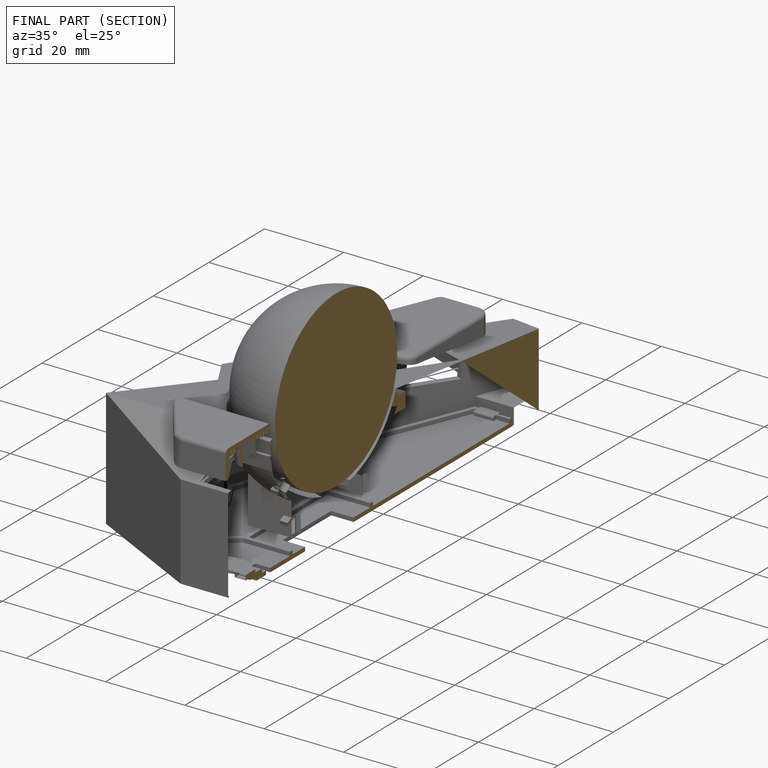
[diagram: finished part — half-section view (interior)]
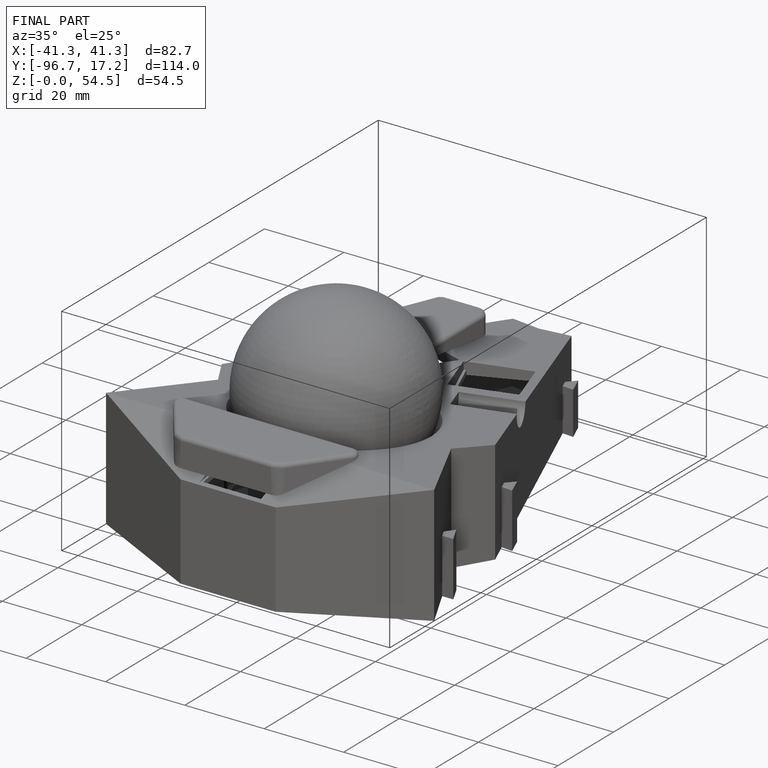
[diagram: finished part — iso view with bounding-box wireframe]
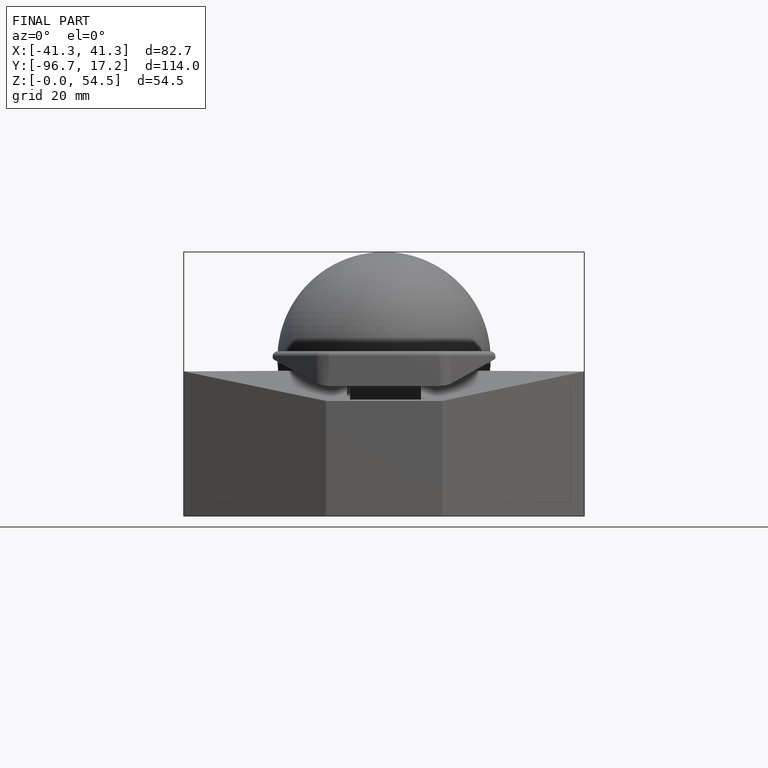
[diagram: finished part — front view with bounding-box wireframe]
